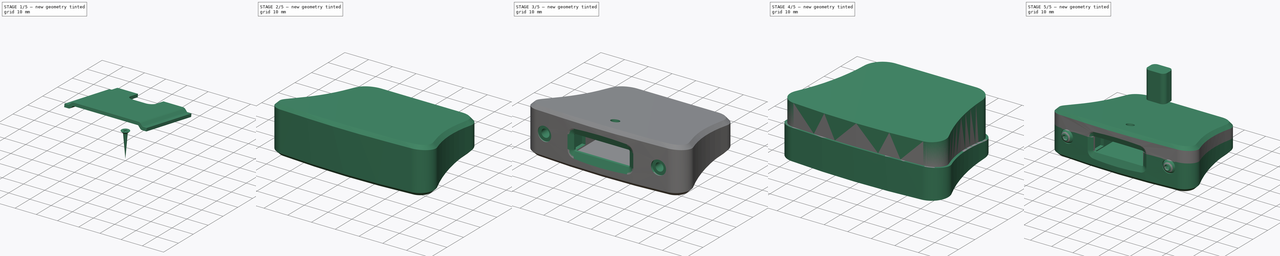
[diagram: build sequence overview — one tinted view per stage of 5, left to right]
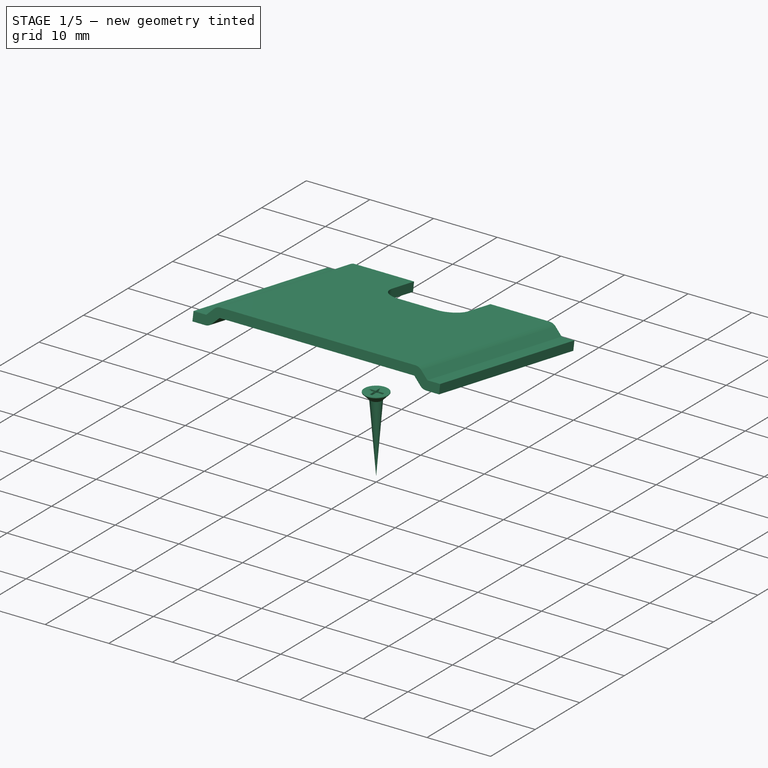
[diagram: stage 1 of 5 — iso view after this stage's code; geometry added in this stage tinted green]
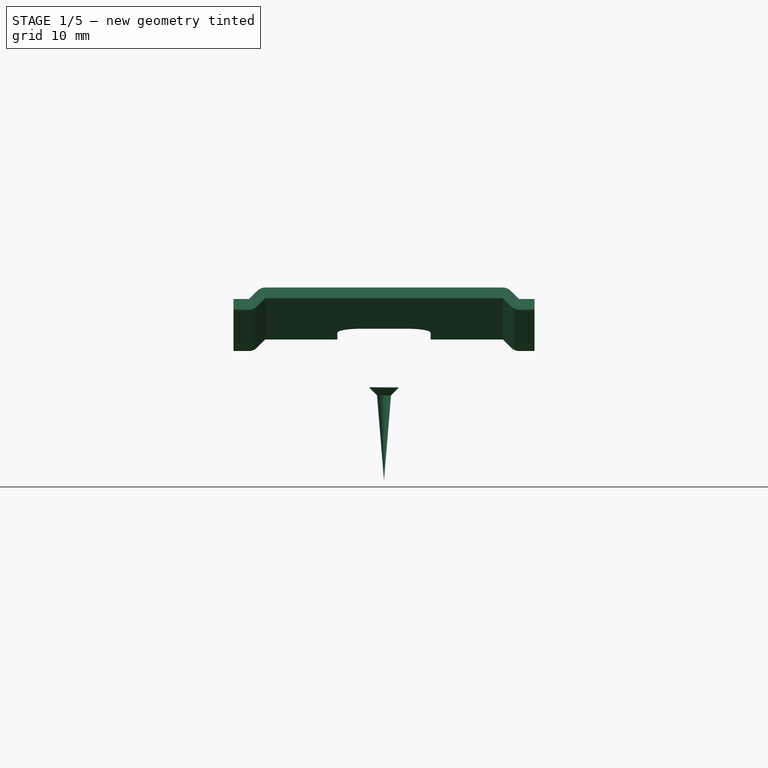
[diagram: stage 1 of 5 — front view after this stage's code; geometry added in this stage tinted green]
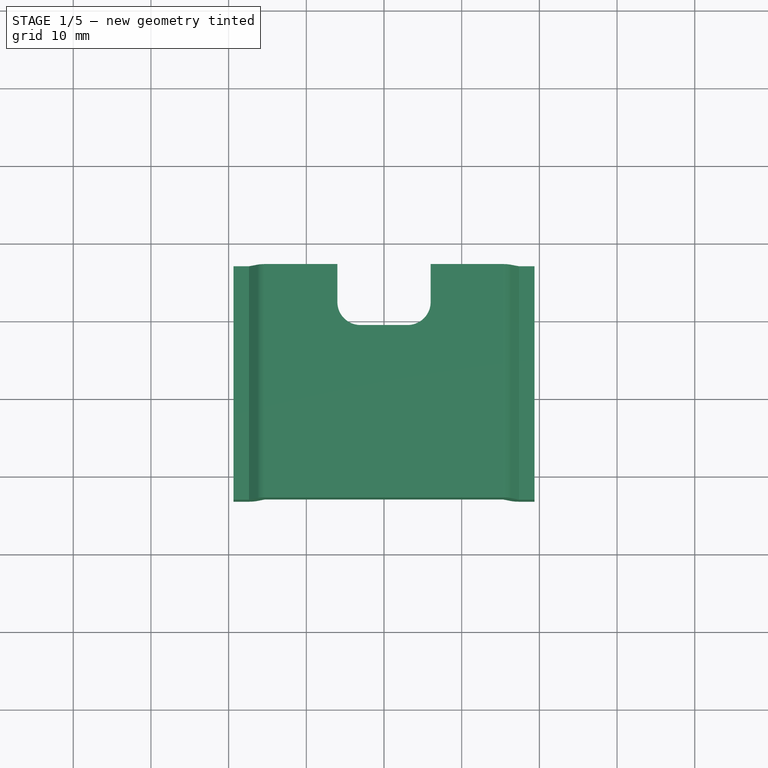
[diagram: stage 1 of 5 — top view after this stage's code; geometry added in this stage tinted green]
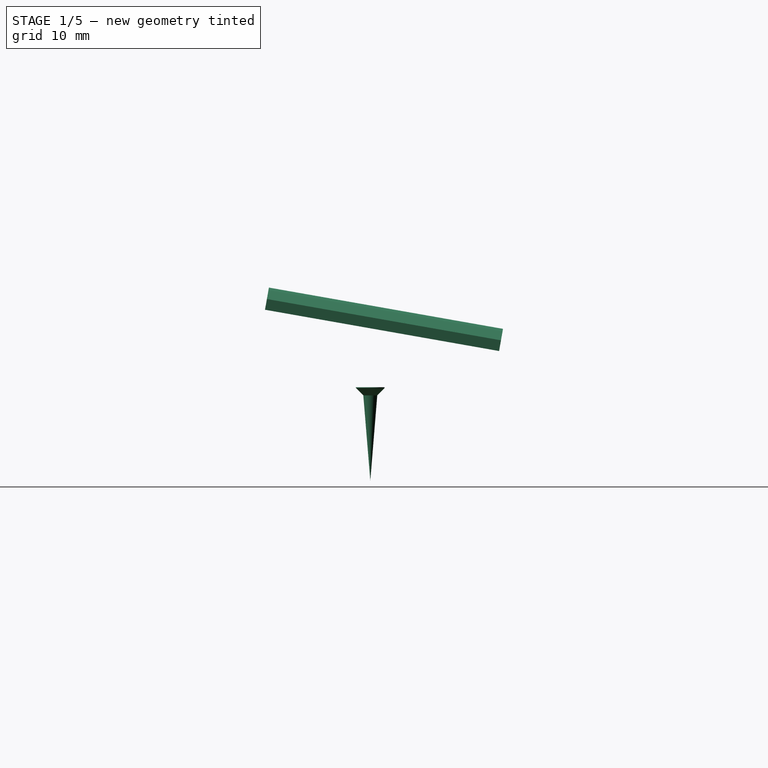
[diagram: stage 1 of 5 — right view after this stage's code; geometry added in this stage tinted green]
FCSTD DOCUMENT  (FreeCAD 0.20R29177 +426 (Git))
Label: NightLight V2
License: All rights reserved
LicenseURL: http://en.wikipedia.org/wiki/All_rights_reserved
objects: Sketcher::SketchObject×73, PartDesign::SubShapeBinder×39, PartDesign::Pocket×20, Part::Feature×19, PartDesign::Pad×14, PartDesign::Body×13, PartDesign::Plane×9, PartDesign::Mirrored×6, Part::FeaturePython×6, PartDesign::Revolution×6, PartDesign::Groove×5, PartDesign::PolarPattern×4, PartDesign::LinearPattern×3, PartDesign::MultiTransform×2, PartDesign::SubtractivePipe×2, PartDesign::AdditiveLoft×2, PartDesign::Fillet×2, Part::MultiCommon×2, App::Part×1, Part::Compound×1, +3 more types
note: 285 computed .brp shape members not serialized (recipe doc carries the construction recipe); baked Part::Feature solids carry a one-line shape summary decoded from their .brp

FEATURE [PartDesign::Body] Body  label="USB Connector"
  Group = -> [Sketch,Pad]
  Origin = -> Origin
  Placement = pos=(0,1e-15,8) rot=(-1,0,0;1.5708rad)
  Tip = -> Pad
FEATURE [Part::Feature] Part__Feature001  label="0.91in oled Module - Board"
  shape: bbox 37.96 x 12.13 x 1.238 mm, 661 faces (baked)
FEATURE [Part::Feature] Part__Feature002  label="0.91in OLED - Folded Flush - Without Glass"
  Placement = pos=(-1.5436,0.800028,1.28143) rot=(0,0,1;0rad)
  shape: bbox 34.09 x 11.52 x 0.6383 mm, 428 faces, 2 solids (baked)
FEATURE [Part::Feature] Part__Feature003  label="0603 Capacitor"
  Placement = pos=(-3.29935,-3.63302,0.00254) rot=(1,0,0;3.14159rad)
  shape: bbox 1.6 x 0.8382 x 0.8382 mm, 24 faces (baked)
FEATURE [Part::Feature] Part__Feature004  label="0603 Capacitor001"
  Placement = pos=(3.36334,-1.59229,0.00254) rot=(1,0,0;3.14159rad)
  shape: bbox 1.6 x 0.8382 x 0.8382 mm, 24 faces (baked)
FEATURE [Part::Feature] Part__Feature005  label="0603 Capacitor002"
  Placement = pos=(-10.9127,2.5742,0.00254) rot=(1,0,0;3.14159rad)
  shape: bbox 1.6 x 0.8382 x 0.8382 mm, 24 faces (baked)
FEATURE [Part::Feature] Part__Feature006  label="0603 Capacitor003"
  Placement = pos=(3.36031,-2.89609,0.00254) rot=(1,0,0;3.14159rad)
  shape: bbox 1.6 x 0.8382 x 0.8382 mm, 24 faces (baked)
FEATURE [Part::Feature] Part__Feature007  label="0603 Capacitor004"
  Placement = pos=(3.40009,-4.19989,0.00254) rot=(1,0,0;3.14159rad)
  shape: bbox 1.6 x 0.8382 x 0.8382 mm, 24 faces (baked)
FEATURE [Part::Feature] Part__Feature008  label="0603 Capacitor005"
  Placement = pos=(3.32725,-0.316834,0.00254) rot=(1,0,0;3.14159rad)
  shape: bbox 1.6 x 0.8382 x 0.8382 mm, 24 faces (baked)
FEATURE [Part::Feature] Part__Feature009  label="0603 Capacitor006"
  Placement = pos=(3.46406,4.7926,0.00254) rot=(1,0,0;3.14159rad)
  shape: bbox 1.6 x 0.8382 x 0.8382 mm, 24 faces (baked)
FEATURE [Part::Feature] Part__Feature010  label="0603 Capacitor007"
  Placement = pos=(3.43442,3.49889,0.00254) rot=(1,0,0;3.14159rad)
  shape: bbox 1.6 x 0.8382 x 0.8382 mm, 24 faces (baked)
FEATURE [Part::Feature] Part__Feature011  label="0603 Capacitor008"
  Placement = pos=(3.51513,2.10169,0.00254) rot=(1,0,0;3.14159rad)
  shape: bbox 1.6 x 0.8382 x 0.8382 mm, 24 faces (baked)
FEATURE [Part::Feature] Part__Feature012  label="0603 Resistor"
  Placement = pos=(-3.22645,0.761404,0.00254) rot=(1,0,0;3.14159rad)
  shape: bbox 1.617 x 0.8669 x 0.4669 mm, 38 faces (baked)
FEATURE [Part::Feature] Part__Feature013  label="0603 Resistor001"
  Placement = pos=(-3.1983,-0.894545,0.00254) rot=(1,0,0;3.14159rad)
  shape: bbox 1.617 x 0.8669 x 0.4669 mm, 38 faces (baked)
FEATURE [Part::Feature] Part__Feature014  label="0603 Resistor002"
  Placement = pos=(-3.2495,2.5465,0.00254) rot=(1,0,0;3.14159rad)
  shape: bbox 1.617 x 0.8669 x 0.4669 mm, 38 faces (baked)
FEATURE [Part::Feature] Part__Feature015  label="0603 Resistor003"
  Placement = pos=(3.43781,0.8856,0.00254) rot=(1,0,0;3.14159rad)
  shape: bbox 1.617 x 0.8669 x 0.4669 mm, 38 faces (baked)
FEATURE [Part::Feature] Part__Feature016  label="0603 Resistor004"
  Placement = pos=(-9.19255,-3.94572,0.00254) rot=(0,1,0;3.14159rad)
  shape: bbox 1.617 x 0.8669 x 0.4669 mm, 38 faces (baked)
FEATURE [Part::Feature] Part__Feature017  label="SOT23-3"
  Placement = pos=(-10.2514,-0.760044,0.105) rot=(1,0,0;3.14159rad)
  shape: bbox 2.844 x 3.009 x 1.193 mm, 52 faces (baked)
FEATURE [Part::Feature] Part__Feature018  label="Diode (SOD-323)"
  Placement = pos=(-2.51121,-2.67602,-0.5715) rot=(1,0,0;3.14159rad)
  shape: bbox 2.845 x 1.499 x 1.144 mm, 45 faces (baked)
FEATURE [App::Part] __91in_OLED_Module___Without_Glass  label="0.91in OLED Module"
  Group = -> [Part__Feature001,Part__Feature002,Part__Feature003,Part__Feature004,Part__Feature005,Part__Feature006,Part__Feature007,Part__Feature008,Part__Feature009,Part__Feature010,Part__Feature011,Part__Feature012,Part__Feature013,Part__Feature014,Part__Feature015,Part__Feature016,Part__Feature017,Part__Feature018]
  Origin = -> Origin001
  Placement = pos=(1.54,-22,9.2) rot=(1,0,0;1.5708rad)
FEATURE [Sketcher::SketchObject] Sketch001  label="p board"
  FullyConstrained = false
  MapMode = 5
  Support = -> [XY_Plane002]
  sketch-geometry (12):
    g0: LineSegment StartX=-15.3 StartY=15.3 StartZ=0 EndX=15.3 EndY=15.3 EndZ=0
    g1: LineSegment StartX=15.3 StartY=15.3 StartZ=0 EndX=15.3 EndY=-15.3 EndZ=0
    g2: LineSegment StartX=15.3 StartY=-15.3 StartZ=0 EndX=-15.3 EndY=-15.3 EndZ=0
    g3: LineSegment StartX=-15.3 StartY=-15.3 StartZ=0 EndX=-15.3 EndY=15.3 EndZ=0
    g4: LineSegment StartX=-7.9 StartY=7.9 StartZ=0 EndX=7.9 EndY=7.9 EndZ=0
    g5: LineSegment StartX=7.9 StartY=7.9 StartZ=0 EndX=7.9 EndY=-7.9 EndZ=0
    g6: LineSegment StartX=7.9 StartY=-7.9 StartZ=0 EndX=-7.9 EndY=-7.9 EndZ=0
    g7: LineSegment StartX=-7.9 StartY=-7.9 StartZ=0 EndX=-7.9 EndY=7.9 EndZ=0
    g8: Circle CenterX=-7.9 CenterY=7.9 CenterZ=0 NormalX=0 NormalY=0 NormalZ=1 AngleXU=0 Radius=1.6
    g9: Circle CenterX=7.9 CenterY=7.9 CenterZ=0 NormalX=0 NormalY=0 NormalZ=1 AngleXU=0 Radius=1.6
    g10: Circle CenterX=7.9 CenterY=-7.9 CenterZ=0 NormalX=0 NormalY=0 NormalZ=1 AngleXU=0 Radius=1.6
    g11: Circle CenterX=-7.9 CenterY=-7.9 CenterZ=0 NormalX=0 NormalY=0 NormalZ=1 AngleXU=0 Radius=1.6
  constraints (28):
    c: Coincident(g0,g1)
    c: Coincident(g1,g2)
    c: Coincident(g2,g3)
    c: Coincident(g3,g0)
    c: Horizontal(g2)
    c: Vertical(g3)
    c: Symmetric(g1,g0,g-1)
    c: Symmetric(g0,g0,g-2)
    c: Coincident(g4,g5)
    c: Coincident(g5,g6)
    c: Coincident(g6,g7)
    c: Coincident(g7,g4)
    c: Horizontal(g6)
    c: Vertical(g7)
    c: Symmetric(g5,g4,g-1)
    c: Symmetric(g4,g4,g-2)
    c: Coincident(g8,g4)
    c: Coincident(g9,g4)
    c: Coincident(g10,g5)
    c: Coincident(g11,g6)
    c: Equal(g10,g11)
    c: Equal(g11,g8)
    c: Equal(g8,g9)
    c: Radius(g9) = 1.6
    c: DistanceX(g4,g4) = 15.8
    c: Equal(g5,g4)
    c: Equal(g1,g0)
    c: DistanceX(g0,g0) = 30.6
FEATURE [PartDesign::Pad] Pad001  label="P Board"
  AllowMultiFace = false
  Direction = (1,1,1)
  Length = 1.6
  Length2 = 100
  Profile = -> Sketch001
  Type = 0
FEATURE [PartDesign::Body] Body001  label="PCB"
  Group = -> [Sketch001,Pad001]
  Origin = -> Origin002
  Tip = -> Pad001
FEATURE [Sketcher::SketchObject] Sketch004  label="e common pad"
  AttachmentOffset = pos=(0,0,0.5) rot=(0,0,1;0rad)
  FullyConstrained = false
  MapMode = 5
  Placement = pos=(0,0,0.5) rot=(0,0,1;0rad)
  Support = -> [XY_Plane003]
  sketch-geometry (12):
    g0: LineSegment StartX=-14 StartY=14 StartZ=0 EndX=14 EndY=14 EndZ=0
    g1: LineSegment StartX=14 StartY=14 StartZ=0 EndX=14 EndY=-14 EndZ=0
    g2: LineSegment StartX=14 StartY=-14 StartZ=0 EndX=-14 EndY=-14 EndZ=0
    g3: LineSegment StartX=-14 StartY=-14 StartZ=0 EndX=-14 EndY=14 EndZ=0
    g4: LineSegment StartX=-7.9 StartY=7.9 StartZ=0 EndX=7.9 EndY=7.9 EndZ=0
    g5: LineSegment StartX=7.9 StartY=7.9 StartZ=0 EndX=7.9 EndY=-7.9 EndZ=0
    g6: LineSegment StartX=7.9 StartY=-7.9 StartZ=0 EndX=-7.9 EndY=-7.9 EndZ=0
    g7: LineSegment StartX=-7.9 StartY=-7.9 StartZ=0 EndX=-7.9 EndY=7.9 EndZ=0
    g8: Circle CenterX=-7.9 CenterY=7.9 CenterZ=0 NormalX=0 NormalY=0 NormalZ=1 AngleXU=0 Radius=2
    g9: Circle CenterX=7.9 CenterY=7.9 CenterZ=0 NormalX=0 NormalY=0 NormalZ=1 AngleXU=0 Radius=2
    g10: Circle CenterX=7.9 CenterY=-7.9 CenterZ=0 NormalX=0 NormalY=0 NormalZ=1 AngleXU=0 Radius=2
    g11: Circle CenterX=-7.9 CenterY=-7.9 CenterZ=0 NormalX=0 NormalY=0 NormalZ=1 AngleXU=0 Radius=2
  constraints (28):
    c: Coincident(g0,g1)
    c: Coincident(g1,g2)
    c: Coincident(g2,g3)
    c: Coincident(g3,g0)
    c: Horizontal(g2)
    c: Vertical(g3)
    c: Symmetric(g1,g0,g-1)
    c: Symmetric(g0,g0,g-2)
    c: Coincident(g4,g5)
    c: Coincident(g5,g6)
    c: Coincident(g6,g7)
    c: Coincident(g7,g4)
    c: Horizontal(g6)
    c: Vertical(g7)
    c: Symmetric(g5,g4,g-1)
    c: Symmetric(g4,g4,g-2)
    c: Coincident(g8,g4)
    c: Coincident(g9,g4)
    c: Coincident(g10,g5)
    c: Coincident(g11,g6)
    c: Equal(g10,g11)
    c: Equal(g11,g8)
    c: Equal(g8,g9)
    c: Radius(g9) = 2
    c: DistanceX(g4,g4) = 15.8
    c: Equal(g5,g4)
    c: Equal(g1,g0)
    c: DistanceX(g0,g0) = 28
FEATURE [Sketcher::SketchObject] Sketch005  label="e soldering pad"
  AttachmentOffset = pos=(0,0,-0.2) rot=(0,0,1;0rad)
  FullyConstrained = false
  MapMode = 5
  Placement = pos=(0,0,-0.2) rot=(0,0,1;0rad)
  Support = -> [XY_Plane003]
  sketch-geometry (4):
    g0: LineSegment StartX=-14.6 StartY=-2.9 StartZ=0 EndX=-11.1 EndY=-2.9 EndZ=0
    g1: LineSegment StartX=-11.1 StartY=-2.9 StartZ=0 EndX=-11.1 EndY=-4.7 EndZ=0
    g2: LineSegment StartX=-11.1 StartY=-4.7 StartZ=0 EndX=-14.6 EndY=-4.7 EndZ=0
    g3: LineSegment StartX=-14.6 StartY=-4.7 StartZ=0 EndX=-14.6 EndY=-2.9 EndZ=0
  constraints (12):
    c: Coincident(g0,g1)
    c: Coincident(g1,g2)
    c: Coincident(g2,g3)
    c: Coincident(g3,g0)
    c: Horizontal(g0)
    c: Horizontal(g2)
    c: Vertical(g1)
    c: Vertical(g3)
    c: DistanceX(g0,g0) = 3.5
    c: DistanceY(g3,g3) = 1.8
    c: DistanceX(g0,g-1) = 14.6
    c: DistanceY(g2,g-1) = 4.7
FEATURE [PartDesign::LinearPattern] LinearPattern003
  Direction = -> Y_Axis003
  Length = 7.6
  Occurrences = 4
FEATURE [PartDesign::Pad] Pad004  label="E Common pad"
  AllowMultiFace = false
  Direction = (1,1,1)
  Length = 0.2
  Length2 = 100
  Profile = -> Sketch004
  Type = 0
FEATURE [PartDesign::Pad] Pad005  label="E First soldering pad"
  AllowMultiFace = false
  BaseFeature = -> Pad004
  Direction = (1,1,1)
  Length = 0.8
  Length2 = 100
  Profile = -> Sketch005
  Type = 0
FEATURE [PartDesign::Mirrored] Mirrored001
  MirrorPlane = -> YZ_Plane003
FEATURE [PartDesign::MultiTransform] MultiTransform003  label="E Other soldering pads"
  BaseFeature = -> Pad005
  Originals = -> [Pad005]
  Transformations = -> [LinearPattern003,Mirrored001]
FEATURE [PartDesign::Body] Body002  label="Electrical"
  Group = -> [Sketch004,Pad004,Sketch005,Pad005,MultiTransform003,LinearPattern003,Mirrored001]
  Origin = -> Origin003
  Tip = -> MultiTransform003
FEATURE [PartDesign::LinearPattern] LinearPattern007
  Direction = -> Y_Axis004
  Length = 23.4
  Occurrences = 4
FEATURE [PartDesign::LinearPattern] LinearPattern008
  Direction = -> X_Axis004
  Length = 23.4
  Occurrences = 4
FEATURE [Sketcher::SketchObject] Sketch008  label="l common plate"
  AttachmentOffset = pos=(0,0,0.5) rot=(0,0,1;0rad)
  FullyConstrained = false
  MapMode = 5
  Placement = pos=(0,0,0.5) rot=(0,0,1;0rad)
  Support = -> [XY_Plane004]
  sketch-geometry (12):
    g0: LineSegment StartX=-12.5 StartY=12.5 StartZ=0 EndX=12.5 EndY=12.5 EndZ=0
    g1: LineSegment StartX=12.5 StartY=12.5 StartZ=0 EndX=12.5 EndY=-12.5 EndZ=0
    g2: LineSegment StartX=12.5 StartY=-12.5 StartZ=0 EndX=-12.5 EndY=-12.5 EndZ=0
    g3: LineSegment StartX=-12.5 StartY=-12.5 StartZ=0 EndX=-12.5 EndY=12.5 EndZ=0
    g4: LineSegment StartX=-7.9 StartY=7.9 StartZ=0 EndX=7.9 EndY=7.9 EndZ=0
    g5: LineSegment StartX=7.9 StartY=7.9 StartZ=0 EndX=7.9 EndY=-7.9 EndZ=0
    g6: LineSegment StartX=7.9 StartY=-7.9 StartZ=0 EndX=-7.9 EndY=-7.9 EndZ=0
    g7: LineSegment StartX=-7.9 StartY=-7.9 StartZ=0 EndX=-7.9 EndY=7.9 EndZ=0
    g8: Circle CenterX=-7.9 CenterY=7.9 CenterZ=0 NormalX=0 NormalY=0 NormalZ=1 AngleXU=0 Radius=2
    g9: Circle CenterX=7.9 CenterY=7.9 CenterZ=0 NormalX=0 NormalY=0 NormalZ=1 AngleXU=0 Radius=2
    g10: Circle CenterX=7.9 CenterY=-7.9 CenterZ=0 NormalX=0 NormalY=0 NormalZ=1 AngleXU=0 Radius=2
    g11: Circle CenterX=-7.9 CenterY=-7.9 CenterZ=0 NormalX=0 NormalY=0 NormalZ=1 AngleXU=0 Radius=2
  constraints (28):
    c: Coincident(g0,g1)
    c: Coincident(g1,g2)
    c: Coincident(g2,g3)
    c: Coincident(g3,g0)
    c: Horizontal(g2)
    c: Vertical(g3)
    c: Symmetric(g1,g0,g-1)
    c: Symmetric(g0,g0,g-2)
    c: Coincident(g4,g5)
    c: Coincident(g5,g6)
    c: Coincident(g6,g7)
    c: Coincident(g7,g4)
    c: Horizontal(g6)
    c: Vertical(g7)
    c: Symmetric(g5,g4,g-1)
    c: Symmetric(g4,g4,g-2)
    c: Coincident(g8,g4)
    c: Coincident(g9,g4)
    c: Coincident(g10,g5)
    c: Coincident(g11,g6)
    c: Equal(g10,g11)
    c: Equal(g11,g8)
    c: Equal(g8,g9)
    c: Radius(g9) = 2
    c: DistanceX(g4,g4) = 15.8
    c: Equal(g5,g4)
    c: Equal(g1,g0)
    c: DistanceX(g0,g0) = 25
FEATURE [PartDesign::Pad] Pad007  label="L Common plate"
  AllowMultiFace = false
  Direction = (1,1,1)
  Length = 0.5
  Length2 = 100
  Profile = -> Sketch008
  Type = 0
FEATURE [Sketcher::SketchObject] Sketch009  label="l first LED"
  AttachmentOffset = pos=(0,0,3.2) rot=(0,0,1;0rad)
  FullyConstrained = false
  MapMode = 5
  Placement = pos=(0,0,3.2) rot=(0,0,1;0rad)
  Support = -> [XY_Plane002]
  sketch-geometry (6):
    g0: LineSegment StartX=-14.2 StartY=-9.2 StartZ=0 EndX=-9.2 EndY=-9.2 EndZ=0
    g1: LineSegment StartX=-9.2 StartY=-9.2 StartZ=0 EndX=-9.2 EndY=-14.2 EndZ=0
    g2: LineSegment StartX=-9.2 StartY=-14.2 StartZ=0 EndX=-14.2 EndY=-14.2 EndZ=0
    g3: LineSegment StartX=-14.2 StartY=-14.2 StartZ=0 EndX=-14.2 EndY=-9.2 EndZ=0
    g4: LineSegment StartX=-9.2 StartY=-14.2 StartZ=0 EndX=0 EndY=-14.2 EndZ=0
    g5: LineSegment StartX=-14.2 StartY=-9.2 StartZ=0 EndX=-14.2 EndY=0 EndZ=0
  constraints (18):
    c: Coincident(g0,g1)
    c: Coincident(g1,g2)
    c: Coincident(g2,g3)
    c: Coincident(g3,g0)
    c: Horizontal(g0)
    c: Horizontal(g2)
    c: Vertical(g1)
    c: Vertical(g3)
    c: Equal(g1,g0)
    c: DistanceX(g0,g0) = 5
    c: DistanceX(g2,g-1) = 14.2
    c: Coincident(g4,g1)
    c: Horizontal(g4)
    c: Coincident(g5,g0)
    c: Vertical(g5)
    c: Equal(g5,g4)
    c: PointOnObject(g5,g-1)
    c: PointOnObject(g4,g-2)
FEATURE [PartDesign::Pad] Pad008  label="L First LED"
  AllowMultiFace = false
  BaseFeature = -> Pad007
  Direction = (1,1,1)
  Length = 2.6
  Length2 = 100
  Profile = -> Sketch009
  Reversed = true
  Type = 0
FEATURE [PartDesign::MultiTransform] MultiTransform004  label="L Other leds"
  BaseFeature = -> Pad008
  Originals = -> [Pad008]
  Transformations = -> [LinearPattern008,LinearPattern007]
FEATURE [PartDesign::Body] Body003  label="LEDs"
  Group = -> [Sketch008,Pad007,Sketch009,Pad008,MultiTransform004,LinearPattern008,LinearPattern007]
  Origin = -> Origin004
  Tip = -> MultiTransform004
FEATURE [Part::Compound] Compound  label="WS2812B 4x4"
  Links = -> [Body001,Body002,Body003]
  Placement = pos=(0,2.01519,10.1736) rot=(-1,0,0;0.174533rad)
FEATURE [Part::FeaturePython] Nut  label="M3-Nut"  # Fasteners workbench fastener (typed FeaturePython)
  Placement = pos=(-24,-20,10) rot=(0.57735,0.57735,0.57735;4.18879rad)
  diameter = 4
  invert = false
  leftHanded = false
  matchOuter = false
  offset = 0
  thread = false
  type = 22
FEATURE [Part::FeaturePython] Nut001  label="M3-Nut001"  # Fasteners workbench fastener (typed FeaturePython)
  Placement = pos=(24,-20,10) rot=(0.57735,0.57735,0.57735;4.18879rad)
  diameter = 4
  invert = false
  leftHanded = false
  matchOuter = false
  offset = 0
  thread = false
  type = 22
FEATURE [Sketcher::SketchObject] Sketch026
  FullyConstrained = false
  MapMode = 5
  Placement = pos=(0,0,0) rot=(1,0,0;1.5708rad)
  Support = -> [XZ_Plane010]
  sketch-geometry (5):
    g0: LineSegment StartX=0 StartY=0 StartZ=0 EndX=0 EndY=-12 EndZ=0
    g1: LineSegment StartX=0 StartY=-12 StartZ=0 EndX=0.9 EndY=-1.05 EndZ=0
    g2: LineSegment StartX=0.9 StartY=-1.05 StartZ=0 EndX=1.85 EndY=-0.1 EndZ=0
    g3: LineSegment StartX=1.85 StartY=0 StartZ=0 EndX=0 EndY=0 EndZ=0
    g4: LineSegment StartX=1.85 StartY=-0.1 StartZ=0 EndX=1.85 EndY=0 EndZ=0
  constraints (14):
    c: Coincident(g-1,g0)
    c: Vertical(g0)
    c: Coincident(g0,g1)
    c: Coincident(g1,g2)
    c: Coincident(g3,g0)
    c: DistanceY(g0,g0) = 12
    c: Angle(g3,g2) = 0.785398
    c: DistanceX(g0,g1) = 0.9
    c: Horizontal(g3)
    c: Coincident(g4,g2)
    c: Vertical(g4)
    c: Coincident(g3,g4)
    c: DistanceX(g3) = 1.85
    c: DistanceY(g4,g4) = 0.1
FEATURE [PartDesign::Revolution] Revolution003
  AllowMultiFace = false
  Angle = 360
  Axis = (-3e-16,3e-16,1)
  Base = (0,0,0)
  Placement = pos=(0,0,0) rot=(1,0,0;1.5708rad)
  Profile = -> Sketch026
  ReferenceAxis = -> Z_Axis010
  Reversed = true
FEATURE [Sketcher::SketchObject] Sketch027
  FullyConstrained = false
  MapMode = 5
  Placement = pos=(0,0,0) rot=(1,0,0;1.5708rad)
  Support = -> [XZ_Plane010]
  sketch-geometry (3):
    g0: LineSegment StartX=-1.15 StartY=0 StartZ=0 EndX=0 EndY=-1.15 EndZ=0
    g1: LineSegment StartX=0 StartY=-1.15 StartZ=0 EndX=1.15 EndY=0 EndZ=0
    g2: LineSegment StartX=1.15 StartY=0 StartZ=0 EndX=-1.15 EndY=0 EndZ=0
  constraints (9):
    c: PointOnObject(g0,g-1)
    c: Coincident(g0,g1)
    c: PointOnObject(g1,g-1)
    c: Coincident(g1,g2)
    c: Coincident(g2,g0)
    c: PointOnObject(g0,g-2)
    c: Equal(g1,g0)
    c: Perpendicular(g0,g1)
    c: DistanceX(g2,g2) = 2.3
FEATURE [PartDesign::Pocket] Pocket006
  AllowMultiFace = false
  BaseFeature = -> Revolution003
  Direction = (1,1,1)
  Length = 0.4
  Length2 = 100
  Midplane = true
  Placement = pos=(0,0,0) rot=(1,0,0;1.5708rad)
  Profile = -> Sketch027
  Type = 0
FEATURE [PartDesign::PolarPattern] PolarPattern003
  Angle = 90
  Axis = -> Z_Axis010
  BaseFeature = -> Pocket006
  Occurrences = 2
  Originals = -> [Pocket006]
  Placement = pos=(0,0,0) rot=(1,0,0;1.5708rad)
FEATURE [Sketcher::SketchObject] Sketch050  label="hs led grid cavity"
  ExternalGeometry = -> [Binder021]
  FullyConstrained = true
  MapMode = 5
  Placement = pos=(0,0,0) rot=(0.57735,0.57735,0.57735;2.0944rad)
  Support = -> [YZ_Plane006]
  sketch-geometry (4):
    g0: LineSegment StartX=-15.1889 StartY=6 StartZ=0 EndX=17.3048 EndY=6 EndZ=0
    g1: LineSegment StartX=17.3048 StartY=6 StartZ=0 EndX=18.188 EndY=11.0089 EndZ=0
    g2: LineSegment StartX=18.188 StartY=11.0089 StartZ=0 EndX=-13.3258 EndY=16.5657 EndZ=0
    g3: LineSegment StartX=-13.3258 StartY=16.5657 StartZ=0 EndX=-15.1889 EndY=6 EndZ=0
  constraints (12):
    c: Coincident(g0,g1)
    c: Coincident(g1,g2)
    c: Coincident(g2,g3)
    c: Coincident(g3,g0)
    c: Horizontal(g0)
    c: Parallel(g2,g-3)
    c: Distance(g2,g-3) = 1
    c: Perpendicular(g2,g3)
    c: Perpendicular(g2,g1)
    c: Distance(g-1,g1) = 16
    c: Distance(g-1,g3) = 16
    c: DistanceY(g0) = 6
FEATURE [Sketcher::SketchObject] Sketch051  label="hs cavity near OLED"
  AttachmentOffset = pos=(0,0,3) rot=(0,0,1;0rad)
  FullyConstrained = true
  MapMode = 5
  Placement = pos=(0,0,3) rot=(0,0,1;0rad)
  Support = -> [XY_Plane006]
  sketch-geometry (10):
    g0: LineSegment StartX=-21 StartY=-19 StartZ=0 EndX=-19 EndY=-19 EndZ=0
    g1: LineSegment StartX=21 StartY=-19 StartZ=0 EndX=21 EndY=-20.5 EndZ=0
    g2: LineSegment StartX=21 StartY=-20.5 StartZ=0 EndX=-21 EndY=-20.5 EndZ=0
    g3: LineSegment StartX=-21 StartY=-20.5 StartZ=0 EndX=-21 EndY=-19 EndZ=0
    g4: LineSegment StartX=-17.5 StartY=-12 StartZ=0 EndX=17.5 EndY=-12 EndZ=0
    g5: LineSegment StartX=17.5 StartY=-12 StartZ=0 EndX=17.5 EndY=-17.5 EndZ=0
    g6: LineSegment StartX=-17.5 StartY=-17.5 StartZ=0 EndX=-17.5 EndY=-12 EndZ=0
    g7: LineSegment StartX=19 StartY=-19 StartZ=0 EndX=21 EndY=-19 EndZ=0
    g8: ArcOfCircle CenterX=19 CenterY=-17.5 CenterZ=0 NormalX=0 NormalY=0 NormalZ=1 AngleXU=0 Radius=1.5 StartAngle=3.14159 EndAngle=4.71239
    g9: ArcOfCircle CenterX=-19 CenterY=-17.5 CenterZ=0 NormalX=0 NormalY=0 NormalZ=1 AngleXU=0 Radius=1.5 StartAngle=4.71239 EndAngle=6.28319
  constraints (26):
    c: Coincident(g7,g1)
    c: Coincident(g1,g2)
    c: Coincident(g2,g3)
    c: Coincident(g3,g0)
    c: Horizontal(g0)
    c: Vertical(g1)
    c: Vertical(g3)
    c: DistanceY(g1,g-1) = 20.5
    c: Coincident(g4,g5)
    c: Coincident(g6,g4)
    c: Vertical(g5)
    c: Vertical(g6)
    c: Symmetric(g4,g4,g-2)
    c: Tangent(g7,g8) = -1.5708
    c: Tangent(g5,g8) = -1.5708
    c: Tangent(g0,g9) = -1.5708
    c: Tangent(g6,g9) = -1.5708
    c: DistanceX(g2,g2) = 42
    c: DistanceX(g0,g0) = 2
    c: Symmetric(g2,g1,g-2)
    c: Horizontal(g7)
    c: DistanceY(g1,g1) = 1.5
    c: DistanceX(g4,g4) = 35
    c: DistanceY(g4,g-1) = 12
    c: Equal(g9,g8)
    c: PointOnObject(g0,g7)
FEATURE [PartDesign::SubShapeBinder] Binder022  label="sk ref led grid holder"
  BindCopyOnChange = 0
  BindMode = 0
  ClaimChildren = false
  Context = -> Body004 [Binder022.]
  Fuse = false
  MakeFace = true
  OffsetFill = false
  OffsetIntersection = false
  OffsetJoinType = 0
  OffsetOpenResult = false
  PartialLoad = false
  Relative = true
  Support = -> [Compound[Edge4,Edge3,Edge2,Edge1]]
  _Version = 2
FEATURE [PartDesign::Plane] DatumPlane004  label="sk ref led grid"
  Length = 60.7632
  MapMode = 13
  Placement = pos=(5.1,17.1754,8.04206) rot=(1,0,0;1.39626rad)
  ResizeMode = 0
  Support = -> [Binder022]
  Width = 68.686
FEATURE [Sketcher::SketchObject] Sketch054  label="sk led grid holder"
  ExternalGeometry = -> [Binder022]
  FullyConstrained = true
  MapMode = 5
  Placement = pos=(5.1,17.1754,8.04206) rot=(1,0,0;1.39626rad)
  Support = -> [DatumPlane004]
  sketch-geometry (17):
    g0: LineSegment StartX=10.2 StartY=-0.533333 StartZ=0 EndX=-20.4 EndY=-0.533333 EndZ=0
    g1: LineSegment StartX=-20.4 StartY=-1.93333 StartZ=0 EndX=10.2 EndY=-1.93333 EndZ=0
    g2: LineSegment StartX=-5.1 StartY=-1.93333 StartZ=0 EndX=-5.1 EndY=-0.391912 EndZ=0
    g3: LineSegment StartX=10.2 StartY=-1.93333 StartZ=0 EndX=11.2899 EndY=-3.02328 EndZ=0
    g4: LineSegment StartX=12.2799 StartY=-3.43333 StartZ=0 EndX=14.2799 EndY=-3.43333 EndZ=0
    g5: LineSegment StartX=14.2799 StartY=-3.43333 StartZ=0 EndX=14.2799 EndY=-2.03333 EndZ=0
    g6: LineSegment StartX=14.2799 StartY=-2.03333 StartZ=0 EndX=12.2799 EndY=-2.03333 EndZ=0
    g7: LineSegment StartX=12.2799 StartY=-2.03333 StartZ=0 EndX=11.1899 EndY=-0.943384 EndZ=0
    g8: ArcOfCircle CenterX=12.2799 CenterY=-2.03333 CenterZ=0 NormalX=0 NormalY=0 NormalZ=1 AngleXU=0 Radius=1.4 StartAngle=3.92699 EndAngle=4.71239
    g9: LineSegment StartX=-20.4 StartY=-1.93333 StartZ=0 EndX=-21.4899 EndY=-3.02328 EndZ=0
    g10: LineSegment StartX=-22.4799 StartY=-3.43333 StartZ=0 EndX=-24.4799 EndY=-3.43333 EndZ=0
    g11: LineSegment StartX=-24.4799 StartY=-3.43333 StartZ=0 EndX=-24.4799 EndY=-2.03333 EndZ=0
    g12: LineSegment StartX=-24.4799 StartY=-2.03333 StartZ=0 EndX=-22.4799 EndY=-2.03333 EndZ=0
    g13: LineSegment StartX=-22.4799 StartY=-2.03333 StartZ=0 EndX=-21.3899 EndY=-0.943384 EndZ=0
    g14: ArcOfCircle CenterX=-22.4799 CenterY=-2.03333 CenterZ=0 NormalX=0 NormalY=0 NormalZ=1 AngleXU=0 Radius=1.4 StartAngle=4.71239 EndAngle=5.49779
    g15: ArcOfCircle CenterX=10.2 CenterY=-1.93333 CenterZ=0 NormalX=0 NormalY=0 NormalZ=1 AngleXU=0 Radius=1.4 StartAngle=0.785398 EndAngle=1.5708
    g16: ArcOfCircle CenterX=-20.4 CenterY=-1.93333 CenterZ=0 NormalX=0 NormalY=0 NormalZ=1 AngleXU=0 Radius=1.4 StartAngle=1.5708 EndAngle=2.35619
  constraints (39):
    c: PointOnObject(g-3,g0)
    c: PointOnObject(g2,g1)
    c: Symmetric(g-4,g-3,g2)
    c: Coincident(g3,g1)
    c: Horizontal(g4)
    c: Coincident(g4,g5)
    c: Vertical(g5)
    c: Coincident(g5,g6)
    c: Horizontal(g6)
    c: Coincident(g6,g7)
    c: Angle(g1,g3) = 2.35619
    c: Parallel(g3,g7)
    c: Tangent(g3,g8) = -1.5708
    c: Tangent(g4,g8) = -1.5708
    c: Coincident(g6,g8)
    c: DistanceX(g6,g6) = 2
    c: DistanceY(g4,g1) = 1.5
    c: Coincident(g10,g11)
    c: Coincident(g11,g12)
    c: Coincident(g12,g13)
    c: Tangent(g9,g14) = 1.5708
    c: Tangent(g10,g14) = 1.5708
    c: Coincident(g12,g14)
    c: Coincident(g1,g9)
    c: Symmetric(g1,g1,g2)
    c: Symmetric(g12,g6,g2)
    c: Symmetric(g10,g4,g2)
    c: Equal(g14,g8)
    c: Horizontal(g12)
    c: Vertical(g11)
    c: Equal(g7,g2)
    c: Tangent(g0,g15) = -1.5708
    c: Tangent(g7,g15) = -1.5708
    c: Coincident(g1,g15)
    c: Tangent(g0,g16) = -1.5708
    c: Tangent(g13,g16) = 1.5708
    c: Coincident(g1,g16)
    c: DistanceY(g5,g5) = 1.4
    c: Coincident(g0,g-4)
FEATURE [PartDesign::SubShapeBinder] Binder023  label="lh ref led grid holder"
  BindCopyOnChange = 0
  BindMode = 0
  ClaimChildren = false
  Context = -> Body010 [Binder023.]
  Fuse = false
  MakeFace = true
  OffsetFill = false
  OffsetIntersection = false
  OffsetJoinType = 0
  OffsetOpenResult = false
  PartialLoad = false
  Relative = true
  Support = -> [Body004[Sketch054.]]
  _Version = 2
FEATURE [PartDesign::Plane] DatumPlane005  label="lh pln led grid"
  Length = 60.7632
  MapMode = 13
  Placement = pos=(-5.1,17.0017,7.05725) rot=(1,0,0;1.39626rad)
  ResizeMode = 0
  Support = -> [Binder023]
  Width = 68.686
FEATURE [Sketcher::SketchObject] Sketch056  label="lh cutout ESP USB"
  ExternalGeometry = -> [Binder023]
  FullyConstrained = true
  MapMode = 5
  Placement = pos=(16.3566,17.0749,7.4724) rot=(0,0.087156,0.996195;3.14159rad)
  sketch-geometry (7):
    g0: LineSegment StartX=19.3566 StartY=8 StartZ=0 EndX=13.3566 EndY=8 EndZ=0
    g1: LineSegment StartX=10.3566 StartY=5 StartZ=0 EndX=10.3566 EndY=1.07e-14 EndZ=0
    g2: LineSegment StartX=10.3566 StartY=1.07e-14 StartZ=0 EndX=22.3566 EndY=1.07e-14 EndZ=0
    g3: LineSegment StartX=22.3566 StartY=1.07e-14 StartZ=0 EndX=22.3566 EndY=5 EndZ=0
    g4: ArcOfCircle CenterX=19.3566 CenterY=5 CenterZ=0 NormalX=0 NormalY=0 NormalZ=1 AngleXU=0 Radius=3 StartAngle=0 EndAngle=1.5708
    g5: ArcOfCircle CenterX=13.3566 CenterY=5 CenterZ=0 NormalX=0 NormalY=0 NormalZ=1 AngleXU=0 Radius=3 StartAngle=1.5708 EndAngle=3.14159
    g6: LineSegment StartX=16.3566 StartY=8 StartZ=0 EndX=16.3566 EndY=0 EndZ=0
  constraints (18):
    c: Coincident(g1,g2)
    c: Coincident(g2,g3)
    c: Horizontal(g0)
    c: Horizontal(g2)
    c: Vertical(g1)
    c: Vertical(g3)
    c: Tangent(g3,g4) = -1.5708
    c: Tangent(g0,g4) = -1.5708
    c: Tangent(g0,g5) = -1.5708
    c: Tangent(g1,g5) = -1.5708
    c: PointOnObject(g6,g0)
    c: PointOnObject(g6,g-1)
    c: Symmetric(g5,g4,g6)
    c: DistanceX(g1,g3) = 12
    c: DistanceY(g2,g0) = 8
    c: Radius(g4) = 3
    c: Symmetric(g-4,g-3,g6)
    c: PointOnObject(g-4,g2)
FEATURE [Sketcher::SketchObject] Sketch058  label="lh base"
  ExternalGeometry = -> [Binder023]
  FullyConstrained = true
  MapMode = 5
  Placement = pos=(-5.1,17.0017,7.05725) rot=(1,0,0;1.39626rad)
  Support = -> [DatumPlane005]
  sketch-geometry (16):
    g0: LineSegment StartX=-14.2799 StartY=-2.43333 StartZ=0 EndX=-12.2799 EndY=-2.43333 EndZ=0
    g1: LineSegment StartX=-11.2899 StartY=-2.02328 StartZ=0 EndX=-10.2 EndY=-0.933333 EndZ=0
    g2: LineSegment StartX=-10.2 StartY=-0.933333 StartZ=0 EndX=20.4 EndY=-0.933333 EndZ=0
    g3: LineSegment StartX=20.4 StartY=-0.933333 StartZ=0 EndX=21.4899 EndY=-2.02328 EndZ=0
    g4: LineSegment StartX=22.4799 StartY=-2.43333 StartZ=0 EndX=24.4799 EndY=-2.43333 EndZ=0
    g5: LineSegment StartX=24.4799 StartY=-2.43333 StartZ=0 EndX=24.4799 EndY=-1.03333 EndZ=0
    g6: LineSegment StartX=24.4799 StartY=-1.03333 StartZ=0 EndX=22.4799 EndY=-1.03333 EndZ=0
    g7: LineSegment StartX=22.4799 StartY=-1.03333 StartZ=0 EndX=21.3899 EndY=0.0566162 EndZ=0
    g8: LineSegment StartX=20.4 StartY=0.466667 StartZ=0 EndX=-10.2 EndY=0.466667 EndZ=0
    g9: LineSegment StartX=-11.1899 StartY=0.0566162 StartZ=0 EndX=-12.2799 EndY=-1.03333 EndZ=0
    g10: LineSegment StartX=-12.2799 StartY=-1.03333 StartZ=0 EndX=-14.2799 EndY=-1.03333 EndZ=0
    g11: ArcOfCircle CenterX=-10.2 CenterY=-0.933333 CenterZ=0 NormalX=0 NormalY=0 NormalZ=1 AngleXU=0 Radius=1.4 StartAngle=1.5708 EndAngle=2.35619
    g12: ArcOfCircle CenterX=-12.2799 CenterY=-1.03333 CenterZ=0 NormalX=0 NormalY=0 NormalZ=1 AngleXU=0 Radius=1.4 StartAngle=4.71239 EndAngle=5.49779
    g13: ArcOfCircle CenterX=22.4799 CenterY=-1.03333 CenterZ=0 NormalX=0 NormalY=0 NormalZ=1 AngleXU=0 Radius=1.4 StartAngle=3.92699 EndAngle=4.71239
    g14: ArcOfCircle CenterX=20.4 CenterY=-0.933333 CenterZ=0 NormalX=0 NormalY=0 NormalZ=1 AngleXU=0 Radius=1.4 StartAngle=0.785398 EndAngle=1.5708
    g15: LineSegment StartX=-14.2799 StartY=-1.03333 StartZ=0 EndX=-14.2799 EndY=-2.43333 EndZ=0
  constraints (32):
    c: Coincident(g-8,g0)
    c: Coincident(g1,g-6)
    c: Coincident(g1,g2)
    c: Coincident(g2,g-3)
    c: Coincident(g2,g3)
    c: Coincident(g4,g-5)
    c: Coincident(g4,g5)
    c: Coincident(g5,g-5)
    c: Coincident(g5,g6)
    c: Coincident(g6,g-4)
    c: Coincident(g6,g7)
    c: Horizontal(g8)
    c: Coincident(g9,g-7)
    c: Coincident(g9,g10)
    c: Coincident(g10,g-8)
    c: Tangent(g9,g11) = -1.5708
    c: Tangent(g8,g11) = -1.5708
    c: Tangent(g1,g12) = -1.5708
    c: Tangent(g0,g12) = -1.5708
    c: Tangent(g4,g13) = -1.5708
    c: Tangent(g3,g13) = -1.5708
    c: Tangent(g7,g14) = -1.5708
    c: Tangent(g8,g14) = -1.5708
    c: Coincident(g2,g14)
    c: Coincident(g6,g13)
    c: Coincident(g1,g11)
    c: Coincident(g9,g12)
    c: Equal(g-7,g12)
    c: Equal(g-6,g11)
    c: Equal(g-4,g13)
    c: Coincident(g15,g10)
    c: Coincident(g15,g0)
FEATURE [PartDesign::Pad] Pad013  label="LH Base"
  Direction = (0,-0.984808,0.173648)
  Length = 30.6
  Length2 = 10
  Placement = pos=(-5.1,17.0017,7.05725) rot=(1,0,0;1.39626rad)
  Profile = -> Sketch058
  ReferenceAxis = -> Sketch058 [N_Axis]
  Type = 0
FEATURE [PartDesign::Plane] DatumPlane006  label="lh pln top"
  Length = 60.7632
  MapMode = 5
  Placement = pos=(-5.1,17.0828,7.51683) rot=(0,0.087156,0.996195;3.14159rad)
  ResizeMode = 0
  Support = -> [Pad013]
  Width = 68.686
FEATURE [PartDesign::Pocket] Pocket014  label="LH Cutout ESP USB"
  BaseFeature = -> Pad013
  Direction = (-6e-16,-0.173648,-0.984808)
  Length = 5
  Length2 = 5
  Midplane = true
  Placement = pos=(-5.1,17.0017,7.05725) rot=(1,0,0;1.39626rad)
  Profile = -> Sketch056
  ReferenceAxis = -> Sketch056 [N_Axis]
  Type = 1
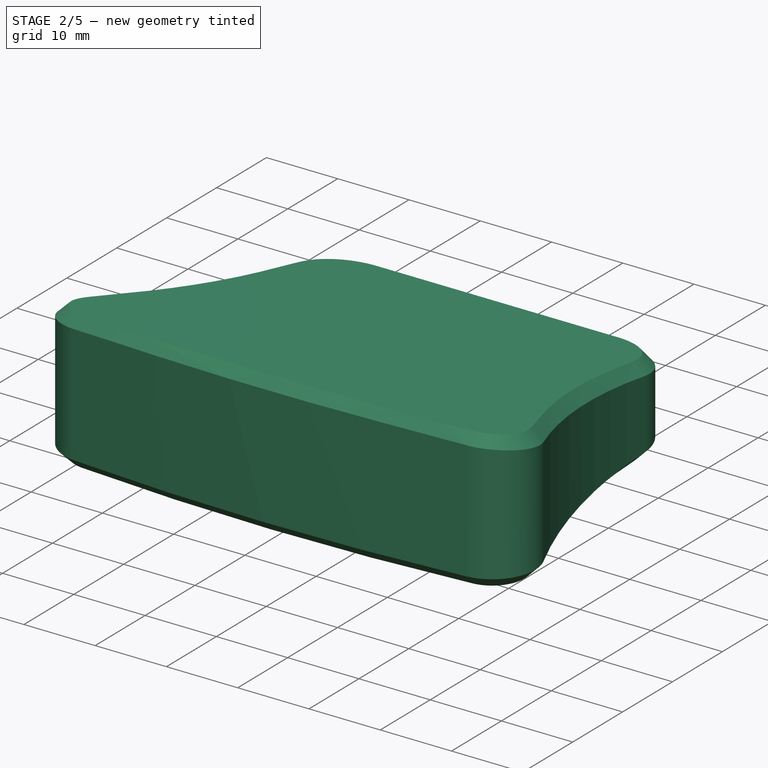
[diagram: stage 2 of 5 — iso view after this stage's code; geometry added in this stage tinted green]
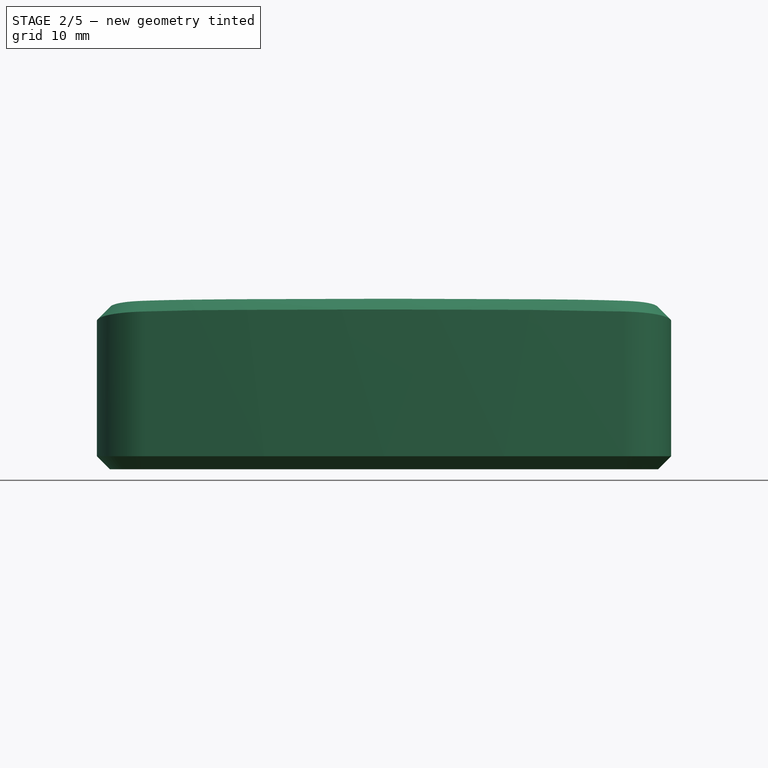
[diagram: stage 2 of 5 — front view after this stage's code; geometry added in this stage tinted green]
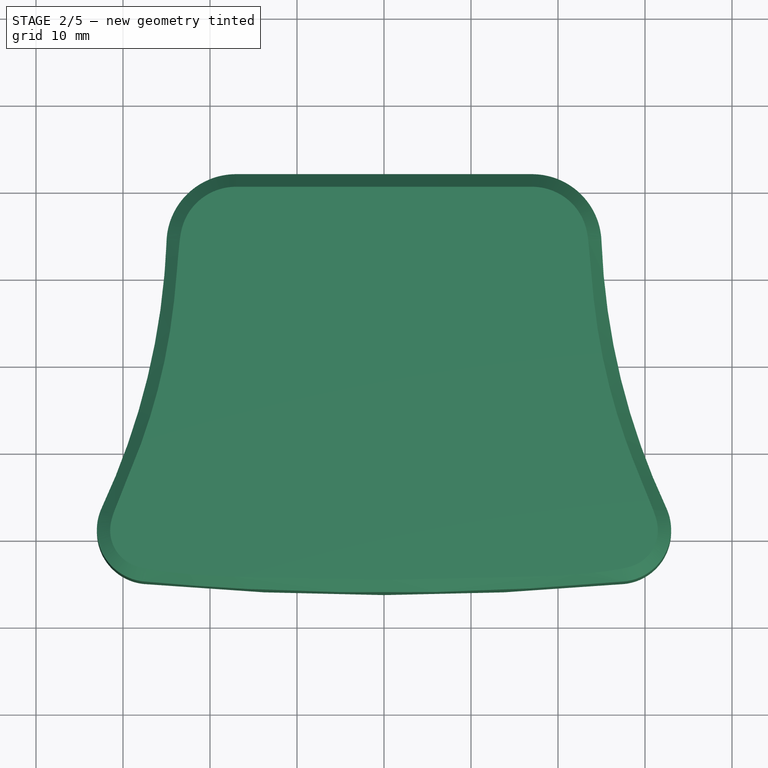
[diagram: stage 2 of 5 — top view after this stage's code; geometry added in this stage tinted green]
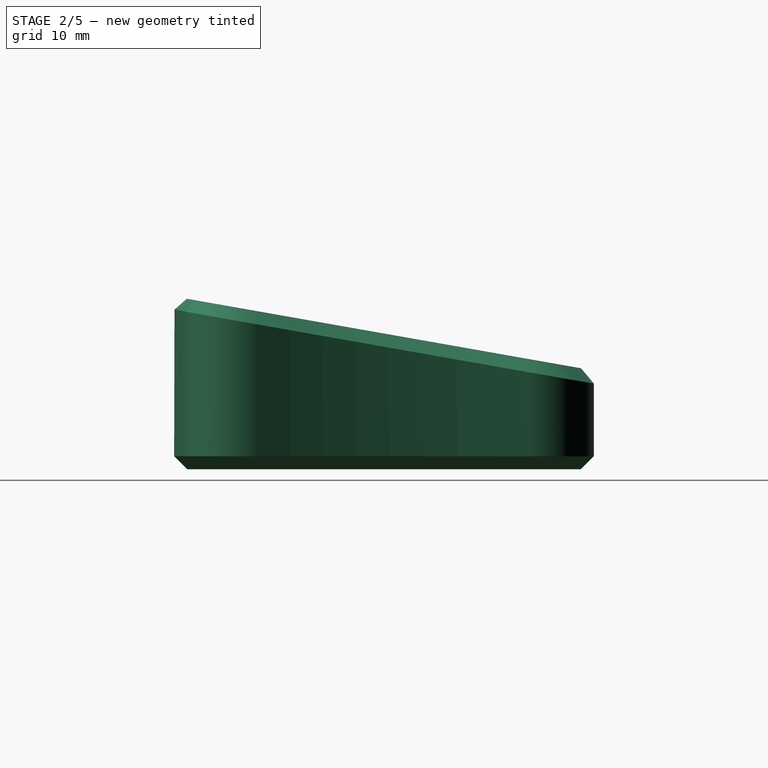
[diagram: stage 2 of 5 — right view after this stage's code; geometry added in this stage tinted green]
FEATURE [Sketcher::SketchObject] Sketch010  label="sk profile top"
  FullyConstrained = true
  MapMode = 5
  Support = -> [XY_Plane005]
  sketch-geometry (8):
    g0: LineSegment StartX=17 StartY=22 StartZ=0 EndX=-17 EndY=22 EndZ=0
    g1: ArcOfCircle CenterX=-27 CenterY=-19 CenterZ=0 NormalX=0 NormalY=0 NormalZ=1 AngleXU=0 Radius=6 StartAngle=2.70508 EndAngle=4.62042
    g2: ArcOfCircle CenterX=27 CenterY=-19 CenterZ=0 NormalX=0 NormalY=0 NormalZ=1 AngleXU=0 Radius=6 StartAngle=4.80436 EndAngle=6.7197
    g3: ArcOfCircle CenterX=17 CenterY=14 CenterZ=0 NormalX=0 NormalY=0 NormalZ=1 AngleXU=0 Radius=8 StartAngle=0.0381837 EndAngle=1.5708
    g4: ArcOfCircle CenterX=-17 CenterY=14 CenterZ=0 NormalX=0 NormalY=0 NormalZ=1 AngleXU=0 Radius=8 StartAngle=1.5708 EndAngle=3.10341
    g5: ArcOfCircle CenterX=2.045e-13 CenterY=273.758 CenterZ=0 NormalX=0 NormalY=0 NormalZ=1 AngleXU=0 Radius=300 StartAngle=4.62042 EndAngle=4.80436
    g6: ArcOfCircle CenterX=-104.936 CenterY=17.3594 CenterZ=0 NormalX=0 NormalY=0 NormalZ=1 AngleXU=0 Radius=80 StartAngle=5.84667 EndAngle=6.245
    g7: ArcOfCircle CenterX=104.936 CenterY=17.3594 CenterZ=0 NormalX=0 NormalY=0 NormalZ=1 AngleXU=0 Radius=80 StartAngle=3.17978 EndAngle=3.57811
  constraints (21):
    c: Horizontal(g0)
    c: Tangent(g0,g3) = -1.5708
    c: Tangent(g0,g4) = -1.5708
    c: Symmetric(g4,g3,g-2)
    c: Symmetric(g2,g1,g-2)
    c: DistanceX(g1,g2) = 54
    c: Radius(g2) = 6
    c: DistanceX(g4,g3) = 34
    c: Radius(g3) = 8
    c: DistanceY(g0) = 22
    c: Tangent(g2,g5) = -1.5708
    c: Tangent(g1,g5) = -1.5708
    c: DistanceY(g2,g-1) = 19
    c: Radius(g5) = 300
    c: Equal(g1,g2)
    c: Tangent(g4,g6) = 1.5708
    c: Tangent(g1,g6) = 1.5708
    c: Tangent(g3,g7) = 1.5708
    c: Tangent(g2,g7) = 1.5708
    c: Radius(g7) = 80
    c: Equal(g6,g7)
FEATURE [PartDesign::SubShapeBinder] Binder  label="sk ref oled viewport"
  BindCopyOnChange = 0
  BindMode = 0
  ClaimChildren = false
  Context = -> Body004 [Binder.]
  Fuse = false
  MakeFace = true
  OffsetFill = false
  OffsetIntersection = false
  OffsetJoinType = 0
  OffsetOpenResult = false
  PartialLoad = false
  Relative = true
  Support = -> [__91in_OLED_Module___Without_Glass[Part__Feature002.Edge271,Part__Feature002.Edge274,Part__Feature002.Edge279,Part__Feature002.Edge277]]
  _Version = 2
FEATURE [Sketcher::SketchObject] Sketch011  label="sk oled viewport"
  AttachmentOffset = pos=(0,0,24) rot=(0,0,1;0rad)
  ExternalGeometry = -> [Binder]
  FullyConstrained = true
  MapMode = 5
  Placement = pos=(0,-24,-5.3e-15) rot=(1,0,0;1.5708rad)
  Support = -> [XZ_Plane005]
  sketch-geometry (4):
    g0: LineSegment StartX=-11.1956 StartY=12.792 StartZ=0 EndX=11.1884 EndY=12.792 EndZ=0
    g1: LineSegment StartX=11.1884 StartY=12.792 StartZ=0 EndX=11.1884 EndY=7.20803 EndZ=0
    g2: LineSegment StartX=11.1884 StartY=7.20803 StartZ=0 EndX=-11.1956 EndY=7.20803 EndZ=0
    g3: LineSegment StartX=-11.1956 StartY=7.20803 StartZ=0 EndX=-11.1956 EndY=12.792 EndZ=0
  constraints (10):
    c: Coincident(g0,g1)
    c: Coincident(g1,g2)
    c: Coincident(g2,g3)
    c: Coincident(g3,g0)
    c: Horizontal(g0)
    c: Horizontal(g2)
    c: Vertical(g1)
    c: Vertical(g3)
    c: Coincident(g0,g-4)
    c: Coincident(g2,g-3)
FEATURE [PartDesign::SubShapeBinder] Binder001  label="sk ref usb port"
  BindCopyOnChange = 0
  BindMode = 0
  ClaimChildren = false
  Context = -> Body004 [Binder001.]
  Fuse = false
  MakeFace = true
  OffsetFill = false
  OffsetIntersection = false
  OffsetJoinType = 0
  OffsetOpenResult = false
  PartialLoad = false
  Relative = true
  Support = -> [Part__Feature[Edge4862,Edge4616,Edge4498,Edge4909,Edge4901,Edge4904,Edge4626,Edge4948]]
  _Version = 2
FEATURE [Sketcher::SketchObject] Sketch012  label="sk esp port"
  AttachmentOffset = pos=(0,0,-19.3) rot=(0,0,1;0rad)
  ExternalGeometry = -> [Binder001]
  FullyConstrained = true
  MapMode = 5
  Placement = pos=(0,19.3,4.3e-15) rot=(1,0,0;1.5708rad)
  Support = -> [XZ_Plane005]
  sketch-geometry (12):
    g0: LineSegment StartX=3.4 StartY=6.58 StartZ=0 EndX=-2.9 EndY=6.58 EndZ=0
    g1: LineSegment StartX=-3.5 StartY=5.98 StartZ=0 EndX=-3.5 EndY=5.26136 EndZ=0
    g2: LineSegment StartX=-3.32426 StartY=4.8371 StartZ=0 EndX=-2.79289 EndY=4.30573 EndZ=0
    g3: LineSegment StartX=-2.36863 StartY=4.12999 StartZ=0 EndX=2.86863 EndY=4.12999 EndZ=0
    g4: LineSegment StartX=3.29289 StartY=4.30573 StartZ=0 EndX=3.82426 EndY=4.8371 EndZ=0
    g5: LineSegment StartX=4 StartY=5.26136 StartZ=0 EndX=4 EndY=5.98 EndZ=0
    g6: ArcOfCircle CenterX=3.4 CenterY=5.98 CenterZ=0 NormalX=0 NormalY=0 NormalZ=1 AngleXU=0 Radius=0.6 StartAngle=7e-16 EndAngle=1.5708
    g7: ArcOfCircle CenterX=3.4 CenterY=5.26136 CenterZ=0 NormalX=0 NormalY=0 NormalZ=1 AngleXU=0 Radius=0.6 StartAngle=5.49779 EndAngle=6.28319
    g8: ArcOfCircle CenterX=2.86863 CenterY=4.72999 CenterZ=0 NormalX=0 NormalY=0 NormalZ=1 AngleXU=0 Radius=0.6 StartAngle=4.71239 EndAngle=5.49779
    g9: ArcOfCircle CenterX=-2.36863 CenterY=4.72999 CenterZ=0 NormalX=0 NormalY=0 NormalZ=1 AngleXU=0 Radius=0.6 StartAngle=3.92699 EndAngle=4.71239
    g10: ArcOfCircle CenterX=-2.9 CenterY=5.26136 CenterZ=0 NormalX=0 NormalY=0 NormalZ=1 AngleXU=0 Radius=0.6 StartAngle=3.14159 EndAngle=3.92699
    g11: ArcOfCircle CenterX=-2.9 CenterY=5.98 CenterZ=0 NormalX=0 NormalY=0 NormalZ=1 AngleXU=0 Radius=0.6 StartAngle=1.5708 EndAngle=3.14159
  constraints (24):
    c: Horizontal(g0)
    c: Vertical(g1)
    c: Horizontal(g3)
    c: Vertical(g5)
    c: Tangent(g5,g6) = -1.5708
    c: Tangent(g0,g6) = -1.5708
    c: Tangent(g5,g7) = -1.5708
    c: Tangent(g4,g7) = -1.5708
    c: Tangent(g4,g8) = -1.5708
    c: Tangent(g3,g8) = -1.5708
    c: Tangent(g2,g9) = -1.5708
    c: Tangent(g3,g9) = -1.5708
    c: Tangent(g1,g10) = -1.5708
    c: Tangent(g2,g10) = -1.5708
    c: Tangent(g1,g11) = -1.5708
    c: Tangent(g0,g11) = -1.5708
    c: Coincident(g11,g-4)
    c: Coincident(g10,g-5)
    c: Coincident(g9,g-6)
    c: Coincident(g6,g-3)
    c: Coincident(g7,g-8)
    c: Coincident(g8,g-7)
    c: Equal(g-3,g6)
    c: Equal(g-7,g8)
FEATURE [PartDesign::SubShapeBinder] Binder002  label="sk ref esp groundplane"
  BindCopyOnChange = 0
  BindMode = 0
  ClaimChildren = false
  Context = -> Body004 [Binder002.]
  Fuse = false
  MakeFace = true
  OffsetFill = false
  OffsetIntersection = false
  OffsetJoinType = 0
  OffsetOpenResult = false
  PartialLoad = false
  Relative = true
  Support = -> [Part__Feature[Edge388,Edge341,Edge392,Edge391,Edge390,Edge389,Edge351,Edge348]]
  _Version = 2
FEATURE [Sketcher::SketchObject] Sketch013  label="sk esp groundplane"
  AttachmentOffset = pos=(0,0,3) rot=(0,0,1;0rad)
  ExternalGeometry = -> [Binder002]
  FullyConstrained = true
  MapMode = 5
  Placement = pos=(0,0,3) rot=(0,0,1;0rad)
  Support = -> [XY_Plane005]
  sketch-geometry (9):
    g0: LineSegment StartX=-15.5 StartY=19.5 StartZ=0 EndX=-15.5 EndY=-17.3787 EndZ=0
    g1: LineSegment StartX=-15.5 StartY=-17.3787 StartZ=0 EndX=-13.3787 EndY=-19.5 EndZ=0
    g2: LineSegment StartX=-13.3787 StartY=-19.5 StartZ=0 EndX=13.3787 EndY=-19.5 EndZ=0
    g3: LineSegment StartX=13.3787 StartY=-19.5 StartZ=0 EndX=15.5 EndY=-17.3787 EndZ=0
    g4: LineSegment StartX=15.5 StartY=-17.3787 StartZ=0 EndX=15.5 EndY=12.871 EndZ=0
    g5: LineSegment StartX=15.5 StartY=12.871 StartZ=0 EndX=13.92 EndY=12.871 EndZ=0
    g6: LineSegment StartX=12.92 StartY=13.871 StartZ=0 EndX=12.92 EndY=19.5 EndZ=0
    g7: LineSegment StartX=12.92 StartY=19.5 StartZ=0 EndX=-15.5 EndY=19.5 EndZ=0
    g8: ArcOfCircle CenterX=13.92 CenterY=13.871 CenterZ=0 NormalX=0 NormalY=0 NormalZ=1 AngleXU=0 Radius=1 StartAngle=3.14159 EndAngle=4.71239
  constraints (18):
    c: Coincident(g-3,g0)
    c: Coincident(g0,g-3)
    c: Coincident(g0,g1)
    c: Coincident(g1,g-6)
    c: Coincident(g1,g2)
    c: Coincident(g2,g-6)
    c: Coincident(g2,g3)
    c: Coincident(g3,g-5)
    c: Coincident(g3,g4)
    c: Coincident(g4,g-5)
    c: Coincident(g4,g5)
    c: Coincident(g6,g-7)
    c: Coincident(g6,g7)
    c: Coincident(g7,g0)
    c: Tangent(g5,g8) = 1.5708
    c: Tangent(g6,g8) = 1.5708
    c: Coincident(g8,g-4)
    c: Horizontal(g5)
FEATURE [PartDesign::SubShapeBinder] Binder003  label="sk ref oled top plane"
  BindCopyOnChange = 0
  BindMode = 0
  ClaimChildren = false
  Context = -> Body004 [Binder003.]
  Fuse = false
  MakeFace = true
  OffsetFill = false
  OffsetIntersection = false
  OffsetJoinType = 0
  OffsetOpenResult = false
  PartialLoad = false
  Relative = true
  Support = -> [__91in_OLED_Module___Without_Glass[Part__Feature001.Edge671,Part__Feature001.Edge670,Part__Feature002.Edge274,Part__Feature017.Edge38,Part__Feature017.Edge97,Part__Feature011.Edge40]]
  _Version = 2
FEATURE [Sketcher::SketchObject] Sketch014  label="sk oled top plane"
  AttachmentOffset = pos=(0,0,15.26) rot=(0,0,1;0rad)
  ExternalGeometry = -> [Binder003]
  FullyConstrained = true
  MapMode = 5
  Placement = pos=(0,0,15.26) rot=(0,0,1;0rad)
  Support = -> [XY_Plane005]
  sketch-geometry (7):
    g0: LineSegment StartX=-17.4338 StartY=-22 StartZ=0 EndX=20.5138 EndY=-22 EndZ=0
    g1: LineSegment StartX=20.5138 StartY=-22 StartZ=0 EndX=20.5138 EndY=-23.7894 EndZ=0
    g2: LineSegment StartX=20.5138 StartY=-23.7894 StartZ=0 EndX=-17.4338 EndY=-23.7894 EndZ=0
    g3: LineSegment StartX=-17.4338 StartY=-23.7894 StartZ=0 EndX=-17.4338 EndY=-22 EndZ=0
    g4: LineSegment StartX=-10.1291 StartY=-20.9 StartZ=0 EndX=6.65533 EndY=-20.9 EndZ=0
    g5: LineSegment StartX=6.65533 StartY=-20.9 StartZ=0 EndX=6.65533 EndY=-22 EndZ=0
    g6: LineSegment StartX=-10.1291 StartY=-22 StartZ=0 EndX=-10.1291 EndY=-20.9 EndZ=0
  constraints (21):
    c: Coincident(g0,g1)
    c: Coincident(g1,g2)
    c: Coincident(g2,g3)
    c: Coincident(g3,g0)
    c: Horizontal(g0)
    c: Horizontal(g2)
    c: Vertical(g1)
    c: Vertical(g3)
    c: Coincident(g0,g-3)
    c: PointOnObject(g-4,g1)
    c: PointOnObject(g-5,g2)
    c: Coincident(g4,g5)
    c: Coincident(g6,g4)
    c: Horizontal(g4)
    c: Vertical(g5)
    c: Vertical(g6)
    c: PointOnObject(g6,g0)
    c: PointOnObject(g5,g0)
    c: PointOnObject(g-7,g5)
    c: PointOnObject(g-8,g4)
    c: PointOnObject(g-6,g6)
FEATURE [PartDesign::SubShapeBinder] Binder004  label="sk ref nuts front"
  BindCopyOnChange = 0
  BindMode = 0
  ClaimChildren = false
  Context = -> Body004 [Binder004.]
  Fuse = false
  MakeFace = true
  OffsetFill = false
  OffsetIntersection = false
  OffsetJoinType = 0
  OffsetOpenResult = false
  PartialLoad = false
  Relative = true
  Support = -> [Nut[Edge13,Edge38],Nut001[Edge13,Edge38]]
  _Version = 2
FEATURE [Sketcher::SketchObject] Sketch015  label="sk nuts front"
  AttachmentOffset = pos=(0,0,20) rot=(0,0,1;0rad)
  ExternalGeometry = -> [Binder004]
  FullyConstrained = true
  MapMode = 5
  Placement = pos=(0,-20,-4.4e-15) rot=(1,0,0;1.5708rad)
  Support = -> [XZ_Plane005]
  sketch-geometry (16):
    g0: Circle CenterX=24 CenterY=10 CenterZ=0 NormalX=0 NormalY=0 NormalZ=1 AngleXU=0 Radius=1.75
    g1: LineSegment StartX=24 StartY=13.1754 StartZ=0 EndX=21.25 EndY=11.5877 EndZ=0
    g2: LineSegment StartX=21.25 StartY=11.5877 StartZ=0 EndX=21.25 EndY=8.41229 EndZ=0
    g3: LineSegment StartX=21.25 StartY=8.41229 StartZ=0 EndX=24 EndY=6.82457 EndZ=0
    g4: LineSegment StartX=24 StartY=6.82457 StartZ=0 EndX=26.75 EndY=8.41229 EndZ=0
    g5: LineSegment StartX=26.75 StartY=8.41229 StartZ=0 EndX=26.75 EndY=11.5877 EndZ=0
    g6: LineSegment StartX=26.75 StartY=11.5877 StartZ=0 EndX=24 EndY=13.1754 EndZ=0
    g7: Circle CenterX=24 CenterY=10 CenterZ=0 NormalX=0 NormalY=0 NormalZ=1 AngleXU=0 Radius=3.17543
    g8: Circle CenterX=-24 CenterY=10 CenterZ=0 NormalX=0 NormalY=0 NormalZ=1 AngleXU=0 Radius=1.75
    g9: LineSegment StartX=-24 StartY=13.1754 StartZ=0 EndX=-26.75 EndY=11.5877 EndZ=0
    g10: LineSegment StartX=-26.75 StartY=11.5877 StartZ=0 EndX=-26.75 EndY=8.41229 EndZ=0
    g11: LineSegment StartX=-26.75 StartY=8.41229 StartZ=0 EndX=-24 EndY=6.82457 EndZ=0
    g12: LineSegment StartX=-24 StartY=6.82457 StartZ=0 EndX=-21.25 EndY=8.41229 EndZ=0
    g13: LineSegment StartX=-21.25 StartY=8.41229 StartZ=0 EndX=-21.25 EndY=11.5877 EndZ=0
    g14: LineSegment StartX=-21.25 StartY=11.5877 StartZ=0 EndX=-24 EndY=13.1754 EndZ=0
    g15: Circle CenterX=-24 CenterY=10 CenterZ=0 NormalX=0 NormalY=0 NormalZ=1 AngleXU=0 Radius=3.17543
  constraints (34):
    c: Coincident(g0,g-6)
    c: Diameter(g0) = 3.5
    c: Coincident(g1,g2)
    c: Coincident(g2,g3)
    c: Coincident(g3,g4)
    c: Coincident(g4,g5)
    c: Coincident(g5,g6)
    c: Coincident(g6,g1)
    c: Equal(g1, g2-g6) x5
    c: PointOnObject(g1,g7)
    c: PointOnObject(g2,g7)
    c: PointOnObject(g3,g7)
    c: PointOnObject(g4,g7)
    c: PointOnObject(g5,g7)
    c: PointOnObject(g6,g7)
    c: Coincident(g7,g0)
    c: Coincident(g6,g-5)
    c: Coincident(g8,g-4)
    c: Equal(g8,g0)
    c: Coincident(g9,g10)
    c: Coincident(g10,g11)
    c: Coincident(g11,g12)
    c: Coincident(g12,g13)
    c: Coincident(g13,g14)
    c: Coincident(g14,g9)
    c: Equal(g9, g10-g14) x5
    c: PointOnObject(g9,g15)
    c: PointOnObject(g10,g15)
    c: PointOnObject(g11,g15)
    c: PointOnObject(g12,g15)
    c: PointOnObject(g13,g15)
    c: PointOnObject(g14,g15)
    c: Coincident(g15,g8)
    c: Coincident(g14,g-3)
FEATURE [PartDesign::SubShapeBinder] Binder005  label="sk ref separation line"
  BindCopyOnChange = 0
  BindMode = 0
  ClaimChildren = false
  Context = -> Body004 [Binder005.]
  Fuse = false
  MakeFace = true
  OffsetFill = false
  OffsetIntersection = false
  OffsetJoinType = 0
  OffsetOpenResult = false
  PartialLoad = false
  Relative = true
  Support = -> [Part__Feature[Edge4620],__91in_OLED_Module___Without_Glass[Part__Feature002.Edge274]]
  _Version = 2
FEATURE [PartDesign::Plane] DatumPlane  label="sk separation plane"
  Length = 60.6964
  MapMode = 13
  Placement = pos=(-1.21434,-9.24417,10.488) rot=(0,0.078468,0.996917;3.14159rad)
  ResizeMode = 0
  Support = -> [Binder005]
  Width = 67.9033
FEATURE [PartDesign::SubShapeBinder] Binder006  label="hs ref top profile"
  BindCopyOnChange = 0
  BindMode = 0
  ClaimChildren = false
  Context = -> Body005 [Binder006.]
  Fuse = false
  MakeFace = true
  OffsetFill = false
  OffsetIntersection = false
  OffsetJoinType = 0
  OffsetOpenResult = false
  PartialLoad = false
  Relative = true
  Support = -> [Body004[Sketch010.]]
  _Version = 2
FEATURE [Sketcher::SketchObject] Sketch016  label="hs base"
  ExternalGeometry = -> [Binder006]
  FullyConstrained = true
  MapMode = 5
  Support = -> [XY_Plane006]
  sketch-geometry (8):
    g0: ArcOfCircle CenterX=17 CenterY=14 CenterZ=0 NormalX=0 NormalY=0 NormalZ=1 AngleXU=0 Radius=8 StartAngle=0.0381837 EndAngle=1.5708
    g1: ArcOfCircle CenterX=104.936 CenterY=17.3594 CenterZ=0 NormalX=0 NormalY=0 NormalZ=1 AngleXU=0 Radius=80 StartAngle=3.17978 EndAngle=3.57811
    g2: ArcOfCircle CenterX=27 CenterY=-19 CenterZ=0 NormalX=0 NormalY=0 NormalZ=1 AngleXU=0 Radius=6 StartAngle=4.80436 EndAngle=6.7197
    g3: ArcOfCircle CenterX=2.045e-13 CenterY=273.758 CenterZ=0 NormalX=0 NormalY=0 NormalZ=1 AngleXU=0 Radius=300 StartAngle=4.62042 EndAngle=4.80436
    g4: ArcOfCircle CenterX=-27 CenterY=-19 CenterZ=0 NormalX=0 NormalY=0 NormalZ=1 AngleXU=0 Radius=6 StartAngle=2.70508 EndAngle=4.62042
    g5: ArcOfCircle CenterX=-104.936 CenterY=17.3594 CenterZ=0 NormalX=0 NormalY=0 NormalZ=1 AngleXU=0 Radius=80 StartAngle=5.84667 EndAngle=6.245
    g6: ArcOfCircle CenterX=-17 CenterY=14 CenterZ=0 NormalX=0 NormalY=0 NormalZ=1 AngleXU=0 Radius=8 StartAngle=1.5708 EndAngle=3.10341
    g7: LineSegment StartX=-17 StartY=22 StartZ=0 EndX=17 EndY=22 EndZ=0
  constraints (16):
    c: Coincident(g0,g-9)
    c: Coincident(g1,g-8)
    c: Coincident(g2,g-7)
    c: Coincident(g3,g-6)
    c: Coincident(g4,g-5)
    c: Coincident(g5,g-4)
    c: Coincident(g6,g-3)
    c: Tangent(g0,g7) = 1.5708
    c: Tangent(g0,g1) = 1.5708
    c: Tangent(g1,g2) = 1.5708
    c: Tangent(g2,g3) = -1.5708
    c: Tangent(g3,g4) = -1.5708
    c: Tangent(g4,g5) = 1.5708
    c: Tangent(g5,g6) = 1.5708
    c: Tangent(g6,g7) = 1.5708
    c: PointOnObject(g-9,g7)
FEATURE [PartDesign::Pad] Pad009  label="HS Base"
  Direction = (0,0,1)
  Length = 22
  Length2 = 10
  Profile = -> Sketch016
  ReferenceAxis = -> Sketch016 [N_Axis]
  Type = 0
FEATURE [PartDesign::SubShapeBinder] Binder020  label="hs ref USB port"
  BindCopyOnChange = 0
  BindMode = 0
  ClaimChildren = false
  Context = -> Body005 [Binder020.]
  Fuse = false
  MakeFace = true
  OffsetFill = false
  OffsetIntersection = false
  OffsetJoinType = 0
  OffsetOpenResult = false
  PartialLoad = false
  Relative = true
  Support = -> [Body004[Sketch012.]]
  _Version = 2
FEATURE [Sketcher::SketchObject] Sketch046  label="hs usb port"
  AttachmentOffset = pos=(0,0,-15) rot=(0,0,1;0rad)
  ExternalGeometry = -> [Binder020]
  FullyConstrained = true
  MapMode = 5
  Placement = pos=(0,15,3.3e-15) rot=(1,0,0;1.5708rad)
  Support = -> [XZ_Plane006]
  sketch-geometry (12):
    g0: LineSegment StartX=-4.2 StartY=5.98 StartZ=0 EndX=-4.2 EndY=5.26136 EndZ=0
    g1: LineSegment StartX=-3.81924 StartY=4.34213 StartZ=0 EndX=-3.28787 EndY=3.81075 EndZ=0
    g2: LineSegment StartX=-2.36863 StartY=3.42999 StartZ=0 EndX=2.86863 EndY=3.42999 EndZ=0
    g3: LineSegment StartX=3.78787 StartY=3.81075 StartZ=0 EndX=4.31924 EndY=4.34213 EndZ=0
    g4: LineSegment StartX=4.7 StartY=5.26136 StartZ=0 EndX=4.7 EndY=5.98 EndZ=0
    g5: LineSegment StartX=3.4 StartY=7.28 StartZ=0 EndX=-2.9 EndY=7.28 EndZ=0
    g6: ArcOfCircle CenterX=-2.9 CenterY=5.98 CenterZ=0 NormalX=0 NormalY=0 NormalZ=1 AngleXU=0 Radius=1.3 StartAngle=1.5708 EndAngle=3.14159
    g7: ArcOfCircle CenterX=-2.9 CenterY=5.26136 CenterZ=0 NormalX=0 NormalY=0 NormalZ=1 AngleXU=0 Radius=1.3 StartAngle=3.14159 EndAngle=3.92699
    g8: ArcOfCircle CenterX=-2.36863 CenterY=4.72999 CenterZ=0 NormalX=0 NormalY=0 NormalZ=1 AngleXU=0 Radius=1.3 StartAngle=3.92699 EndAngle=4.71239
    g9: ArcOfCircle CenterX=2.86863 CenterY=4.72999 CenterZ=0 NormalX=0 NormalY=0 NormalZ=1 AngleXU=0 Radius=1.3 StartAngle=4.71239 EndAngle=5.49779
    g10: ArcOfCircle CenterX=3.4 CenterY=5.26136 CenterZ=0 NormalX=0 NormalY=0 NormalZ=1 AngleXU=0 Radius=1.3 StartAngle=5.49779 EndAngle=6.28319
    g11: ArcOfCircle CenterX=3.4 CenterY=5.98 CenterZ=0 NormalX=0 NormalY=0 NormalZ=1 AngleXU=0 Radius=1.3 StartAngle=0 EndAngle=1.5708
  constraints (24):
    c: Vertical(g0)
    c: Horizontal(g2)
    c: Vertical(g4)
    c: Horizontal(g5)
    c: Tangent(g5,g6) = -1.5708
    c: Tangent(g0,g6) = -1.5708
    c: Tangent(g0,g7) = -1.5708
    c: Tangent(g1,g7) = -1.5708
    c: Tangent(g1,g8) = -1.5708
    c: Tangent(g2,g8) = -1.5708
    c: Tangent(g2,g9) = -1.5708
    c: Tangent(g3,g9) = -1.5708
    c: Tangent(g3,g10) = -1.5708
    c: Tangent(g4,g10) = -1.5708
    c: Tangent(g5,g11) = -1.5708
    c: Tangent(g4,g11) = -1.5708
    c: Coincident(g11,g-3)
    c: Coincident(g10,g-4)
    c: Coincident(g9,g-5)
    c: Coincident(g8,g-6)
    c: Coincident(g7,g-7)
    c: Coincident(g6,g-8)
    c: Distance(g-3,g5) = 0.7
    c: Distance(g3,g-5) = 0.7
FEATURE [Sketcher::SketchObject] Sketch047  label="hs screw hole"
  AttachmentOffset = pos=(0,0,10) rot=(0,0,1;0rad)
  FullyConstrained = true
  MapMode = 5
  Placement = pos=(0,0,10) rot=(0,0,1;0rad)
  Support = -> [XY_Plane006]
  sketch-geometry (7):
    g0: LineSegment StartX=24 StartY=-15.7 StartZ=0 EndX=24 EndY=-25.7 EndZ=0
    g1: LineSegment StartX=24 StartY=-25.7 StartZ=0 EndX=27 EndY=-25.7 EndZ=0
    g2: LineSegment StartX=27 StartY=-25.7 StartZ=0 EndX=27 EndY=-24.7 EndZ=0
    g3: LineSegment StartX=27 StartY=-24.7 StartZ=0 EndX=25.7 EndY=-24.7 EndZ=0
    g4: LineSegment StartX=25.7 StartY=-24.7 StartZ=0 EndX=25.7 EndY=-15.7 EndZ=0
    g5: LineSegment StartX=25.7 StartY=-15.7 StartZ=0 EndX=24 EndY=-15.7 EndZ=0
    g6: LineSegment StartX=24 StartY=-15.7 StartZ=0 EndX=24 EndY=-14 EndZ=0
  constraints (21):
    c: Vertical(g0)
    c: Coincident(g0,g1)
    c: Horizontal(g1)
    c: Coincident(g1,g2)
    c: Vertical(g2)
    c: Coincident(g2,g3)
    c: Horizontal(g3)
    c: Coincident(g3,g4)
    c: Vertical(g4)
    c: Coincident(g4,g5)
    c: Coincident(g5,g0)
    c: Horizontal(g5)
    c: Coincident(g6,g0)
    c: Vertical(g6)
    c: Equal(g5,g6)
    c: DistanceX(g6) = 24
    c: DistanceX(g5,g5) = 1.7
    c: DistanceY(g3,g-1) = 24.7
    c: DistanceX(g1,g1) = 3
    c: DistanceY(g2,g2) = 1
    c: DistanceY(g4,g4) = 9
FEATURE [Sketcher::SketchObject] Sketch049  label="sk profile side"
  ExternalGeometry = -> [Sketch010]
  FullyConstrained = true
  MapMode = 5
  Placement = pos=(0,0,0) rot=(0.57735,0.57735,0.57735;2.0944rad)
  Support = -> [YZ_Plane005]
  sketch-geometry (4):
    g0: LineSegment StartX=-26.2424 StartY=-7.3e-15 StartZ=0 EndX=22 EndY=6.1e-15 EndZ=0
    g1: LineSegment StartX=22 StartY=6.1e-15 StartZ=0 EndX=22 EndY=11.3522 EndZ=0
    g2: LineSegment StartX=22 StartY=11.3522 StartZ=0 EndX=-26.2424 EndY=19.8586 EndZ=0
    g3: LineSegment StartX=-26.2424 StartY=19.8586 StartZ=0 EndX=-26.2424 EndY=-7.1e-15 EndZ=0
  constraints (10):
    c: Coincident(g0,g3)
    c: Vertical(g3)
    c: Coincident(g0,g1)
    c: Coincident(g0,g-6)
    c: Coincident(g0,g-5)
    c: Coincident(g2,g3)
    c: Coincident(g1,g2)
    c: Angle(g2,g0) = 0.174533
    c: Distance(g-1,g2) = 15
    c: Vertical(g1)
FEATURE [PartDesign::SubShapeBinder] Binder021  label="hs ref side profile"
  BindCopyOnChange = 0
  BindMode = 0
  ClaimChildren = false
  Context = -> Body005 [Binder021.]
  Fuse = false
  MakeFace = true
  OffsetFill = false
  OffsetIntersection = false
  OffsetJoinType = 0
  OffsetOpenResult = false
  PartialLoad = false
  Relative = true
  Support = -> [Body004[Sketch049.]]
  _Version = 2
FEATURE [Sketcher::SketchObject] Sketch048
  ExternalGeometry = -> [Binder021,Pad009]
  FullyConstrained = true
  MapMode = 5
  Placement = pos=(0,0,0) rot=(0.57735,0.57735,0.57735;2.0944rad)
  Support = -> [YZ_Plane006]
  sketch-geometry (4):
    g0: LineSegment StartX=-26.2424 StartY=22 StartZ=0 EndX=-26.2424 EndY=19.8586 EndZ=0
    g1: LineSegment StartX=-26.2424 StartY=19.8586 StartZ=0 EndX=22 EndY=11.3522 EndZ=0
    g2: LineSegment StartX=22 StartY=11.3522 StartZ=0 EndX=22 EndY=22 EndZ=0
    g3: LineSegment StartX=22 StartY=22 StartZ=0 EndX=-26.2424 EndY=22 EndZ=0
  constraints (10):
    c: Vertical(g0)
    c: Coincident(g0,g1)
    c: Coincident(g1,g2)
    c: Vertical(g2)
    c: Coincident(g2,g3)
    c: Coincident(g3,g0)
    c: Horizontal(g3)
    c: Coincident(g0,g-3)
    c: Coincident(g-3,g1)
    c: PointOnObject(g-4,g3)
FEATURE [PartDesign::Pocket] Pocket011  label="HS Side cutoff"
  BaseFeature = -> Pad009
  Direction = (-1,2e-16,-3e-16)
  Length = 5
  Length2 = 5
  Midplane = true
  Profile = -> Sketch048
  ReferenceAxis = -> Sketch048 [N_Axis]
  Type = 1
FEATURE [PartDesign::Chamfer] Chamfer  label="HS Base chamfer"
  Angle = 45
  Base = -> Pocket011 [Edge3,Edge1]
  BaseFeature = -> Pocket011
  ChamferType = 0
  FlipDirection = false
  Size = 1.5
  Size2 = 1
  SupportTransform = false
  UseAllEdges = false
FEATURE [PartDesign::Pocket] Pocket  label="HS ESP cavity"
  BaseFeature = -> Chamfer
  Direction = (0,0,-1)
  Length = 6
  Length2 = 5
  Profile = -> Sketch017
  ReferenceAxis = -> Sketch017 [N_Axis]
  Reversed = true
  Type = 0
FEATURE [PartDesign::SubShapeBinder] Binder024  label="lh ref screw"
  BindCopyOnChange = 0
  BindMode = 0
  ClaimChildren = false
  Context = -> Body010 [Binder024.]
  Fuse = false
  MakeFace = true
  OffsetFill = false
  OffsetIntersection = false
  OffsetJoinType = 0
  OffsetOpenResult = false
  PartialLoad = false
  Relative = true
  Support = -> [Body009[PolarPattern003.Edge4]]
  _Version = 2
FEATURE [Sketcher::SketchObject] Sketch057  label="lh cutout screw"
  ExternalGeometry = -> [Binder024,Binder023]
  FullyConstrained = true
  MapMode = 5
  Placement = pos=(-5.1,17.0828,7.51683) rot=(0,0.087156,0.996195;3.14159rad)
  Support = -> [DatumPlane006]
  sketch-geometry (4):
    g0: ArcOfCircle CenterX=15.4 CenterY=8.30553 CenterZ=0 NormalX=0 NormalY=0 NormalZ=1 AngleXU=0 Radius=3.5 StartAngle=1.89656 EndAngle=3.14159
    g1: LineSegment StartX=11.9 StartY=5.3e-15 StartZ=0 EndX=11.9 EndY=8.30553 EndZ=0
    g2: LineSegment StartX=14.2799 StartY=11.6215 StartZ=0 EndX=14.2799 EndY=5.3e-15 EndZ=0
    g3: LineSegment StartX=11.9 StartY=5.3e-15 StartZ=0 EndX=14.2799 EndY=5.3e-15 EndZ=0
  constraints (10):
    c: Tangent(g1,g0) = 1.5708
    c: Vertical(g1)
    c: Vertical(g2)
    c: Radius(g0) = 3.5
    c: Coincident(g-3,g0)
    c: Coincident(g0,g2)
    c: Coincident(g3,g1)
    c: Coincident(g3,g2)
    c: Coincident(g2,g-4)
    c: Horizontal(g3)
FEATURE [PartDesign::Pocket] Pocket015  label="LH Cutout screw R"
  BaseFeature = -> Pocket014
  Direction = (0,-0.173648,-0.984808)
  Length = 5
  Length2 = 5
  Placement = pos=(-5.1,17.0017,7.05725) rot=(1,0,0;1.39626rad)
  Profile = -> Sketch057
  ReferenceAxis = -> Sketch057 [N_Axis]
  Type = 1
FEATURE [PartDesign::Mirrored] Mirrored002  label="LH Cutout screw L"
  BaseFeature = -> Pocket015
  MirrorPlane = -> YZ_Plane011
  Originals = -> [Pocket015]
  Placement = pos=(-5.1,17.0017,7.05725) rot=(1,0,0;1.39626rad)
FEATURE [PartDesign::SubShapeBinder] Binder025  label="lh led grid"
  BindCopyOnChange = 0
  BindMode = 0
  ClaimChildren = false
  Context = -> Body010 [Binder025.]
  Fuse = false
  MakeFace = true
  OffsetFill = false
  OffsetIntersection = false
  OffsetJoinType = 0
  OffsetOpenResult = false
  PartialLoad = false
  Relative = true
  Support = -> [Compound[Edge18,Edge15,Edge24,Edge21]]
  _Version = 2
FEATURE [Sketcher::SketchObject] Sketch059  label="lh pins base"
  ExternalGeometry = -> [Binder025]
  FullyConstrained = true
  MapMode = 5
  Placement = pos=(-5.1,17.0828,7.51683) rot=(0,0.087156,0.996195;3.14159rad)
  Support = -> [DatumPlane006]
  sketch-geometry (1):
    g0: Circle CenterX=-13 CenterY=23.2 CenterZ=0 NormalX=0 NormalY=0 NormalZ=1 AngleXU=0 Radius=1.4
  constraints (2):
    c: Coincident(g0,g-3)
    c: Diameter(g0) = 2.8
FEATURE [Sketcher::SketchObject] Sketch060  label="lh pins top"
  AttachmentOffset = pos=(0,0,1.5) rot=(0,0,1;0rad)
  ExternalGeometry = -> [Binder025]
  FullyConstrained = true
  MapMode = 5
  Placement = pos=(-5.1,17.3432,8.99404) rot=(0,0.087156,0.996195;3.14159rad)
  Support = -> [DatumPlane006]
  sketch-geometry (1):
    g0: Circle CenterX=-13 CenterY=23.2 CenterZ=0 NormalX=0 NormalY=0 NormalZ=1 AngleXU=0 Radius=1
  constraints (2):
    c: Coincident(g0,g-3)
    c: Diameter(g0) = 2
FEATURE [PartDesign::AdditiveLoft] AdditiveLoft001  label="LH Pin L"
  BaseFeature = -> Mirrored002
  Closed = false
  Placement = pos=(-5.1,17.0017,7.05725) rot=(1,0,0;1.39626rad)
  Profile = -> Sketch059
  Ruled = false
  Sections = -> [Sketch060]
FEATURE [PartDesign::Mirrored] Mirrored003  label="LH Pin R"
  BaseFeature = -> AdditiveLoft001
  MirrorPlane = -> YZ_Plane011
  Originals = -> [AdditiveLoft001]
  Placement = pos=(-5.1,17.0017,7.05725) rot=(1,0,0;1.39626rad)
FEATURE [PartDesign::SubShapeBinder] Binder027  label="LH ref top of ESP"
  BindCopyOnChange = 0
  BindMode = 0
  ClaimChildren = false
  Context = -> Body010 [Binder027.]
  Fuse = false
  MakeFace = true
  OffsetFill = false
  OffsetIntersection = false
  OffsetJoinType = 0
  OffsetOpenResult = false
  PartialLoad = false
  Relative = true
  Support = -> [Part__Feature[Edge2549,Edge2540,Edge2543,Edge2547]]
  _Version = 2
FEATURE [Sketcher::SketchObject] Sketch062
  ExternalGeometry = -> [Binder027,DatumPlane006,Sketch058]
  FullyConstrained = true
  MapMode = 5
  Placement = pos=(0,0,0) rot=(0.57735,0.57735,0.57735;2.0944rad)
  Support = -> [YZ_Plane011]
  sketch-geometry (4):
    g0: LineSegment StartX=-13.2955 StartY=11.4517 StartZ=0 EndX=-14.0125 EndY=7.385 EndZ=0
    g1: LineSegment StartX=-14.0125 StartY=7.385 StartZ=0 EndX=4.76171 EndY=7.385 EndZ=0
    g2: LineSegment StartX=4.91268 StartY=8.24115 StartZ=0 EndX=-13.2955 EndY=11.4517 EndZ=0
    g3: LineSegment StartX=4.76171 StartY=7.385 StartZ=0 EndX=4.91268 EndY=8.24115 EndZ=0
  constraints (11):
    c: Coincident(g0,g1)
    c: Horizontal(g1)
    c: Coincident(g2,g0)
    c: Parallel(g-4,g2)
    c: PointOnObject(g-5,g2)
    c: Perpendicular(g0,g2)
    c: Perpendicular(g2,g3) = 4.71239
    c: Distance(g-5,g0) = 30.6
    c: Distance(g-3,g1) = 0.35
    c: Coincident(g3,g1)
    c: PointOnObject(g-3,g3)
FEATURE [PartDesign::Pad] Pad014  label="LH Rib ESP"
  BaseFeature = -> Mirrored003
  Direction = (1,-2e-16,3e-16)
  Length = 2
  Length2 = 10
  Midplane = true
  Placement = pos=(-5.1,17.0017,7.05725) rot=(1,0,0;1.39626rad)
  Profile = -> Sketch062
  ReferenceAxis = -> Sketch062 [N_Axis]
  Type = 0
FEATURE [PartDesign::Fillet] Fillet  label="LH Rib fillet"
  Base = -> Pad014 [Edge49,Edge51]
  BaseFeature = -> Pad014
  Placement = pos=(-5.1,17.0017,7.05725) rot=(1,0,0;1.39626rad)
  Radius = 0.7
  SupportTransform = false
  UseAllEdges = false
FEATURE [PartDesign::Body] Body012  label="Separation top"
  Group = -> [Binder013,Sketch034,Pad012,Binder014,Sketch035,Pocket009,Binder018,Binder019,Sketch044,DatumPlane002,Sketch045,SubtractivePipe001,Binder030,Binder031,Sketch067,Revolution004,Sketch068,Revolution005,Sketch069,Groove003,Sketch070,Groove004,Mirrored005]
  Origin = -> Origin013
  Tip = -> Mirrored005
FEATURE [PartDesign::SubShapeBinder] Binder032  label="sk ref esp leds"
  BindCopyOnChange = 0
  BindMode = 0
  ClaimChildren = false
  Context = -> Body004 [Binder032.]
  Fuse = false
  MakeFace = true
  OffsetFill = false
  OffsetIntersection = false
  OffsetJoinType = 0
  OffsetOpenResult = false
  PartialLoad = false
  Relative = true
  Support = -> [Part__Feature[Edge205,Edge189,Edge190,Edge180,Edge181,Edge197,Edge198,Edge204]]
  _Version = 2
FEATURE [PartDesign::Plane] DatumPlane008  label="sk ref top plane ESP pcb"
  Length = 60
  MapMode = 13
  Placement = pos=(-12.0917,16.4667,4) rot=(0,0,1;0rad)
  ResizeMode = 0
  Support = -> [Binder032]
  Width = 60
FEATURE [Sketcher::SketchObject] Sketch075  label="sk led contour esp"
  AttachmentOffset = pos=(0,0,0.2) rot=(0,0,1;0rad)
  ExternalGeometry = -> [Binder032]
  FullyConstrained = true
  MapMode = 5
  Placement = pos=(-12.0917,16.4667,4.2) rot=(0,0,1;0rad)
  Support = -> [DatumPlane008]
  sketch-geometry (32):
    g0: LineSegment StartX=1.21667 StartY=-2.86667 StartZ=0 EndX=-2.43333 EndY=-2.86667 EndZ=0
    g1: LineSegment StartX=-2.43333 StartY=-2.86667 StartZ=0 EndX=-2.43333 EndY=1.43333 EndZ=0
    g2: LineSegment StartX=-2.43333 StartY=1.43333 StartZ=0 EndX=1.21667 EndY=1.43333 EndZ=0
    g3: LineSegment StartX=1.21667 StartY=1.43333 StartZ=0 EndX=1.21667 EndY=-2.86667 EndZ=0
    g4: LineSegment StartX=-1.40833 StartY=0.883333 StartZ=0 EndX=0.191667 EndY=0.883333 EndZ=0
    g5: LineSegment StartX=0.191667 StartY=0.883333 StartZ=0 EndX=0.191667 EndY=0.0834333 EndZ=0
    g6: LineSegment StartX=0.191667 StartY=0.0834333 StartZ=0 EndX=-1.40833 EndY=0.0834333 EndZ=0
    g7: LineSegment StartX=-1.40833 StartY=0.0834333 StartZ=0 EndX=-1.40833 EndY=0.883333 EndZ=0
    g8: LineSegment StartX=-1.40833 StartY=-2.31667 StartZ=0 EndX=0.191667 EndY=-2.31667 EndZ=0
    g9: LineSegment StartX=0.191667 StartY=-2.31667 StartZ=0 EndX=0.191667 EndY=-1.51677 EndZ=0
    g10: LineSegment StartX=0.191667 StartY=-1.51677 StartZ=0 EndX=-1.40833 EndY=-1.51677 EndZ=0
    g11: LineSegment StartX=-1.40833 StartY=-1.51677 StartZ=0 EndX=-1.40833 EndY=-2.31667 EndZ=0
    g12: ArcOfCircle CenterX=-1.40833 CenterY=0.883333 CenterZ=0 NormalX=0 NormalY=0 NormalZ=1 AngleXU=0 Radius=0.4 StartAngle=1.5708 EndAngle=3.14159
    g13: LineSegment StartX=-1.40833 StartY=1.28333 StartZ=0 EndX=0.191667 EndY=1.28333 EndZ=0
    g14: ArcOfCircle CenterX=0.191667 CenterY=0.883333 CenterZ=0 NormalX=0 NormalY=0 NormalZ=1 AngleXU=0 Radius=0.4 StartAngle=1e-16 EndAngle=1.5708
    g15: LineSegment StartX=0.591667 StartY=0.883333 StartZ=0 EndX=0.591667 EndY=0.0834333 EndZ=0
    g16: ArcOfCircle CenterX=0.191667 CenterY=0.0834333 CenterZ=0 NormalX=0 NormalY=0 NormalZ=1 AngleXU=0 Radius=0.4 StartAngle=4.71239 EndAngle=6.28319
    g17: LineSegment StartX=0.191667 StartY=-0.316567 StartZ=0 EndX=-1.40833 EndY=-0.316567 EndZ=0
    g18: ArcOfCircle CenterX=-1.40833 CenterY=0.0834333 CenterZ=0 NormalX=0 NormalY=0 NormalZ=1 AngleXU=0 Radius=0.4 StartAngle=3.14159 EndAngle=4.71239
    g19: LineSegment StartX=-1.80833 StartY=0.0834333 StartZ=0 EndX=-1.80833 EndY=0.883333 EndZ=0
    g20: GeomPoint X=-1.80833 Y=1.28333 Z=0
    g21: GeomPoint X=0.591667 Y=-0.316567 Z=0
    g22: ArcOfCircle CenterX=-1.40833 CenterY=-1.51677 CenterZ=0 NormalX=0 NormalY=0 NormalZ=1 AngleXU=0 Radius=0.4 StartAngle=1.5708 EndAngle=3.14159
    g23: LineSegment StartX=-1.40833 StartY=-1.11677 StartZ=0 EndX=0.191667 EndY=-1.11677 EndZ=0
    g24: ArcOfCircle CenterX=0.191667 CenterY=-1.51677 CenterZ=0 NormalX=0 NormalY=0 NormalZ=1 AngleXU=0 Radius=0.4 StartAngle=1.3e-15 EndAngle=1.5708
    g25: LineSegment StartX=0.591667 StartY=-1.51677 StartZ=0 EndX=0.591667 EndY=-2.31667 EndZ=0
    g26: ArcOfCircle CenterX=0.191667 CenterY=-2.31667 CenterZ=0 NormalX=0 NormalY=0 NormalZ=1 AngleXU=0 Radius=0.4 StartAngle=4.71239 EndAngle=6.28319
    g27: LineSegment StartX=0.191667 StartY=-2.71667 StartZ=0 EndX=-1.40833 EndY=-2.71667 EndZ=0
    g28: ArcOfCircle CenterX=-1.40833 CenterY=-2.31667 CenterZ=0 NormalX=0 NormalY=0 NormalZ=1 AngleXU=0 Radius=0.4 StartAngle=3.14159 EndAngle=4.71239
    g29: LineSegment StartX=-1.80833 StartY=-2.31667 StartZ=0 EndX=-1.80833 EndY=-1.51677 EndZ=0
    g30: GeomPoint X=-1.80833 Y=-1.11677 Z=0
    g31: GeomPoint X=0.591667 Y=-2.71667 Z=0
  constraints (75):
    c: Coincident(g0,g1)
    c: Coincident(g1,g2)
    c: Coincident(g2,g3)
    c: Coincident(g3,g0)
    c: Horizontal(g0)
    c: Horizontal(g2)
    c: Vertical(g1)
    c: Vertical(g3)
    c: Coincident(g0,g-4)
    c: Coincident(g1,g-3)
    c: Coincident(g4,g5)
    c: Coincident(g5,g6)
    c: Coincident(g6,g7)
    c: Coincident(g7,g4)
    c: Horizontal(g4)
    c: Horizontal(g6)
    c: Vertical(g5)
    c: Vertical(g7)
    c: Coincident(g4,g-5)
    c: PointOnObject(g-6,g6)
    c: PointOnObject(g-7,g5)
    c: Coincident(g8,g9)
    c: Coincident(g9,g10)
    c: Coincident(g10,g11)
    c: Coincident(g11,g8)
    c: Horizontal(g10)
    c: Vertical(g9)
    c: Vertical(g11)
    c: Coincident(g8,g-8)
    c: PointOnObject(g-10,g10)
    c: Tangent(g12,g13) = 1.5708
    c: Tangent(g13,g14) = 1.5708
    c: Tangent(g14,g15) = 1.5708
    c: Tangent(g15,g16) = 1.5708
    c: Tangent(g16,g17) = 1.5708
    c: Tangent(g17,g18) = 1.5708
    c: Tangent(g18,g19) = 1.5708
    c: Tangent(g19,g12) = 1.5708
    c: Horizontal(g13)
    c: Horizontal(g17)
    c: Vertical(g15)
    c: Vertical(g19)
    c: Equal(g12,g14)
    c: Equal(g14,g16)
    c: Equal(g16,g18)
    c: PointOnObject(g20,g13)
    c: PointOnObject(g20,g19)
    c: PointOnObject(g21,g15)
    c: PointOnObject(g21,g17)
    c: Tangent(g22,g23) = 1.5708
    c: Tangent(g23,g24) = 1.5708
    c: Tangent(g24,g25) = 1.5708
    c: Tangent(g25,g26) = 1.5708
    c: Tangent(g26,g27) = 1.5708
    c: Tangent(g27,g28) = 1.5708
    c: Tangent(g28,g29) = 1.5708
    c: Tangent(g29,g22) = 1.5708
    c: Horizontal(g23)
    c: Horizontal(g27)
    c: Vertical(g25)
    c: Vertical(g29)
    c: Equal(g22,g24)
    c: Equal(g24,g26)
    c: Equal(g26,g28)
    c: PointOnObject(g30,g23)
    c: PointOnObject(g30,g29)
    c: PointOnObject(g31,g25)
    c: PointOnObject(g31,g27)
    c: Coincident(g8,g26)
    c: Coincident(g8,g-9)
    c: Coincident(g10,g22)
    c: Coincident(g4,g12)
    c: Coincident(g5,g16)
    c: Radius(g14) = 0.4
    c: Equal(g14,g24)
FEATURE [PartDesign::Body] Body004  label="Skeleton"
  Group = -> [Sketch010,Sketch049,Binder,Sketch011,Binder001,Sketch012,Binder002,Sketch013,Binder003,Sketch014,Binder004,Sketch015,Binder005,DatumPlane,Sketch032,Sketch040,Sketch041,Binder022,DatumPlane004,Sketch054,Binder032,DatumPlane008,Sketch075]
  Origin = -> Origin005
FEATURE [PartDesign::SubShapeBinder] Binder033
  BindCopyOnChange = 0
  BindMode = 0
  ClaimChildren = false
  Context = -> Body010 [Binder033.]
  Fuse = false
  MakeFace = true
  OffsetFill = false
  OffsetIntersection = false
  OffsetJoinType = 0
  OffsetOpenResult = false
  PartialLoad = false
  Relative = true
  Support = -> [Body004[Sketch075.]]
  _Version = 2
FEATURE [Sketcher::SketchObject] Sketch076
  ExternalGeometry = -> [Binder033]
  FullyConstrained = true
  MapMode = 5
  Placement = pos=(0,9e-16,4.2) rot=(0,0,1;0rad)
  Support = -> [Binder033]
  sketch-geometry (10):
    g0: ArcOfCircle CenterX=-11.9 CenterY=17.35 CenterZ=0 NormalX=0 NormalY=0 NormalZ=1 AngleXU=0 Radius=1.75 StartAngle=1e-15 EndAngle=1.5708
    g1: LineSegment StartX=-10.15 StartY=17.35 StartZ=0 EndX=-10.15 EndY=14.15 EndZ=0
    g2: ArcOfCircle CenterX=-11.9 CenterY=14.15 CenterZ=0 NormalX=0 NormalY=0 NormalZ=1 AngleXU=0 Radius=1.75 StartAngle=4.71239 EndAngle=6.28319
    g3: LineSegment StartX=-11.9 StartY=12.4 StartZ=0 EndX=-13.5 EndY=12.4 EndZ=0
    g4: ArcOfCircle CenterX=-13.5 CenterY=14.15 CenterZ=0 NormalX=0 NormalY=0 NormalZ=1 AngleXU=0 Radius=1.75 StartAngle=3.14159 EndAngle=4.71239
    g5: LineSegment StartX=-15.25 StartY=14.15 StartZ=0 EndX=-15.25 EndY=17.35 EndZ=0
    g6: ArcOfCircle CenterX=-13.5 CenterY=17.35 CenterZ=0 NormalX=0 NormalY=0 NormalZ=1 AngleXU=0 Radius=1.75 StartAngle=1.5708 EndAngle=3.14159
    g7: LineSegment StartX=-13.5 StartY=19.1 StartZ=0 EndX=-11.9 EndY=19.1 EndZ=0
    g8: GeomPoint X=-10.15 Y=19.1 Z=0
    g9: GeomPoint X=-15.25 Y=12.4 Z=0
  constraints (22):
    c: Tangent(g0,g1) = 1.5708
    c: Tangent(g1,g2) = 1.5708
    c: Tangent(g2,g3) = 1.5708
    c: Tangent(g3,g4) = 1.5708
    c: Tangent(g4,g5) = 1.5708
    c: Tangent(g5,g6) = 1.5708
    c: Tangent(g6,g7) = 1.5708
    c: Tangent(g7,g0) = 1.5708
    c: Horizontal(g3)
    c: Horizontal(g7)
    c: Vertical(g1)
    c: Vertical(g5)
    c: Equal(g0,g2)
    c: Equal(g2,g4)
    c: Equal(g4,g6)
    c: PointOnObject(g8,g1)
    c: PointOnObject(g8,g7)
    c: PointOnObject(g9,g3)
    c: PointOnObject(g9,g5)
    c: Coincident(g4,g-4)
    c: Coincident(g0,g-3)
    c: DistanceX(g-3,g0) = 1.35
FEATURE [PartDesign::Pad] Pad016
  BaseFeature = -> Fillet
  Direction = (0,2e-16,1)
  Length = 2.7
  Length2 = 10
  Placement = pos=(-5.1,17.0017,7.05725) rot=(1,0,0;1.39626rad)
  Profile = -> Sketch076
  ReferenceAxis = -> Sketch076 [N_Axis]
  Type = 0
FEATURE [Sketcher::SketchObject] Sketch077
  ExternalGeometry = -> [Binder033]
  FullyConstrained = true
  MapMode = 5
  Placement = pos=(0,9e-16,4.2) rot=(0,0,1;0rad)
  Support = -> [Binder033]
  sketch-geometry (20):
    g0: ArcOfCircle CenterX=-11.9 CenterY=17.35 CenterZ=0 NormalX=0 NormalY=0 NormalZ=1 AngleXU=0 Radius=0.4 StartAngle=1.3e-15 EndAngle=1.5708
    g1: LineSegment StartX=-11.5 StartY=17.35 StartZ=0 EndX=-11.5 EndY=16.5501 EndZ=0
    g2: ArcOfCircle CenterX=-11.9 CenterY=16.5501 CenterZ=0 NormalX=0 NormalY=0 NormalZ=1 AngleXU=0 Radius=0.4 StartAngle=4.71239 EndAngle=6.28319
    g3: LineSegment StartX=-11.9 StartY=16.1501 StartZ=0 EndX=-13.5 EndY=16.1501 EndZ=0
    g4: ArcOfCircle CenterX=-13.5 CenterY=16.5501 CenterZ=0 NormalX=0 NormalY=0 NormalZ=1 AngleXU=0 Radius=0.4 StartAngle=3.14159 EndAngle=4.71239
    g5: LineSegment StartX=-13.9 StartY=16.5501 StartZ=0 EndX=-13.9 EndY=17.35 EndZ=0
    g6: ArcOfCircle CenterX=-13.5 CenterY=17.35 CenterZ=0 NormalX=0 NormalY=0 NormalZ=1 AngleXU=0 Radius=0.4 StartAngle=1.5708 EndAngle=3.14159
    g7: LineSegment StartX=-13.5 StartY=17.75 StartZ=0 EndX=-11.9 EndY=17.75 EndZ=0
    g8: GeomPoint X=-11.5 Y=17.75 Z=0
    g9: GeomPoint X=-13.9 Y=16.1501 Z=0
    g10: ArcOfCircle CenterX=-11.9 CenterY=14.9499 CenterZ=0 NormalX=0 NormalY=0 NormalZ=1 AngleXU=0 Radius=0.4 StartAngle=-1.8e-15 EndAngle=1.5708
    g11: LineSegment StartX=-11.5 StartY=14.9499 StartZ=0 EndX=-11.5 EndY=14.15 EndZ=0
    g12: ArcOfCircle CenterX=-11.9 CenterY=14.15 CenterZ=0 NormalX=0 NormalY=0 NormalZ=1 AngleXU=0 Radius=0.4 StartAngle=4.71239 EndAngle=6.28319
    g13: LineSegment StartX=-11.9 StartY=13.75 StartZ=0 EndX=-13.5 EndY=13.75 EndZ=0
    g14: ArcOfCircle CenterX=-13.5 CenterY=14.15 CenterZ=0 NormalX=0 NormalY=0 NormalZ=1 AngleXU=0 Radius=0.4 StartAngle=3.14159 EndAngle=4.71239
    g15: LineSegment StartX=-13.9 StartY=14.15 StartZ=0 EndX=-13.9 EndY=14.9499 EndZ=0
    g16: ArcOfCircle CenterX=-13.5 CenterY=14.9499 CenterZ=0 NormalX=0 NormalY=0 NormalZ=1 AngleXU=0 Radius=0.4 StartAngle=1.5708 EndAngle=3.14159
    g17: LineSegment StartX=-13.5 StartY=15.3499 StartZ=0 EndX=-11.9 EndY=15.3499 EndZ=0
    g18: GeomPoint X=-11.5 Y=15.3499 Z=0
    g19: GeomPoint X=-13.9 Y=13.75 Z=0
  constraints (44):
    c: Tangent(g0,g1) = 1.5708
    c: Tangent(g1,g2) = 1.5708
    c: Tangent(g2,g3) = 1.5708
    c: Tangent(g3,g4) = 1.5708
    c: Tangent(g4,g5) = 1.5708
    c: Tangent(g5,g6) = 1.5708
    c: Tangent(g6,g7) = 1.5708
    c: Tangent(g7,g0) = 1.5708
    c: Horizontal(g3)
    c: Horizontal(g7)
    c: Vertical(g1)
    c: Vertical(g5)
    c: Equal(g0,g2)
    c: Equal(g2,g4)
    c: Equal(g4,g6)
    c: PointOnObject(g8,g1)
    c: PointOnObject(g8,g7)
    c: PointOnObject(g9,g3)
    c: PointOnObject(g9,g5)
    c: Tangent(g10,g11) = 1.5708
    c: Tangent(g11,g12) = 1.5708
    c: Tangent(g12,g13) = 1.5708
    c: Tangent(g13,g14) = 1.5708
    c: Tangent(g14,g15) = 1.5708
    c: Tangent(g15,g16) = 1.5708
    c: Tangent(g16,g17) = 1.5708
    c: Tangent(g17,g10) = 1.5708
    c: Horizontal(g13)
    c: Horizontal(g17)
    c: Vertical(g11)
    c: Vertical(g15)
    c: Equal(g10,g12)
    c: Equal(g12,g14)
    c: Equal(g14,g16)
    c: PointOnObject(g18,g11)
    c: PointOnObject(g18,g17)
    c: PointOnObject(g19,g13)
    c: PointOnObject(g19,g15)
    c: Coincident(g0,g-3)
    c: Coincident(g4,g-4)
    c: Coincident(g10,g-5)
    c: Coincident(g14,g-6)
    c: Equal(g-3,g0)
    c: Equal(g-5,g10)
FEATURE [PartDesign::Pocket] Pocket020
  BaseFeature = -> Pad016
  Direction = (0,-2e-16,-1)
  Length = 1.5
  Length2 = 5
  Placement = pos=(-5.1,17.0017,7.05725) rot=(1,0,0;1.39626rad)
  Profile = -> Sketch077
  ReferenceAxis = -> Sketch077 [N_Axis]
  Reversed = true
  Type = 0
FEATURE [PartDesign::SubShapeBinder] Binder034  label="hs ref led bridge top plane"
  BindCopyOnChange = 0
  BindMode = 0
  ClaimChildren = false
  Context = -> Body005 [Binder034.]
  Fuse = false
  MakeFace = true
  OffsetFill = false
  OffsetIntersection = false
  OffsetJoinType = 0
  OffsetOpenResult = false
  PartialLoad = false
  Relative = true
  Support = -> [Body010[Pad013.Edge36,Pad013.Edge37,Pad013.Edge32,Pad013.Edge35]]
  _Version = 2
FEATURE [PartDesign::Plane] DatumPlane007  label="hs pln base led bridge"
  Length = 78.4867
  MapMode = 13
  Placement = pos=(5.1,7.03771,9.28804) rot=(0,0.087156,0.996195;3.14159rad)
  ResizeMode = 0
  Support = -> [Binder034]
  Width = 71.6414
FEATURE [PartDesign::SubShapeBinder] Binder035  label="hs ref led bridge cutout screw"
  BindCopyOnChange = 0
  BindMode = 0
  ClaimChildren = false
  Context = -> Body005 [Binder035.]
  Fuse = false
  MakeFace = true
  OffsetFill = false
  OffsetIntersection = false
  OffsetJoinType = 0
  OffsetOpenResult = false
  PartialLoad = false
  Relative = true
  Support = -> [Body010[Pocket015.Sketch057.]]
  _Version = 2
FEATURE [PartDesign::SubShapeBinder] Binder036  label="hs ref led bridge profile"
  BindCopyOnChange = 0
  BindMode = 0
  ClaimChildren = false
  Context = -> Body005 [Binder036.]
  Fuse = false
  MakeFace = true
  OffsetFill = false
  OffsetIntersection = false
  OffsetJoinType = 0
  OffsetOpenResult = false
  PartialLoad = false
  Relative = true
  Support = -> [Body010[Pad013.Sketch058.]]
  _Version = 2
FEATURE [PartDesign::SubShapeBinder] Binder037  label="hs ref bottom plane of led bridge"
  BindCopyOnChange = 0
  BindMode = 0
  ClaimChildren = false
  Context = -> Body005 [Binder037.]
  Fuse = false
  MakeFace = true
  OffsetFill = false
  OffsetIntersection = false
  OffsetJoinType = 0
  OffsetOpenResult = false
  PartialLoad = false
  Relative = true
  Support = -> [Body010[Pad013.Edge4,Pad013.Edge2,Pad013.Edge1,Pad013.Edge3]]
  _Version = 2
FEATURE [Sketcher::SketchObject] Sketch061  label="hs pocket for LED bridge"
  ExternalGeometry = -> [Binder035,Binder034]
  FullyConstrained = true
  MapMode = 5
  Placement = pos=(1.14e-14,1.29698,7.35555) rot=(0,0.996195,-0.087156;3.14159rad)
  Support = -> [Binder037]
  sketch-geometry (15):
    g0: LineSegment StartX=17 StartY=15.8179 StartZ=0 EndX=-17 EndY=15.8179 EndZ=0
    g1: LineSegment StartX=-19.6799 StartY=3.89648 StartZ=0 EndX=-19.6799 EndY=-15.0821 EndZ=0
    g2: LineSegment StartX=-19.3799 StartY=-15.3821 StartZ=0 EndX=19.3799 EndY=-15.3821 EndZ=0
    g3: LineSegment StartX=19.6799 StartY=-15.0821 StartZ=0 EndX=19.6799 EndY=3.89648 EndZ=0
    g4: ArcOfCircle CenterX=20.5 CenterY=7.21241 CenterZ=0 NormalX=0 NormalY=0 NormalZ=1 AngleXU=0 Radius=3.2 StartAngle=3.14159 EndAngle=4.38663
    g5: LineSegment StartX=17.3 StartY=7.21241 StartZ=0 EndX=17.3 EndY=15.5179 EndZ=0
    g6: ArcOfCircle CenterX=17 CenterY=15.5179 CenterZ=0 NormalX=0 NormalY=0 NormalZ=1 AngleXU=0 Radius=0.3 StartAngle=-2.7e-15 EndAngle=1.5708
    g7: ArcOfCircle CenterX=19.3799 CenterY=-15.0821 CenterZ=0 NormalX=0 NormalY=0 NormalZ=1 AngleXU=0 Radius=0.3 StartAngle=4.71239 EndAngle=6.28319
    g8: ArcOfCircle CenterX=19.3799 CenterY=3.89648 CenterZ=0 NormalX=0 NormalY=0 NormalZ=1 AngleXU=0 Radius=0.3 StartAngle=0 EndAngle=1.24504
    g9: ArcOfCircle CenterX=-20.5 CenterY=7.21241 CenterZ=0 NormalX=0 NormalY=0 NormalZ=1 AngleXU=0 Radius=3.2 StartAngle=5.03815 EndAngle=6.28319
    g10: LineSegment StartX=-17.3 StartY=7.21241 StartZ=0 EndX=-17.3 EndY=15.5179 EndZ=0
    g11: ArcOfCircle CenterX=-17 CenterY=15.5179 CenterZ=0 NormalX=0 NormalY=0 NormalZ=1 AngleXU=0 Radius=0.3 StartAngle=1.5708 EndAngle=3.14159
    g12: ArcOfCircle CenterX=-19.3799 CenterY=3.89648 CenterZ=0 NormalX=0 NormalY=0 NormalZ=1 AngleXU=0 Radius=0.3 StartAngle=1.89656 EndAngle=3.14159
    g13: LineSegment StartX=1.6e-14 StartY=15.8179 StartZ=0 EndX=1.6e-14 EndY=-15.3821 EndZ=0
    g14: ArcOfCircle CenterX=-19.3799 CenterY=-15.0821 CenterZ=0 NormalX=0 NormalY=0 NormalZ=1 AngleXU=0 Radius=0.3 StartAngle=3.14159 EndAngle=4.71239
  constraints (33):
    c: Horizontal(g0)
    c: Horizontal(g2)
    c: Vertical(g1)
    c: Vertical(g3)
    c: Coincident(g4,g-3)
    c: Vertical(g5)
    c: Tangent(g4,g5) = 1.5708
    c: Tangent(g5,g6) = -1.5708
    c: Tangent(g0,g6) = -1.5708
    c: Tangent(g3,g7) = -1.5708
    c: Tangent(g2,g7) = -1.5708
    c: Coincident(g-5,g6)
    c: Tangent(g4,g8) = 1.5708
    c: Tangent(g3,g8) = -1.5708
    c: Coincident(g8,g-3)
    c: PointOnObject(g7,g-4)
    c: Equal(g8,g7)
    c: Radius(g6) = 0.3
    c: Vertical(g10)
    c: Tangent(g0,g11) = -1.5708
    c: Tangent(g10,g11) = 1.5708
    c: Tangent(g9,g12) = 1.5708
    c: Tangent(g1,g12) = -1.5708
    c: Tangent(g9,g10) = -1.5708
    c: PointOnObject(g13,g0)
    c: PointOnObject(g13,g2)
    c: Symmetric(g-4,g-4,g13)
    c: Tangent(g1,g14) = -1.5708
    c: Tangent(g2,g14) = -1.5708
    c: Symmetric(g4,g9,g13)
    c: Symmetric(g14,g7,g13)
    c: Equal(g8,g12)
    c: Symmetric(g11,g6,g13)
FEATURE [PartDesign::Pocket] Pocket016  label="HS Pocket for LED bridge"
  BaseFeature = -> Pocket
  Direction = (1.5e-15,0.173648,0.984808)
  Length = 5
  Length2 = 5
  Profile = -> Sketch061
  ReferenceAxis = -> Sketch061 [N_Axis]
  Type = 0
FEATURE [Sketcher::SketchObject] Sketch081
  AttachmentOffset = pos=(0,0,-12.7) rot=(0,0,1;0rad)
  ExternalGeometry = -> [Sketch076]
  FullyConstrained = true
  MapMode = 5
  Placement = pos=(-12.7,2.8e-15,-2.8e-15) rot=(0.57735,0.57735,0.57735;2.0944rad)
  Support = -> [YZ_Plane011]
  sketch-geometry (3):
    g0: LineSegment StartX=12.4 StartY=4.2 StartZ=0 EndX=12.4 EndY=7.96781 EndZ=0
    g1: LineSegment StartX=12.4 StartY=7.96781 StartZ=0 EndX=7.8256 EndY=8.7744 EndZ=0
    g2: LineSegment StartX=7.8256 StartY=8.7744 StartZ=0 EndX=12.4 EndY=4.2 EndZ=0
  constraints (8):
    c: Coincident(g0,g-3)
    c: Vertical(g0)
    c: Coincident(g0,g1)
    c: Coincident(g1,g2)
    c: Coincident(g2,g0)
    c: Angle(g1,g-1) = 0.174533
    c: Distance(g-1,g1) = 10
    c: Angle(g2,g1) = 0.610865
FEATURE [PartDesign::Pad] Pad017
  BaseFeature = -> Pocket020
  Direction = (1,-2e-16,3e-16)
  Length = 1.4
  Length2 = 10
  Midplane = true
  Placement = pos=(-5.1,17.0017,7.05725) rot=(1,0,0;1.39626rad)
  Profile = -> Sketch081
  ReferenceAxis = -> Sketch081 [N_Axis]
  Type = 0
FEATURE [PartDesign::Fillet] Fillet001
  Base = -> Pad017 [Edge108]
  BaseFeature = -> Pad017
  Placement = pos=(-5.1,17.0017,7.05725) rot=(1,0,0;1.39626rad)
  Radius = 0.5
  SupportTransform = false
  UseAllEdges = false
FEATURE [PartDesign::Body] Body010  label="LED grid holder"
  Group = -> [Binder023,DatumPlane005,Pad013,DatumPlane006,Sketch056,Sketch058,Pocket014,Binder024,Sketch057,Pocket015,Mirrored002,Binder025,Sketch059,Sketch060,AdditiveLoft001,Mirrored003,Binder027,Sketch062,Pad014,Fillet,Binder033,Sketch076,Pad016,Sketch077,Pocket020,Sketch081,Pad017,Fillet001]
  Origin = -> Origin011
  Tip = -> Fillet001
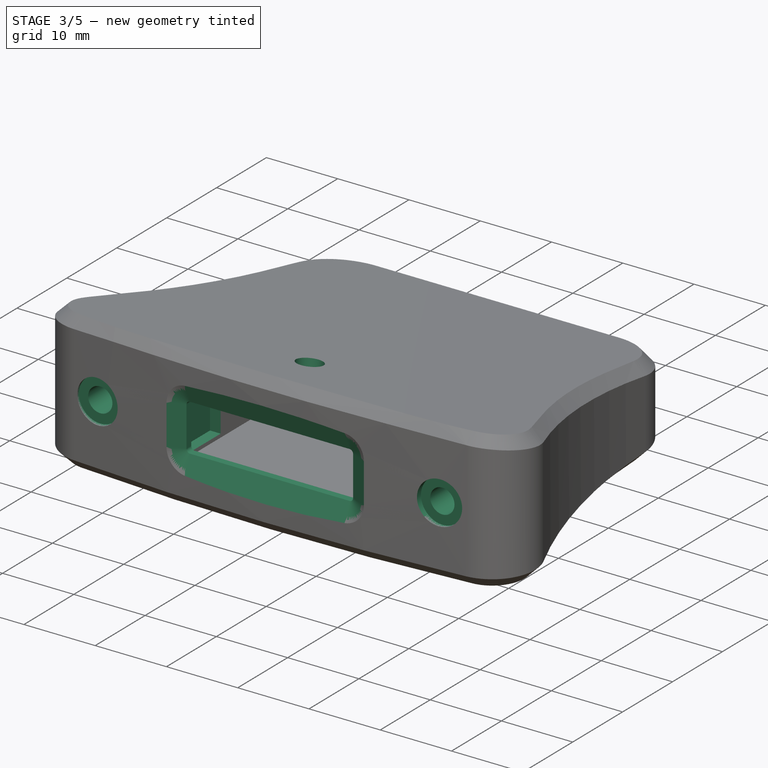
[diagram: stage 3 of 5 — iso view after this stage's code; geometry added in this stage tinted green]
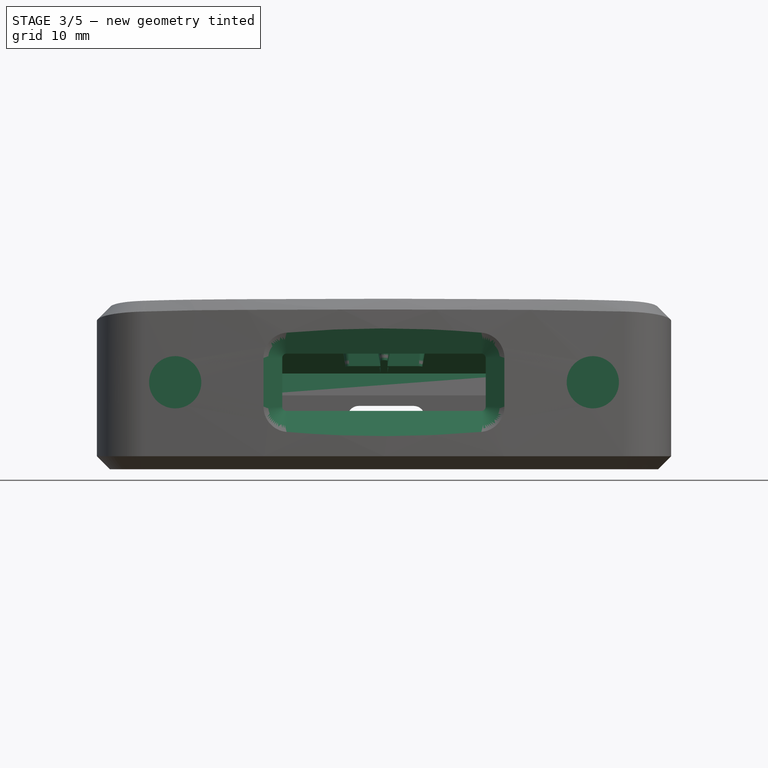
[diagram: stage 3 of 5 — front view after this stage's code; geometry added in this stage tinted green]
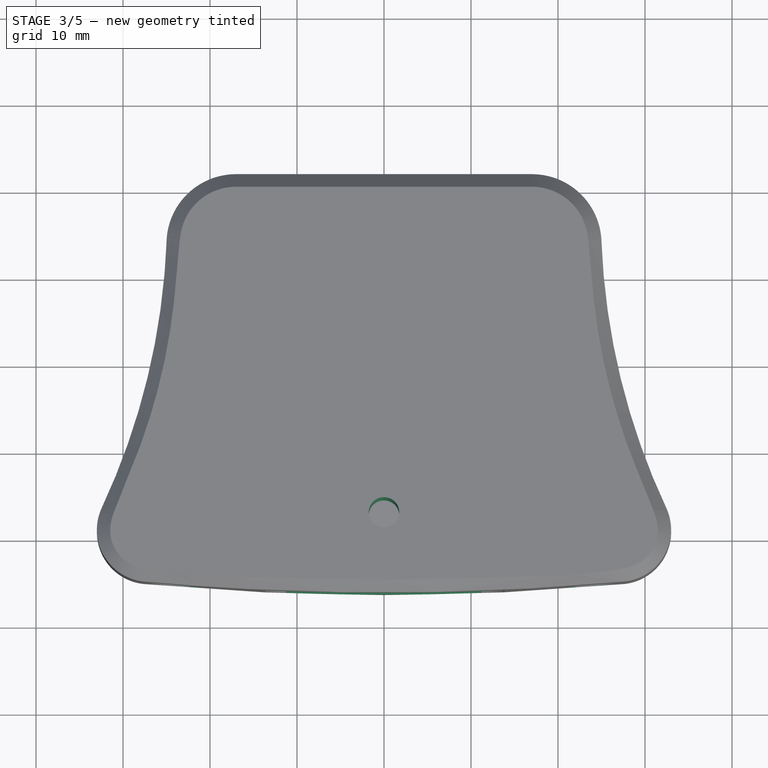
[diagram: stage 3 of 5 — top view after this stage's code; geometry added in this stage tinted green]
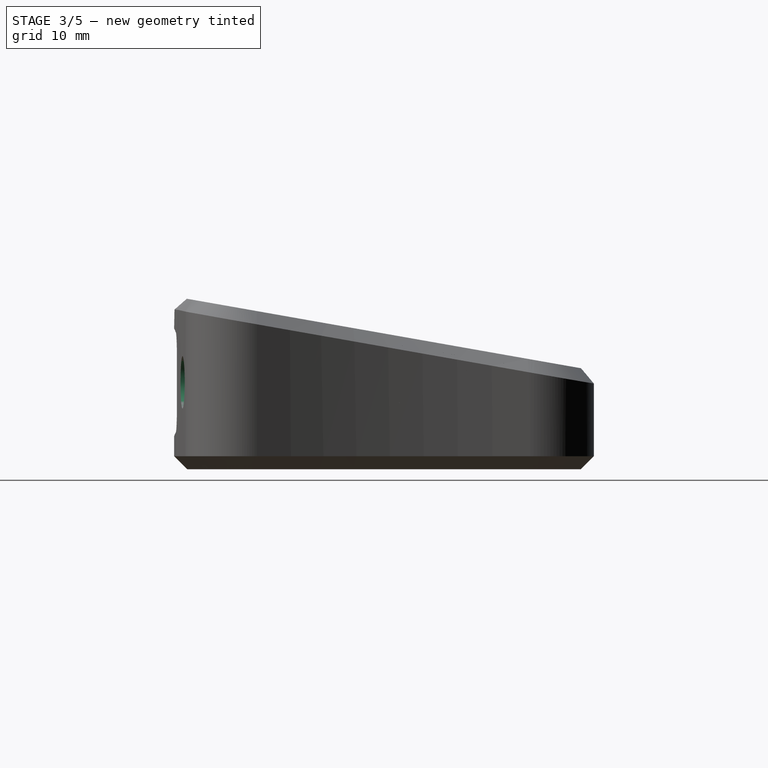
[diagram: stage 3 of 5 — right view after this stage's code; geometry added in this stage tinted green]
FEATURE [Part::FeaturePython] Screw002  label="M3x8-Screw"  # Fasteners workbench fastener (typed FeaturePython)
  Placement = pos=(0,-17,18.2) rot=(-1,0,0;0.174533rad)
  diameter = 1
  invert = false
  leftHanded = false
  length = 1
  lengthCustom = 8
  matchOuter = false
  offset = 0
  thread = false
  type = 51
FEATURE [PartDesign::Pocket] Pocket012  label="HS Led grid cavity"
  BaseFeature = -> Pocket016
  Direction = (-1,2e-16,-3e-16)
  Length = 35
  Length2 = 5
  Midplane = true
  Profile = -> Sketch050
  ReferenceAxis = -> Sketch050 [N_Axis]
  Type = 0
FEATURE [PartDesign::Plane] DatumPlane003  label="hs pln top of led grid cavity"
  Length = 78.4867
  MapMode = 13
  Placement = pos=(5.83333,7.68338,12.8612) rot=(0,0.087156,0.996195;3.14159rad)
  ResizeMode = 0
  Support = -> [Pocket012]
  Width = 71.6414
FEATURE [Sketcher::SketchObject] Sketch052  label="hs led cross top"
  ExternalGeometry = -> [Binder034]
  FullyConstrained = true
  MapMode = 5
  Placement = pos=(5.83333,7.68338,12.8612) rot=(0,0.087156,0.996195;3.14159rad)
  Support = -> [DatumPlane003]
  sketch-geometry (14):
    g0: ArcOfCircle CenterX=5.83333 CenterY=1.11539 CenterZ=0 NormalX=0 NormalY=0 NormalZ=1 AngleXU=0 Radius=0.75 StartAngle=3.14159 EndAngle=6.28319
    g1: ArcOfCircle CenterX=5.83333 CenterY=9.11539 CenterZ=0 NormalX=0 NormalY=0 NormalZ=1 AngleXU=0 Radius=0.75 StartAngle=-9e-16 EndAngle=3.14159
    g2: LineSegment StartX=6.58333 StartY=1.11539 StartZ=0 EndX=6.58333 EndY=4.36539 EndZ=0
    g3: LineSegment StartX=5.08333 StartY=9.11539 StartZ=0 EndX=5.08333 EndY=5.86539 EndZ=0
    g4: ArcOfCircle CenterX=9.83333 CenterY=5.11539 CenterZ=0 NormalX=0 NormalY=0 NormalZ=1 AngleXU=0 Radius=0.75 StartAngle=4.71239 EndAngle=7.85398
    g5: ArcOfCircle CenterX=1.83333 CenterY=5.11539 CenterZ=0 NormalX=0 NormalY=0 NormalZ=1 AngleXU=0 Radius=0.75 StartAngle=1.5708 EndAngle=4.71239
    g6: LineSegment StartX=9.83333 StartY=5.86539 StartZ=0 EndX=6.58333 EndY=5.86539 EndZ=0
    g7: LineSegment StartX=1.83333 StartY=4.36539 StartZ=0 EndX=5.08333 EndY=4.36539 EndZ=0
    g8: LineSegment StartX=5.08333 StartY=5.86539 StartZ=0 EndX=1.83333 EndY=5.86539 EndZ=0
    g9: LineSegment StartX=6.58333 StartY=5.86539 StartZ=0 EndX=6.58333 EndY=9.11539 EndZ=0
    g10: LineSegment StartX=5.08333 StartY=4.36539 StartZ=0 EndX=5.08333 EndY=1.11539 EndZ=0
    g11: LineSegment StartX=6.58333 StartY=4.36539 StartZ=0 EndX=9.83333 EndY=4.36539 EndZ=0
    g12: LineSegment StartX=5.83333 StartY=20.4154 StartZ=0 EndX=5.83333 EndY=-10.1846 EndZ=0
    g13: LineSegment StartX=21.1333 StartY=5.11539 StartZ=0 EndX=-9.46667 EndY=5.11539 EndZ=0
  constraints (37):
    c: Tangent(g0,g2) = -1.5708
    c: Tangent(g1,g3) = -1.5708
    c: Equal(g0,g1)
    c: Tangent(g4,g6) = -1.5708
    c: Tangent(g5,g7) = -1.5708
    c: Equal(g4,g5)
    c: Coincident(g9,g6)
    c: Coincident(g3,g8)
    c: Coincident(g7,g10)
    c: Coincident(g2,g11)
    c: Diameter(g5) = 1.5
    c: Horizontal(g7)
    c: Horizontal(g8)
    c: Horizontal(g6)
    c: Horizontal(g11)
    c: Equal(g5,g0)
    c: Vertical(g3)
    c: Vertical(g10)
    c: Vertical(g2)
    c: Vertical(g9)
    c: Equal(g7,g10)
    c: DistanceX(g5,g4) = 8
    c: Tangent(g0,g10) = -1.5708
    c: Tangent(g5,g8) = -1.5708
    c: Tangent(g1,g9) = -1.5708
    c: Tangent(g4,g11) = -1.5708
    c: PointOnObject(g12,g-4)
    c: PointOnObject(g12,g-3)
    c: PointOnObject(g13,g-6)
    c: PointOnObject(g13,g-5)
    c: Symmetric(g-6,g-5,g12)
    c: Symmetric(g-6,g-6,g13)
    c: PointOnObject(g4,g13)
    c: Tangent(g0,g12) = -1.5708
    c: PointOnObject(g1,g12)
    c: Symmetric(g4,g5,g12)
    c: Equal(g6,g9)
FEATURE [Sketcher::SketchObject] Sketch053  label="hs led cross bottom"
  AttachmentOffset = pos=(0,0,-2) rot=(0,0,1;0rad)
  ExternalGeometry = -> [Sketch052]
  FullyConstrained = true
  MapMode = 5
  Placement = pos=(5.83333,7.33609,10.8916) rot=(0,0.087156,0.996195;3.14159rad)
  Support = -> [DatumPlane003]
  sketch-geometry (12):
    g0: ArcOfCircle CenterX=1.83333 CenterY=5.11539 CenterZ=0 NormalX=0 NormalY=0 NormalZ=1 AngleXU=0 Radius=0.4 StartAngle=1.5708 EndAngle=4.71239
    g1: ArcOfCircle CenterX=9.83333 CenterY=5.11539 CenterZ=0 NormalX=0 NormalY=0 NormalZ=1 AngleXU=0 Radius=0.4 StartAngle=4.71239 EndAngle=7.85398
    g2: LineSegment StartX=1.83333 StartY=4.71539 StartZ=0 EndX=5.43333 EndY=4.71539 EndZ=0
    g3: LineSegment StartX=9.83333 StartY=5.51539 StartZ=0 EndX=6.23333 EndY=5.51539 EndZ=0
    g4: ArcOfCircle CenterX=5.83333 CenterY=1.11539 CenterZ=0 NormalX=0 NormalY=0 NormalZ=1 AngleXU=0 Radius=0.4 StartAngle=3.14159 EndAngle=6.28319
    g5: ArcOfCircle CenterX=5.83333 CenterY=9.11539 CenterZ=0 NormalX=0 NormalY=0 NormalZ=1 AngleXU=0 Radius=0.4 StartAngle=-1.8e-15 EndAngle=3.14159
    g6: LineSegment StartX=6.23333 StartY=1.11539 StartZ=0 EndX=6.23333 EndY=4.71539 EndZ=0
    g7: LineSegment StartX=5.43333 StartY=9.11539 StartZ=0 EndX=5.43333 EndY=5.51539 EndZ=0
    g8: LineSegment StartX=6.23333 StartY=5.51539 StartZ=0 EndX=6.23333 EndY=9.11539 EndZ=0
    g9: LineSegment StartX=5.43333 StartY=5.51539 StartZ=0 EndX=1.83333 EndY=5.51539 EndZ=0
    g10: LineSegment StartX=5.43333 StartY=4.71539 StartZ=0 EndX=5.43333 EndY=1.11539 EndZ=0
    g11: LineSegment StartX=6.23333 StartY=4.71539 StartZ=0 EndX=9.83333 EndY=4.71539 EndZ=0
  constraints (28):
    c: Tangent(g0,g2) = -1.5708
    c: Tangent(g1,g3) = -1.5708
    c: Equal(g0,g1)
    c: Coincident(g0,g-5)
    c: Coincident(g1,g-6)
    c: Tangent(g4,g6) = -1.5708
    c: Tangent(g5,g7) = -1.5708
    c: Equal(g4,g5)
    c: Coincident(g4,g-4)
    c: Coincident(g5,g-3)
    c: Equal(g5,g1)
    c: Diameter(g5) = 0.8
    c: Coincident(g3,g8)
    c: Coincident(g7,g9)
    c: Coincident(g2,g10)
    c: Coincident(g11,g6)
    c: Tangent(g1,g11) = -1.5708
    c: Tangent(g0,g9) = -1.5708
    c: Tangent(g4,g10) = -1.5708
    c: Tangent(g5,g8) = -1.5708
    c: Horizontal(g3)
    c: Horizontal(g11)
    c: Horizontal(g2)
    c: Horizontal(g9)
    c: Vertical(g7)
    c: Vertical(g8)
    c: Vertical(g6)
    c: Vertical(g10)
FEATURE [PartDesign::AdditiveLoft] AdditiveLoft  label="HS Led grid cross"
  BaseFeature = -> Pocket012
  Closed = false
  Profile = -> Sketch052
  Ruled = false
  Sections = -> [Sketch053]
FEATURE [PartDesign::Pocket] Pocket001  label="HS Front nut cavity"
  BaseFeature = -> AdditiveLoft
  Direction = (0,1,2e-16)
  Length = 4
  Length2 = 5
  Profile = -> Sketch018
  ReferenceAxis = -> Sketch018 [N_Axis]
  Type = 0
FEATURE [PartDesign::Groove] Groove  label="HS Screw hole R"
  Angle = 360
  Axis = (0,1.7,0)
  Base = (24,-15.7,10)
  BaseFeature = -> Pocket001
  Profile = -> Sketch047
  ReferenceAxis = -> Sketch047 [Axis0]
FEATURE [PartDesign::Mirrored] Mirrored  label="HS Screw hole L"
  BaseFeature = -> Groove
  MirrorPlane = -> YZ_Plane006
  Originals = -> [Groove]
FEATURE [PartDesign::Pocket] Pocket002  label="HS Pocket for OLED"
  BaseFeature = -> Mirrored
  Direction = (0,0,-1)
  Length = 12.5
  Length2 = 5
  Profile = -> Sketch019
  ReferenceAxis = -> Sketch019 [N_Axis]
  Reversed = true
  Type = 0
FEATURE [PartDesign::SubtractivePipe] SubtractivePipe  label="HS Cut OLED wires"
  AuxilleryCurvelinear = true
  AuxillerySpineTangent = false
  BaseFeature = -> Pocket002
  Binormal = (0,0,0)
  Mode = 0
  Profile = -> Sketch036
  Spine = -> Sketch037
  SpineTangent = false
  Transformation = 0
  Transition = 0
FEATURE [PartDesign::SubShapeBinder] Binder038  label="hs ref top screw"
  BindCopyOnChange = 0
  BindMode = 0
  ClaimChildren = false
  Context = -> Body005 [Binder038.]
  Fuse = false
  MakeFace = true
  OffsetFill = false
  OffsetIntersection = false
  OffsetJoinType = 0
  OffsetOpenResult = false
  PartialLoad = false
  Relative = true
  Support = -> [Screw002[Edge27]]
  _Version = 2
FEATURE [Sketcher::SketchObject] Sketch072  label="hs top screw hole"
  ExternalGeometry = -> [Binder038]
  FullyConstrained = true
  MapMode = 5
  Placement = pos=(5.83333,7.68338,12.8612) rot=(0,0.087156,0.996195;3.14159rad)
  Support = -> [DatumPlane003]
  sketch-geometry (1):
    g0: Circle CenterX=5.83333 CenterY=25.2355 CenterZ=0 NormalX=0 NormalY=0 NormalZ=1 AngleXU=0 Radius=1.75
  constraints (2):
    c: Diameter(g0) = 3.5
    c: Coincident(g-3,g0)
FEATURE [Sketcher::SketchObject] Sketch073  label="hs rim top nut"
  AttachmentOffset = pos=(0,0,-1) rot=(0,0,1;0rad)
  ExternalGeometry = -> [Sketch072]
  FullyConstrained = true
  MapMode = 5
  Placement = pos=(5.83333,7.50973,11.8764) rot=(0,0.087156,0.996195;3.14159rad)
  Support = -> [DatumPlane003]
  sketch-geometry (21):
    g0: LineSegment StartX=3.49458 StartY=27.0346 StartZ=0 EndX=4.14458 EndY=28.1605 EndZ=0
    g1: LineSegment StartX=4.14458 StartY=28.1605 StartZ=0 EndX=7.52208 EndY=28.1605 EndZ=0
    g2: LineSegment StartX=7.52208 StartY=28.1605 StartZ=0 EndX=8.17208 EndY=27.0346 EndZ=0
    g3: LineSegment StartX=9.03811 StartY=27.5346 StartZ=0 EndX=8.38811 EndY=28.6605 EndZ=0
    g4: LineSegment StartX=7.52208 StartY=29.1605 StartZ=0 EndX=4.14458 EndY=29.1605 EndZ=0
    g5: LineSegment StartX=3.27856 StartY=28.6605 StartZ=0 EndX=2.62856 EndY=27.5346 EndZ=0
    g6: ArcOfCircle CenterX=3.06157 CenterY=27.2846 CenterZ=0 NormalX=0 NormalY=0 NormalZ=1 AngleXU=0 Radius=0.5 StartAngle=2.61799 EndAngle=5.75959
    g7: ArcOfCircle CenterX=8.6051 CenterY=27.2846 CenterZ=0 NormalX=0 NormalY=0 NormalZ=1 AngleXU=0 Radius=0.5 StartAngle=3.66519 EndAngle=6.80678
    g8: ArcOfCircle CenterX=4.14458 CenterY=28.1605 CenterZ=0 NormalX=0 NormalY=0 NormalZ=1 AngleXU=0 Radius=1 StartAngle=1.5708 EndAngle=2.61799
    g9: ArcOfCircle CenterX=7.52208 CenterY=28.1605 CenterZ=0 NormalX=0 NormalY=0 NormalZ=1 AngleXU=0 Radius=1 StartAngle=0.523599 EndAngle=1.5708
    g10: Circle CenterX=5.83333 CenterY=25.2355 CenterZ=0 NormalX=0 NormalY=0 NormalZ=1 AngleXU=0 Radius=2.925
    g11: LineSegment StartX=3.49458 StartY=23.4363 StartZ=0 EndX=4.14458 EndY=22.3105 EndZ=0
    g12: LineSegment StartX=4.14458 StartY=22.3105 StartZ=0 EndX=7.52208 EndY=22.3105 EndZ=0
    g13: LineSegment StartX=7.52208 StartY=22.3105 StartZ=0 EndX=8.17208 EndY=23.4363 EndZ=0
    g14: LineSegment StartX=9.03811 StartY=22.9363 StartZ=0 EndX=8.38811 EndY=21.8105 EndZ=0
    g15: LineSegment StartX=7.52208 StartY=21.3105 StartZ=0 EndX=4.14458 EndY=21.3105 EndZ=0
    g16: LineSegment StartX=3.27856 StartY=21.8105 StartZ=0 EndX=2.62856 EndY=22.9363 EndZ=0
    g17: ArcOfCircle CenterX=3.06157 CenterY=23.1863 CenterZ=0 NormalX=0 NormalY=0 NormalZ=1 AngleXU=0 Radius=0.5 StartAngle=0.523599 EndAngle=3.66519
    g18: ArcOfCircle CenterX=8.6051 CenterY=23.1863 CenterZ=0 NormalX=0 NormalY=0 NormalZ=1 AngleXU=0 Radius=0.5 StartAngle=5.75959 EndAngle=8.90118
    g19: ArcOfCircle CenterX=4.14458 CenterY=22.3105 CenterZ=0 NormalX=0 NormalY=0 NormalZ=1 AngleXU=0 Radius=1 StartAngle=3.66519 EndAngle=4.71239
    g20: ArcOfCircle CenterX=7.52208 CenterY=22.3105 CenterZ=0 NormalX=0 NormalY=0 NormalZ=1 AngleXU=0 Radius=1 StartAngle=4.71239 EndAngle=5.75959
  constraints (50):
    c: Coincident(g0,g1)
    c: Horizontal(g1)
    c: Coincident(g1,g2)
    c: Horizontal(g4)
    c: Tangent(g3,g7) = -1.5708
    c: Tangent(g2,g7) = -1.5708
    c: Parallel(g2,g3)
    c: Tangent(g0,g6) = -1.5708
    c: Tangent(g5,g6) = -1.5708
    c: Equal(g6,g7)
    c: Diameter(g6) = 1
    c: Tangent(g4,g8) = -1.5708
    c: Tangent(g5,g8) = -1.5708
    c: Tangent(g4,g9) = -1.5708
    c: Tangent(g3,g9) = -1.5708
    c: Coincident(g1,g9)
    c: Coincident(g0,g8)
    c: Angle(g0,g1) = 2.0944
    c: Angle(g1,g2) = 2.0944
    c: Coincident(g10,g-3)
    c: Tangent(g1,g10)
    c: Tangent(g10,g0)
    c: Tangent(g2,g10)
    c: Diameter(g10) = 5.85
    c: Distance(g0) = 1.3
    c: Equal(g0,g2)
    c: Coincident(g11,g12)
    c: Horizontal(g12)
    c: Coincident(g12,g13)
    c: Horizontal(g15)
    c: Tangent(g14,g18) = 1.5708
    c: Tangent(g13,g18) = 1.5708
    c: Parallel(g13,g14)
    c: Tangent(g11,g17) = 1.5708
    c: Tangent(g16,g17) = 1.5708
    c: Equal(g17,g18)
    c: Tangent(g15,g19) = 1.5708
    c: Tangent(g16,g19) = 1.5708
    c: Tangent(g15,g20) = 1.5708
    c: Tangent(g14,g20) = 1.5708
    c: Coincident(g12,g20)
    c: Coincident(g11,g19)
    c: Angle(g11,g12) = -2.0944
    c: Angle(g12,g13) = -2.0944
    c: Equal(g11,g13)
    c: Tangent(g11,g10)
    c: Tangent(g13,g10)
    c: Tangent(g12,g10)
    c: Equal(g11,g0)
    c: Equal(g17,g6)
FEATURE [Sketcher::SketchObject] Sketch074  label="hs hexagon pocket nut"
  AttachmentOffset = pos=(0,0,-1) rot=(0,0,1;0rad)
  ExternalGeometry = -> [Sketch073,Sketch072]
  FullyConstrained = true
  MapMode = 5
  Placement = pos=(5.83333,7.50973,11.8764) rot=(0,0.087156,0.996195;3.14159rad)
  Support = -> [DatumPlane003]
  sketch-geometry (11):
    g0: LineSegment StartX=7.52208 StartY=28.1605 StartZ=0 EndX=4.14458 EndY=28.1605 EndZ=0
    g1: LineSegment StartX=4.14458 StartY=28.1605 StartZ=0 EndX=3.03318 EndY=26.2355 EndZ=0
    g2: LineSegment StartX=3.03318 StartY=24.2355 StartZ=0 EndX=4.14458 EndY=22.3105 EndZ=0
    g3: LineSegment StartX=4.14458 StartY=22.3105 StartZ=0 EndX=7.52208 EndY=22.3105 EndZ=0
    g4: LineSegment StartX=7.52208 StartY=22.3105 StartZ=0 EndX=9.21083 EndY=25.2355 EndZ=0
    g5: LineSegment StartX=9.21083 StartY=25.2355 StartZ=0 EndX=7.52208 EndY=28.1605 EndZ=0
    g6: Circle CenterX=5.83333 CenterY=25.2355 CenterZ=0 NormalX=0 NormalY=0 NormalZ=1 AngleXU=0 Radius=3.3775
    g7: ArcOfCircle CenterX=-7.54417 CenterY=25.2355 CenterZ=0 NormalX=0 NormalY=0 NormalZ=1 AngleXU=0 Radius=1 StartAngle=1.5708 EndAngle=4.71239
    g8: LineSegment StartX=3.03318 StartY=26.2355 StartZ=0 EndX=-7.54417 EndY=26.2355 EndZ=0
    g9: LineSegment StartX=-7.54417 StartY=24.2355 StartZ=0 EndX=3.03318 EndY=24.2355 EndZ=0
    g10: GeomPoint X=2.45583 Y=25.2355 Z=0
  constraints (28):
    c: Coincident(g0,g1)
    c: Coincident(g2,g3)
    c: Coincident(g3,g4)
    c: Coincident(g4,g5)
    c: Coincident(g5,g0)
    c: Equal(g0,g3)
    c: Equal(g0,g4)
    c: Equal(g0,g5)
    c: PointOnObject(g0,g6)
    c: PointOnObject(g2,g6)
    c: PointOnObject(g3,g6)
    c: PointOnObject(g4,g6)
    c: PointOnObject(g5,g6)
    c: Coincident(g6,g-4)
    c: Coincident(g0,g-3)
    c: Tangent(g8,g7) = -1.5708
    c: Tangent(g7,g9) = -1.5708
    c: Horizontal(g8)
    c: Diameter(g7) = 2
    c: Coincident(g1,g8)
    c: Coincident(g9,g2)
    c: PointOnObject(g10,g2)
    c: PointOnObject(g10,g1)
    c: Symmetric(g10,g4,g6)
    c: Horizontal(g9)
    c: Horizontal(g3)
    c: Horizontal(g7,g10)
    c: DistanceX(g7,g10) = 10
FEATURE [Sketcher::SketchObject] Sketch078  label="hs viewport middle"
  AttachmentOffset = pos=(0,0,25) rot=(0,0,1;0rad)
  ExternalGeometry = -> [Binder015]
  FullyConstrained = true
  MapMode = 5
  Placement = pos=(0,-25,-5.6e-15) rot=(1,0,0;1.5708rad)
  Support = -> [XZ_Plane006]
  sketch-geometry (10):
    g0: ArcOfCircle CenterX=-11.1956 CenterY=12.792 CenterZ=0 NormalX=0 NormalY=0 NormalZ=1 AngleXU=0 Radius=0.5 StartAngle=1.5708 EndAngle=3.14159
    g1: LineSegment StartX=-11.1956 StartY=13.292 StartZ=0 EndX=11.1884 EndY=13.292 EndZ=0
    g2: ArcOfCircle CenterX=11.1884 CenterY=12.792 CenterZ=0 NormalX=0 NormalY=0 NormalZ=1 AngleXU=0 Radius=0.5 StartAngle=-1.8e-15 EndAngle=1.5708
    g3: LineSegment StartX=11.6884 StartY=12.792 StartZ=0 EndX=11.6884 EndY=7.20803 EndZ=0
    g4: ArcOfCircle CenterX=11.1884 CenterY=7.20803 CenterZ=0 NormalX=0 NormalY=0 NormalZ=1 AngleXU=0 Radius=0.5 StartAngle=4.71239 EndAngle=6.28319
    g5: LineSegment StartX=11.1884 StartY=6.70803 StartZ=0 EndX=-11.1956 EndY=6.70803 EndZ=0
    g6: ArcOfCircle CenterX=-11.1956 CenterY=7.20803 CenterZ=0 NormalX=0 NormalY=0 NormalZ=1 AngleXU=0 Radius=0.5 StartAngle=3.14159 EndAngle=4.71239
    g7: LineSegment StartX=-11.6956 StartY=7.20803 StartZ=0 EndX=-11.6956 EndY=12.792 EndZ=0
    g8: GeomPoint X=-11.6956 Y=13.292 Z=0
    g9: GeomPoint X=11.6884 Y=6.70803 Z=0
  constraints (22):
    c: Tangent(g0,g1) = 1.5708
    c: Tangent(g1,g2) = 1.5708
    c: Tangent(g2,g3) = 1.5708
    c: Tangent(g3,g4) = 1.5708
    c: Tangent(g4,g5) = 1.5708
    c: Tangent(g5,g6) = 1.5708
    c: Tangent(g6,g7) = 1.5708
    c: Tangent(g7,g0) = 1.5708
    c: Horizontal(g1)
    c: Horizontal(g5)
    c: Vertical(g3)
    c: Vertical(g7)
    c: Equal(g0,g2)
    c: Equal(g2,g4)
    c: Equal(g4,g6)
    c: PointOnObject(g8,g1)
    c: PointOnObject(g8,g7)
    c: PointOnObject(g9,g3)
    c: PointOnObject(g9,g5)
    c: Coincident(g2,g-4)
    c: Coincident(g6,g-3)
    c: Radius(g2) = 0.5
FEATURE [PartDesign::SubtractiveLoft] SubtractiveLoft  label="HS OLED viewport"
  BaseFeature = -> SubtractivePipe
  Closed = false
  Profile = -> Sketch038
  Ruled = true
  Sections = -> [Sketch078,Sketch039]
FEATURE [PartDesign::Pocket] Pocket010  label="HS USB port"
  BaseFeature = -> SubtractiveLoft
  Direction = (0,1,2e-16)
  Length = 5
  Length2 = 5
  Profile = -> Sketch046
  ReferenceAxis = -> Sketch046 [N_Axis]
  Type = 1
FEATURE [PartDesign::Pocket] Pocket013  label="HS Cavity near OLED"
  BaseFeature = -> Pocket010
  Direction = (0,0,-1)
  Length = 12.5
  Length2 = 5
  Profile = -> Sketch051
  ReferenceAxis = -> Sketch051 [N_Axis]
  Reversed = true
  Type = 0
FEATURE [PartDesign::Pocket] Pocket018  label="HS Top screw hole"
  BaseFeature = -> Pocket013
  Direction = (3e-16,-0.173648,-0.984808)
  Length = 5
  Length2 = 5
  Midplane = true
  Profile = -> Sketch072
  ReferenceAxis = -> Sketch072 [N_Axis]
  Type = 0
FEATURE [PartDesign::Pad] Pad015  label="HS Rim top nut"
  BaseFeature = -> Pocket018
  Direction = (-3e-16,0.173648,0.984808)
  Length = 2
  Length2 = 10
  Profile = -> Sketch073
  ReferenceAxis = -> Sketch073 [N_Axis]
  Reversed = true
  Type = 0
FEATURE [PartDesign::Pocket] Pocket019  label="HS Hexagon pocket nut"
  BaseFeature = -> Pad015
  Direction = (3e-16,-0.173648,-0.984808)
  Length = 5
  Length2 = 5
  Profile = -> Sketch074
  ReferenceAxis = -> Sketch074 [N_Axis]
  Type = 0
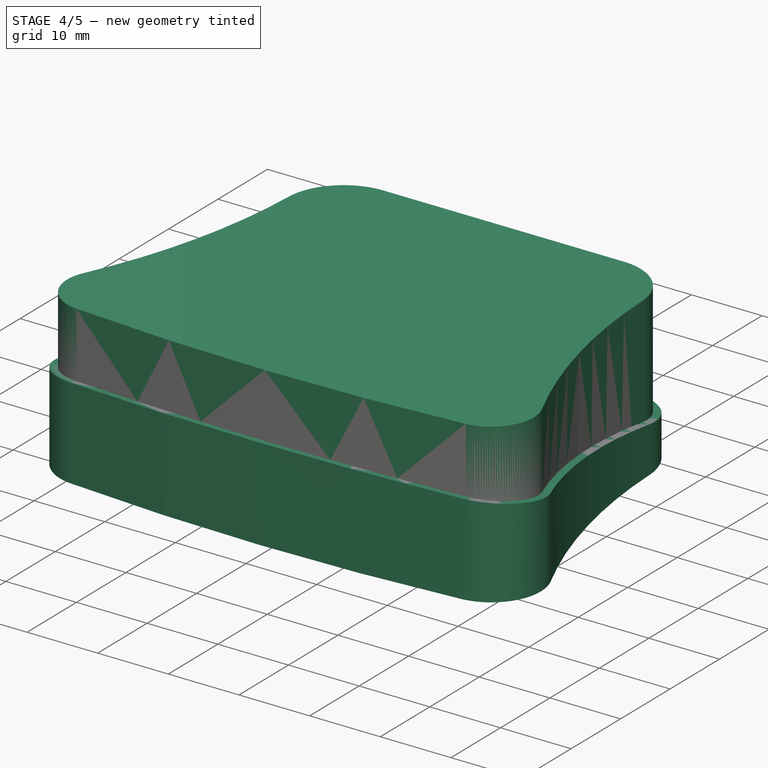
[diagram: stage 4 of 5 — iso view after this stage's code; geometry added in this stage tinted green]
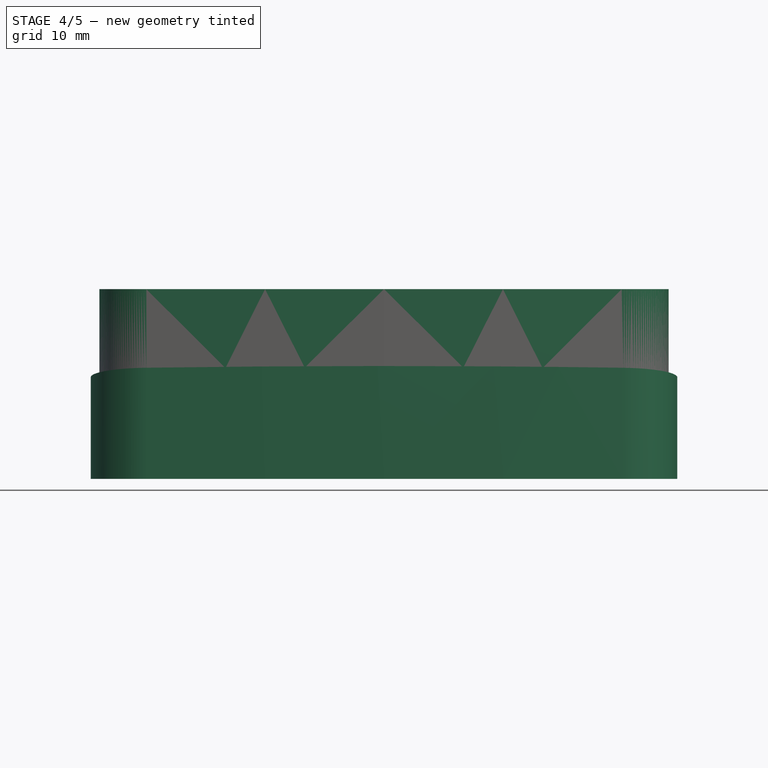
[diagram: stage 4 of 5 — front view after this stage's code; geometry added in this stage tinted green]
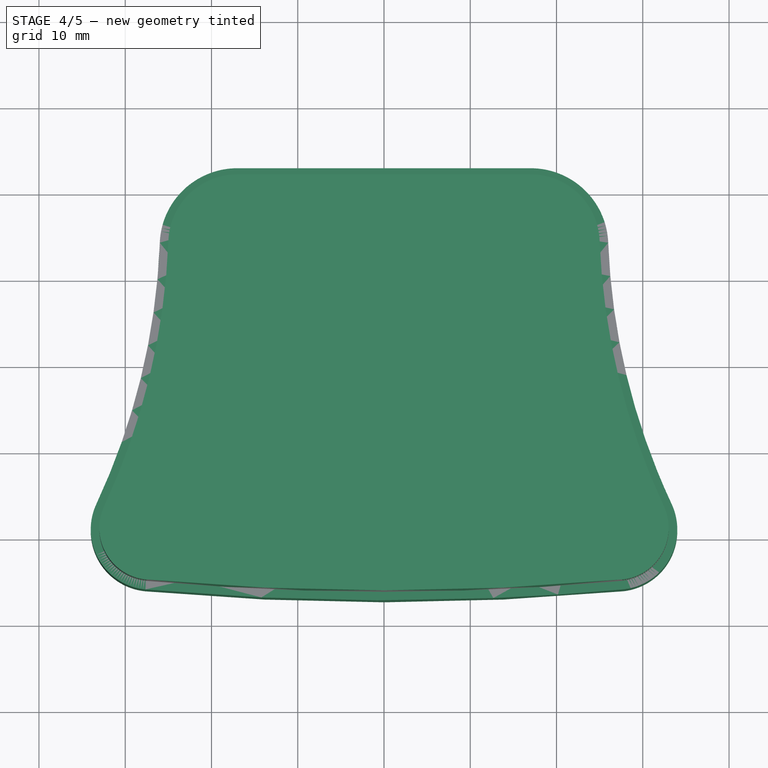
[diagram: stage 4 of 5 — top view after this stage's code; geometry added in this stage tinted green]
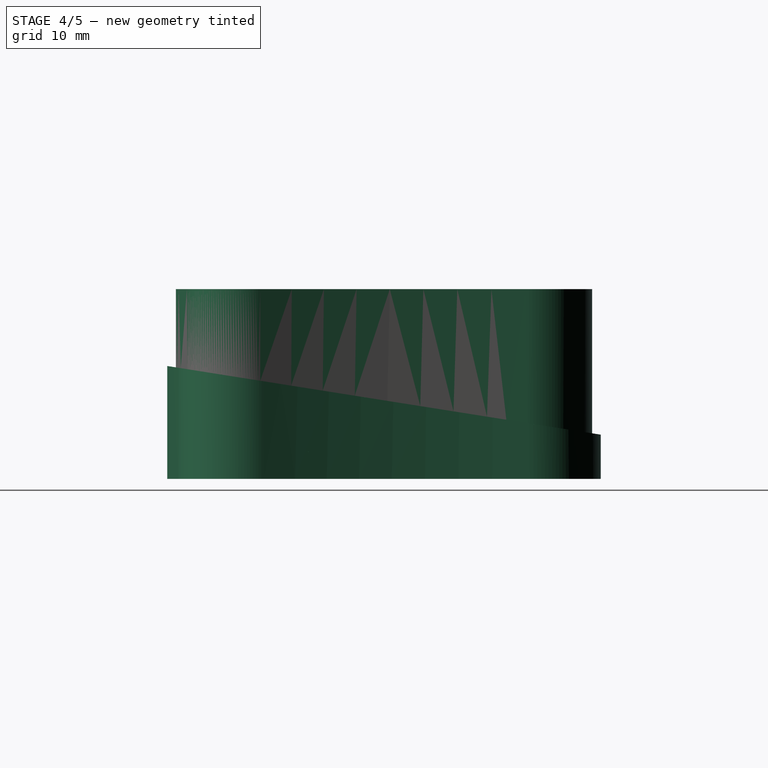
[diagram: stage 4 of 5 — right view after this stage's code; geometry added in this stage tinted green]
FEATURE [PartDesign::SubShapeBinder] Binder007  label="hs ref esp groundplane"
  BindCopyOnChange = 0
  BindMode = 0
  ClaimChildren = false
  Context = -> Body005 [Binder007.]
  Fuse = false
  MakeFace = true
  OffsetFill = false
  OffsetIntersection = false
  OffsetJoinType = 0
  OffsetOpenResult = false
  PartialLoad = false
  Relative = true
  Support = -> [Body004[Sketch013.]]
  _Version = 2
FEATURE [Sketcher::SketchObject] Sketch017  label="hs esp cavity"
  AttachmentOffset = pos=(0,0,2.5) rot=(0,0,1;0rad)
  ExternalGeometry = -> [Binder007]
  FullyConstrained = true
  MapMode = 5
  Placement = pos=(0,0,2.5) rot=(0,0,1;0rad)
  Support = -> [XY_Plane006]
  sketch-geometry (12):
    g0: LineSegment StartX=-15.5 StartY=20 StartZ=0 EndX=15.5 EndY=20 EndZ=0
    g1: LineSegment StartX=16 StartY=19.5 StartZ=0 EndX=16 EndY=-17.3787 EndZ=0
    g2: LineSegment StartX=13.3787 StartY=-20 StartZ=0 EndX=-13.3787 EndY=-20 EndZ=0
    g3: LineSegment StartX=-16 StartY=-17.3787 StartZ=0 EndX=-16 EndY=19.5 EndZ=0
    g4: LineSegment StartX=-15.8536 StartY=-17.7322 StartZ=0 EndX=-13.7322 EndY=-19.8536 EndZ=0
    g5: LineSegment StartX=15.8536 StartY=-17.7322 StartZ=0 EndX=13.7322 EndY=-19.8536 EndZ=0
    g6: ArcOfCircle CenterX=-15.5 CenterY=19.5 CenterZ=0 NormalX=0 NormalY=0 NormalZ=1 AngleXU=0 Radius=0.5 StartAngle=1.5708 EndAngle=3.14159
    g7: ArcOfCircle CenterX=-15.5 CenterY=-17.3787 CenterZ=0 NormalX=0 NormalY=0 NormalZ=1 AngleXU=0 Radius=0.5 StartAngle=3.14159 EndAngle=3.92699
    g8: ArcOfCircle CenterX=-13.3787 CenterY=-19.5 CenterZ=0 NormalX=0 NormalY=0 NormalZ=1 AngleXU=0 Radius=0.5 StartAngle=3.92699 EndAngle=4.71239
    g9: ArcOfCircle CenterX=13.3787 CenterY=-19.5 CenterZ=0 NormalX=0 NormalY=0 NormalZ=1 AngleXU=0 Radius=0.5 StartAngle=4.71239 EndAngle=5.49779
    g10: ArcOfCircle CenterX=15.5 CenterY=-17.3787 CenterZ=0 NormalX=0 NormalY=0 NormalZ=1 AngleXU=0 Radius=0.5 StartAngle=5.49779 EndAngle=6.28319
    g11: ArcOfCircle CenterX=15.5 CenterY=19.5 CenterZ=0 NormalX=0 NormalY=0 NormalZ=1 AngleXU=0 Radius=0.5 StartAngle=1.2e-15 EndAngle=1.5708
  constraints (25):
    c: Horizontal(g0)
    c: Horizontal(g2)
    c: Vertical(g1)
    c: Vertical(g3)
    c: Tangent(g0,g6) = 1.5708
    c: Tangent(g3,g6) = 1.5708
    c: Tangent(g4,g7) = -1.5708
    c: Tangent(g3,g7) = 1.5708
    c: Tangent(g4,g8) = -1.5708
    c: Tangent(g2,g8) = 1.5708
    c: Tangent(g5,g9) = 1.5708
    c: Tangent(g2,g9) = 1.5708
    c: Tangent(g5,g10) = 1.5708
    c: Tangent(g1,g10) = 1.5708
    c: Coincident(g10,g-5)
    c: Coincident(g9,g-5)
    c: Coincident(g8,g-4)
    c: Coincident(g7,g-4)
    c: Coincident(g6,g-3)
    c: Tangent(g1,g11) = 1.5708
    c: Tangent(g0,g11) = 1.5708
    c: Horizontal(g11,g-3)
    c: Radius(g10) = 0.5
    c: Equal(g10,g9)
    c: Equal(g8,g7)
FEATURE [PartDesign::SubShapeBinder] Binder008  label="hs ref nuts front"
  BindCopyOnChange = 0
  BindMode = 0
  ClaimChildren = false
  Context = -> Body005 [Binder008.]
  Fuse = false
  MakeFace = true
  OffsetFill = false
  OffsetIntersection = false
  OffsetJoinType = 0
  OffsetOpenResult = false
  PartialLoad = false
  Relative = true
  Support = -> [Body004[Sketch015.]]
  _Version = 2
FEATURE [Sketcher::SketchObject] Sketch018  label="hs front nut cavity"
  AttachmentOffset = pos=(0,0,20.5) rot=(0,0,1;0rad)
  ExternalGeometry = -> [Binder008]
  FullyConstrained = true
  MapMode = 5
  Placement = pos=(0,-20.5,-4.6e-15) rot=(1,0,0;1.5708rad)
  Support = -> [XZ_Plane006]
  sketch-geometry (24):
    g0: LineSegment StartX=-23.75 StartY=6.39156 StartZ=0 EndX=-21 EndY=7.97927 EndZ=0
    g1: LineSegment StartX=-20.75 StartY=8.41229 StartZ=0 EndX=-20.75 EndY=11.5877 EndZ=0
    g2: LineSegment StartX=-27.25 StartY=11.5877 StartZ=0 EndX=-27.25 EndY=8.41229 EndZ=0
    g3: LineSegment StartX=-27 StartY=7.97927 StartZ=0 EndX=-24.25 EndY=6.39156 EndZ=0
    g4: ArcOfCircle CenterX=-26.75 CenterY=8.41229 CenterZ=0 NormalX=0 NormalY=0 NormalZ=1 AngleXU=0 Radius=0.5 StartAngle=3.14159 EndAngle=4.18879
    g5: ArcOfCircle CenterX=-24 CenterY=6.82457 CenterZ=0 NormalX=0 NormalY=0 NormalZ=1 AngleXU=0 Radius=0.5 StartAngle=4.18879 EndAngle=5.23599
    g6: ArcOfCircle CenterX=-21.25 CenterY=8.41229 CenterZ=0 NormalX=0 NormalY=0 NormalZ=1 AngleXU=0 Radius=0.5 StartAngle=5.23599 EndAngle=6.28319
    g7: LineSegment StartX=20.75 StartY=11.5877 StartZ=0 EndX=20.75 EndY=8.41229 EndZ=0
    g8: LineSegment StartX=21 StartY=7.97927 StartZ=0 EndX=23.75 EndY=6.39156 EndZ=0
    g9: LineSegment StartX=24.25 StartY=6.39156 StartZ=0 EndX=27 EndY=7.97927 EndZ=0
    g10: LineSegment StartX=27.25 StartY=8.41229 StartZ=0 EndX=27.25 EndY=11.5877 EndZ=0
    g11: ArcOfCircle CenterX=21.25 CenterY=8.41229 CenterZ=0 NormalX=0 NormalY=0 NormalZ=1 AngleXU=0 Radius=0.5 StartAngle=3.14159 EndAngle=4.18879
    g12: ArcOfCircle CenterX=24 CenterY=6.82457 CenterZ=0 NormalX=0 NormalY=0 NormalZ=1 AngleXU=0 Radius=0.5 StartAngle=4.18879 EndAngle=5.23599
    g13: ArcOfCircle CenterX=26.75 CenterY=8.41229 CenterZ=0 NormalX=0 NormalY=0 NormalZ=1 AngleXU=0 Radius=0.5 StartAngle=5.23599 EndAngle=6.28319
    g14: LineSegment StartX=21 StartY=12.0207 StartZ=0 EndX=23.75 EndY=13.6084 EndZ=0
    g15: LineSegment StartX=24.25 StartY=13.6084 StartZ=0 EndX=27 EndY=12.0207 EndZ=0
    g16: ArcOfCircle CenterX=26.75 CenterY=11.5877 CenterZ=0 NormalX=0 NormalY=0 NormalZ=1 AngleXU=0 Radius=0.5 StartAngle=1e-15 EndAngle=1.0472
    g17: ArcOfCircle CenterX=24 CenterY=13.1754 CenterZ=0 NormalX=0 NormalY=0 NormalZ=1 AngleXU=0 Radius=0.5 StartAngle=1.0472 EndAngle=2.0944
    g18: ArcOfCircle CenterX=21.25 CenterY=11.5877 CenterZ=0 NormalX=0 NormalY=0 NormalZ=1 AngleXU=0 Radius=0.5 StartAngle=2.0944 EndAngle=3.14159
    g19: LineSegment StartX=-27 StartY=12.0207 StartZ=0 EndX=-24.25 EndY=13.6084 EndZ=0
    g20: LineSegment StartX=-23.75 StartY=13.6084 StartZ=0 EndX=-21 EndY=12.0207 EndZ=0
    g21: ArcOfCircle CenterX=-21.25 CenterY=11.5877 CenterZ=0 NormalX=0 NormalY=0 NormalZ=1 AngleXU=0 Radius=0.5 StartAngle=6e-16 EndAngle=1.0472
    g22: ArcOfCircle CenterX=-24 CenterY=13.1754 CenterZ=0 NormalX=0 NormalY=0 NormalZ=1 AngleXU=0 Radius=0.5 StartAngle=1.0472 EndAngle=2.0944
    g23: ArcOfCircle CenterX=-26.75 CenterY=11.5877 CenterZ=0 NormalX=0 NormalY=0 NormalZ=1 AngleXU=0 Radius=0.5 StartAngle=2.0944 EndAngle=3.14159
  constraints (48):
    c: Tangent(g2,g4) = -1.5708
    c: Tangent(g3,g4) = -1.5708
    c: Tangent(g0,g5) = -1.5708
    c: Tangent(g3,g5) = -1.5708
    c: Tangent(g0,g6) = -1.5708
    c: Tangent(g1,g6) = -1.5708
    c: Coincident(g6,g-4)
    c: Vertical(g1)
    c: Vertical(g2)
    c: Radius(g6) = 0.5
    c: Equal(g6,g5)
    c: Equal(g5,g4)
    c: Vertical(g7)
    c: Vertical(g10)
    c: Tangent(g7,g11) = -1.5708
    c: Tangent(g8,g11) = -1.5708
    c: Tangent(g8,g12) = -1.5708
    c: Tangent(g9,g12) = -1.5708
    c: Tangent(g9,g13) = -1.5708
    c: Tangent(g10,g13) = -1.5708
    c: Coincident(g13,g-5)
    c: Coincident(g12,g-5)
    c: Equal(g11,g12)
    c: Equal(g12,g13)
    c: Equal(g13,g6)
    c: Coincident(g11,g-7)
    c: Tangent(g10,g16) = -1.5708
    c: Tangent(g15,g16) = 1.5708
    c: Tangent(g15,g17) = 1.5708
    c: Tangent(g14,g17) = 1.5708
    c: Tangent(g14,g18) = 1.5708
    c: Tangent(g7,g18) = -1.5708
    c: Coincident(g18,g-7)
    c: Coincident(g17,g-6)
    c: Coincident(g16,g-6)
    c: Equal(g17,g13)
    c: Coincident(g4,g-8)
    c: Coincident(g5,g-4)
    c: Tangent(g1,g21) = -1.5708
    c: Tangent(g20,g21) = 1.5708
    c: Tangent(g20,g22) = 1.5708
    c: Tangent(g19,g22) = 1.5708
    c: Tangent(g19,g23) = 1.5708
    c: Tangent(g2,g23) = -1.5708
    c: Coincident(g23,g-8)
    c: Coincident(g22,g-9)
    c: Coincident(g21,g-9)
    c: Equal(g22,g6)
FEATURE [PartDesign::SubShapeBinder] Binder009  label="hs ref oled top"
  BindCopyOnChange = 0
  BindMode = 0
  ClaimChildren = false
  Context = -> Body005 [Binder009.]
  Fuse = false
  MakeFace = true
  OffsetFill = false
  OffsetIntersection = false
  OffsetJoinType = 0
  OffsetOpenResult = false
  PartialLoad = false
  Relative = true
  Support = -> [Body004[Sketch014.]]
  _Version = 2
FEATURE [Sketcher::SketchObject] Sketch019  label="hs pocket for OLED"
  AttachmentOffset = pos=(0,0,3) rot=(0,0,1;0rad)
  ExternalGeometry = -> [Binder009]
  FullyConstrained = true
  MapMode = 5
  Placement = pos=(0,0,3) rot=(0,0,1;0rad)
  Support = -> [XY_Plane006]
  sketch-geometry (14):
    g0: ArcOfCircle CenterX=-17.4338 CenterY=-22 CenterZ=0 NormalX=0 NormalY=0 NormalZ=1 AngleXU=0 Radius=0.25 StartAngle=1.5708 EndAngle=3.14159
    g1: LineSegment StartX=-17.4338 StartY=-21.75 StartZ=0 EndX=-15.4338 EndY=-21.75 EndZ=0
    g2: ArcOfCircle CenterX=20.5138 CenterY=-22 CenterZ=0 NormalX=0 NormalY=0 NormalZ=1 AngleXU=0 Radius=0.25 StartAngle=2.3e-15 EndAngle=1.5708
    g3: LineSegment StartX=20.7638 StartY=-22 StartZ=0 EndX=20.7638 EndY=-23.7894 EndZ=0
    g4: ArcOfCircle CenterX=20.5138 CenterY=-23.7894 CenterZ=0 NormalX=0 NormalY=0 NormalZ=1 AngleXU=0 Radius=0.25 StartAngle=4.71239 EndAngle=6.28319
    g5: LineSegment StartX=20.5138 StartY=-24.0394 StartZ=0 EndX=-17.4338 EndY=-24.0394 EndZ=0
    g6: ArcOfCircle CenterX=-17.4338 CenterY=-23.7894 CenterZ=0 NormalX=0 NormalY=0 NormalZ=1 AngleXU=0 Radius=0.25 StartAngle=3.14159 EndAngle=4.71239
    g7: LineSegment StartX=-17.6838 StartY=-23.7894 StartZ=0 EndX=-17.6838 EndY=-22 EndZ=0
    g8: GeomPoint X=-17.6838 Y=-21.75 Z=0
    g9: GeomPoint X=20.7638 Y=-24.0394 Z=0
    g10: LineSegment StartX=-15.4338 StartY=-20 StartZ=0 EndX=16.7638 EndY=-20 EndZ=0
    g11: LineSegment StartX=16.7638 StartY=-20 StartZ=0 EndX=16.7638 EndY=-21.75 EndZ=0
    g12: LineSegment StartX=-15.4338 StartY=-21.75 StartZ=0 EndX=-15.4338 EndY=-20 EndZ=0
    g13: LineSegment StartX=16.7638 StartY=-21.75 StartZ=0 EndX=20.5138 EndY=-21.75 EndZ=0
  constraints (33):
    c: Tangent(g0,g1) = 1.5708
    c: Tangent(g2,g3) = 1.5708
    c: Tangent(g3,g4) = 1.5708
    c: Tangent(g4,g5) = 1.5708
    c: Tangent(g5,g6) = 1.5708
    c: Tangent(g6,g7) = 1.5708
    c: Tangent(g7,g0) = 1.5708
    c: Horizontal(g1)
    c: Horizontal(g5)
    c: Vertical(g3)
    c: Vertical(g7)
    c: Equal(g0,g2)
    c: Equal(g4,g6)
    c: PointOnObject(g8,g1)
    c: PointOnObject(g8,g7)
    c: PointOnObject(g9,g3)
    c: PointOnObject(g9,g5)
    c: Coincident(g4,g-4)
    c: Coincident(g0,g-3)
    c: Radius(g2) = 0.25
    c: Coincident(g10,g11)
    c: Coincident(g12,g10)
    c: Horizontal(g10)
    c: Vertical(g11)
    c: Vertical(g12)
    c: Coincident(g13,g11)
    c: Coincident(g12,g1)
    c: DistanceY(g0,g10) = 2
    c: DistanceX(g10,g2) = 4
    c: Horizontal(g13)
    c: Tangent(g2,g13) = 1.5708
    c: Coincident(g2,g-4)
    c: DistanceX(g0,g10) = 2
FEATURE [Sketcher::SketchObject] Sketch020
  FullyConstrained = false
  MapMode = 5
  Placement = pos=(0,0,0) rot=(1,0,0;1.5708rad)
  Support = -> [XZ_Plane007]
  sketch-geometry (5):
    g0: LineSegment StartX=0 StartY=0 StartZ=0 EndX=0 EndY=-12 EndZ=0
    g1: LineSegment StartX=0 StartY=-12 StartZ=0 EndX=0.9 EndY=-1.05 EndZ=0
    g2: LineSegment StartX=0.9 StartY=-1.05 StartZ=0 EndX=1.85 EndY=-0.1 EndZ=0
    g3: LineSegment StartX=1.85 StartY=0 StartZ=0 EndX=0 EndY=0 EndZ=0
    g4: LineSegment StartX=1.85 StartY=-0.1 StartZ=0 EndX=1.85 EndY=0 EndZ=0
  constraints (14):
    c: Coincident(g-1,g0)
    c: Vertical(g0)
    c: Coincident(g0,g1)
    c: Coincident(g1,g2)
    c: Coincident(g3,g0)
    c: DistanceY(g0,g0) = 12
    c: Angle(g3,g2) = 0.785398
    c: DistanceX(g0,g1) = 0.9
    c: Horizontal(g3)
    c: Coincident(g4,g2)
    c: Vertical(g4)
    c: Coincident(g3,g4)
    c: DistanceX(g3) = 1.85
    c: DistanceY(g4,g4) = 0.1
FEATURE [PartDesign::Revolution] Revolution
  AllowMultiFace = false
  Angle = 360
  Axis = (-3e-16,3e-16,1)
  Base = (0,0,0)
  Placement = pos=(0,0,0) rot=(1,0,0;1.5708rad)
  Profile = -> Sketch020
  ReferenceAxis = -> Z_Axis007
  Reversed = true
FEATURE [Sketcher::SketchObject] Sketch021  label="Sketch001"
  FullyConstrained = false
  MapMode = 5
  Placement = pos=(0,0,0) rot=(1,0,0;1.5708rad)
  Support = -> [XZ_Plane007]
  sketch-geometry (3):
    g0: LineSegment StartX=-1.15 StartY=0 StartZ=0 EndX=0 EndY=-1.15 EndZ=0
    g1: LineSegment StartX=0 StartY=-1.15 StartZ=0 EndX=1.15 EndY=0 EndZ=0
    g2: LineSegment StartX=1.15 StartY=0 StartZ=0 EndX=-1.15 EndY=0 EndZ=0
  constraints (9):
    c: PointOnObject(g0,g-1)
    c: Coincident(g0,g1)
    c: PointOnObject(g1,g-1)
    c: Coincident(g1,g2)
    c: Coincident(g2,g0)
    c: PointOnObject(g0,g-2)
    c: Equal(g1,g0)
    c: Perpendicular(g0,g1)
    c: DistanceX(g2,g2) = 2.3
FEATURE [PartDesign::Pocket] Pocket003  label="Pocket"
  AllowMultiFace = false
  BaseFeature = -> Revolution
  Direction = (1,1,1)
  Length = 0.4
  Length2 = 100
  Midplane = true
  Placement = pos=(0,0,0) rot=(1,0,0;1.5708rad)
  Profile = -> Sketch021
  Type = 0
FEATURE [PartDesign::PolarPattern] PolarPattern
  Angle = 90
  Axis = -> Z_Axis007
  BaseFeature = -> Pocket003
  Occurrences = 2
  Originals = -> [Pocket003]
  Placement = pos=(0,0,0) rot=(1,0,0;1.5708rad)
FEATURE [PartDesign::Body] Body007  label="Self tapping screw M3x12 002"
  Group = -> [Sketch022,Revolution001,Sketch023,Pocket004,PolarPattern001]
  Origin = -> Origin008
  Placement = pos=(-24,-13,1) rot=(0,0.996195,-0.087156;3.14159rad)
  Tip = -> PolarPattern001
FEATURE [Sketcher::SketchObject] Sketch024
  FullyConstrained = false
  MapMode = 5
  Placement = pos=(0,0,0) rot=(1,0,0;1.5708rad)
  Support = -> [XZ_Plane009]
  sketch-geometry (5):
    g0: LineSegment StartX=0 StartY=0 StartZ=0 EndX=0 EndY=-12 EndZ=0
    g1: LineSegment StartX=0 StartY=-12 StartZ=0 EndX=0.9 EndY=-1.05 EndZ=0
    g2: LineSegment StartX=0.9 StartY=-1.05 StartZ=0 EndX=1.85 EndY=-0.1 EndZ=0
    g3: LineSegment StartX=1.85 StartY=0 StartZ=0 EndX=0 EndY=0 EndZ=0
    g4: LineSegment StartX=1.85 StartY=-0.1 StartZ=0 EndX=1.85 EndY=0 EndZ=0
  constraints (14):
    c: Coincident(g-1,g0)
    c: Vertical(g0)
    c: Coincident(g0,g1)
    c: Coincident(g1,g2)
    c: Coincident(g3,g0)
    c: DistanceY(g0,g0) = 12
    c: Angle(g3,g2) = 0.785398
    c: DistanceX(g0,g1) = 0.9
    c: Horizontal(g3)
    c: Coincident(g4,g2)
    c: Vertical(g4)
    c: Coincident(g3,g4)
    c: DistanceX(g3) = 1.85
    c: DistanceY(g4,g4) = 0.1
FEATURE [PartDesign::Revolution] Revolution002
  AllowMultiFace = false
  Angle = 360
  Axis = (-3e-16,3e-16,1)
  Base = (0,0,0)
  Placement = pos=(0,0,0) rot=(1,0,0;1.5708rad)
  Profile = -> Sketch024
  ReferenceAxis = -> Z_Axis009
  Reversed = true
FEATURE [Sketcher::SketchObject] Sketch025
  FullyConstrained = false
  MapMode = 5
  Placement = pos=(0,0,0) rot=(1,0,0;1.5708rad)
  Support = -> [XZ_Plane009]
  sketch-geometry (3):
    g0: LineSegment StartX=-1.15 StartY=0 StartZ=0 EndX=0 EndY=-1.15 EndZ=0
    g1: LineSegment StartX=0 StartY=-1.15 StartZ=0 EndX=1.15 EndY=0 EndZ=0
    g2: LineSegment StartX=1.15 StartY=0 StartZ=0 EndX=-1.15 EndY=0 EndZ=0
  constraints (9):
    c: PointOnObject(g0,g-1)
    c: Coincident(g0,g1)
    c: PointOnObject(g1,g-1)
    c: Coincident(g1,g2)
    c: Coincident(g2,g0)
    c: PointOnObject(g0,g-2)
    c: Equal(g1,g0)
    c: Perpendicular(g0,g1)
    c: DistanceX(g2,g2) = 2.3
FEATURE [PartDesign::Pocket] Pocket005
  AllowMultiFace = false
  BaseFeature = -> Revolution002
  Direction = (1,1,1)
  Length = 0.4
  Length2 = 100
  Midplane = true
  Placement = pos=(0,0,0) rot=(1,0,0;1.5708rad)
  Profile = -> Sketch025
  Type = 0
FEATURE [PartDesign::PolarPattern] PolarPattern002
  Angle = 90
  Axis = -> Z_Axis009
  BaseFeature = -> Pocket005
  Occurrences = 2
  Originals = -> [Pocket005]
  Placement = pos=(0,0,0) rot=(1,0,0;1.5708rad)
FEATURE [PartDesign::Body] Body009  label="Self tapping screw M3x12 004"
  Group = -> [Sketch026,Revolution003,Sketch027,Pocket006,PolarPattern003]
  Origin = -> Origin010
  Placement = pos=(-20.5,7.5,1) rot=(0,0.996195,-0.087156;3.14159rad)
  Tip = -> PolarPattern003
FEATURE [PartDesign::SubShapeBinder] Binder010  label="sb ref top profile"
  BindCopyOnChange = 0
  BindMode = 0
  ClaimChildren = false
  Context = -> Body011 [Binder010.]
  Fuse = false
  MakeFace = true
  OffsetFill = false
  OffsetIntersection = false
  OffsetJoinType = 0
  OffsetOpenResult = false
  PartialLoad = false
  Relative = true
  Support = -> [Body004[Sketch010.]]
  _Version = 2
FEATURE [PartDesign::SubShapeBinder] Binder011  label="sb ref separation plane"
  BindCopyOnChange = 0
  BindMode = 0
  ClaimChildren = false
  Context = -> Body011 [Binder011.]
  Fuse = false
  MakeFace = true
  OffsetFill = false
  OffsetIntersection = false
  OffsetJoinType = 0
  OffsetOpenResult = false
  PartialLoad = false
  Relative = true
  Support = -> [Body004[DatumPlane.]]
  _Version = 2
FEATURE [Sketcher::SketchObject] Sketch030  label="sb base"
  ExternalGeometry = -> [Binder010]
  FullyConstrained = true
  MapMode = 5
  Support = -> [XY_Plane012]
  sketch-geometry (9):
    g0: ArcOfCircle CenterX=17 CenterY=14 CenterZ=0 NormalX=0 NormalY=0 NormalZ=1 AngleXU=0 Radius=9 StartAngle=0.0381837 EndAngle=1.5708
    g1: ArcOfCircle CenterX=104.936 CenterY=17.3594 CenterZ=0 NormalX=0 NormalY=0 NormalZ=1 AngleXU=0 Radius=79 StartAngle=3.17978 EndAngle=3.57811
    g2: ArcOfCircle CenterX=27 CenterY=-19 CenterZ=0 NormalX=0 NormalY=0 NormalZ=1 AngleXU=0 Radius=7 StartAngle=4.80436 EndAngle=6.7197
    g3: ArcOfCircle CenterX=2.045e-13 CenterY=273.758 CenterZ=0 NormalX=0 NormalY=0 NormalZ=1 AngleXU=0 Radius=301 StartAngle=4.62042 EndAngle=4.80436
    g4: ArcOfCircle CenterX=-27 CenterY=-19 CenterZ=0 NormalX=0 NormalY=0 NormalZ=1 AngleXU=0 Radius=7 StartAngle=2.70508 EndAngle=4.62042
    g5: ArcOfCircle CenterX=-104.936 CenterY=17.3594 CenterZ=0 NormalX=0 NormalY=0 NormalZ=1 AngleXU=0 Radius=79 StartAngle=5.84667 EndAngle=6.245
    g6: ArcOfCircle CenterX=-17 CenterY=14 CenterZ=0 NormalX=0 NormalY=0 NormalZ=1 AngleXU=0 Radius=9 StartAngle=1.5708 EndAngle=3.10341
    g7: LineSegment StartX=-17 StartY=23 StartZ=0 EndX=17 EndY=23 EndZ=0
    g8: Circle CenterX=17 CenterY=22 CenterZ=0 NormalX=0 NormalY=0 NormalZ=1 AngleXU=0 Radius=1
  constraints (18):
    c: Coincident(g0,g-3)
    c: Coincident(g1,g-9)
    c: Coincident(g2,g-8)
    c: Coincident(g3,g-7)
    c: Coincident(g4,g-5)
    c: Coincident(g5,g-6)
    c: Coincident(g6,g-4)
    c: Tangent(g0,g7) = 1.5708
    c: Tangent(g0,g1) = 1.5708
    c: Tangent(g1,g2) = 1.5708
    c: Tangent(g2,g3) = -1.5708
    c: Tangent(g3,g4) = -1.5708
    c: Tangent(g4,g5) = 1.5708
    c: Tangent(g5,g6) = 1.5708
    c: Tangent(g6,g7) = 1.5708
    c: Coincident(g8,g-3)
    c: Radius(g8) = 1
    c: Tangent(g7,g8)
FEATURE [PartDesign::Pad] Pad011  label="SB Base"
  Direction = (0,0,1)
  Length = 18
  Length2 = 10
  Profile = -> Sketch030
  ReferenceAxis = -> Sketch030 [N_Axis]
  Type = 0
FEATURE [Sketcher::SketchObject] Sketch032  label="sk ref separation side"
  ExternalGeometry = -> [DatumPlane,Sketch010]
  FullyConstrained = true
  MapMode = 5
  Placement = pos=(0,0,0) rot=(0.57735,0.57735,0.57735;2.0944rad)
  Support = -> [YZ_Plane005]
  sketch-geometry (3):
    g0: LineSegment StartX=22 StartY=5.79197 StartZ=0 EndX=-16.4633 EndY=11.8847 EndZ=0
    g1: LineSegment StartX=-16.4633 StartY=11.3784 StartZ=0 EndX=22 EndY=5.28574 EndZ=0
    g2: GeomPoint X=21.9218 Y=5.29813 Z=0
  constraints (9):
    c: PointOnObject(g2,g1)
    c: Symmetric(g2,g0,g-3)
    c: Parallel(g-3,g0)
    c: Parallel(g-3,g1)
    c: Distance(g0,g1) = 0.5
    c: Vertical(g1,g0)
    c: Vertical(g0,g-4)
    c: Vertical(g1,g0)
    c: Vertical(g0,g-5)
FEATURE [PartDesign::SubShapeBinder] Binder012  label="sb ref separation side"
  BindCopyOnChange = 0
  BindMode = 0
  ClaimChildren = false
  Context = -> Body011 [Binder012.]
  Fuse = false
  MakeFace = true
  OffsetFill = false
  OffsetIntersection = false
  OffsetJoinType = 0
  OffsetOpenResult = false
  PartialLoad = false
  Relative = true
  Support = -> [Body004[Sketch032.]]
  _Version = 2
FEATURE [Sketcher::SketchObject] Sketch033  label="sb side cut"
  ExternalGeometry = -> [Binder012,Sketch030]
  FullyConstrained = true
  MapMode = 5
  Placement = pos=(0,0,0) rot=(0.57735,0.57735,0.57735;2.0944rad)
  Support = -> [YZ_Plane012]
  sketch-geometry (4):
    g0: LineSegment StartX=23 StartY=20 StartZ=0 EndX=23 EndY=5.12734 EndZ=0
    g1: LineSegment StartX=23 StartY=5.12734 StartZ=0 EndX=-28 EndY=13.2059 EndZ=0
    g2: LineSegment StartX=-28 StartY=13.2059 StartZ=0 EndX=-28 EndY=20 EndZ=0
    g3: LineSegment StartX=-28 StartY=20 StartZ=0 EndX=23 EndY=20 EndZ=0
  constraints (12):
    c: Vertical(g0)
    c: Coincident(g0,g1)
    c: Coincident(g1,g2)
    c: Vertical(g2)
    c: Coincident(g2,g3)
    c: Coincident(g3,g0)
    c: Horizontal(g3)
    c: Parallel(g1,g-3)
    c: PointOnObject(g-4,g0)
    c: DistanceY(g2) = 20
    c: DistanceX(g2,g-1) = 28
    c: PointOnObject(g-5,g1)
FEATURE [PartDesign::Pocket] Pocket008  label="SB Side cut"
  BaseFeature = -> Pad011
  Direction = (-1,2e-16,-3e-16)
  Length = 5
  Length2 = 5
  Midplane = true
  Profile = -> Sketch033
  ReferenceAxis = -> Sketch033 [N_Axis]
  Type = 1
FEATURE [PartDesign::SubShapeBinder] Binder013  label="st ref profile top"
  BindCopyOnChange = 0
  BindMode = 0
  ClaimChildren = false
  Context = -> Body012 [Binder013.]
  Fuse = false
  MakeFace = true
  OffsetFill = false
  OffsetIntersection = false
  OffsetJoinType = 0
  OffsetOpenResult = false
  PartialLoad = false
  Relative = true
  Support = -> [Body004[Sketch010.]]
  _Version = 2
FEATURE [Sketcher::SketchObject] Sketch034  label="st base"
  ExternalGeometry = -> [Binder013]
  FullyConstrained = true
  MapMode = 5
  Support = -> [XY_Plane013]
  sketch-geometry (8):
    g0: ArcOfCircle CenterX=-17 CenterY=14 CenterZ=0 NormalX=0 NormalY=0 NormalZ=1 AngleXU=0 Radius=8 StartAngle=1.5708 EndAngle=3.10341
    g1: ArcOfCircle CenterX=-27 CenterY=-19 CenterZ=0 NormalX=0 NormalY=0 NormalZ=1 AngleXU=0 Radius=6 StartAngle=2.70508 EndAngle=4.62042
    g2: ArcOfCircle CenterX=27 CenterY=-19 CenterZ=0 NormalX=0 NormalY=0 NormalZ=1 AngleXU=0 Radius=6 StartAngle=4.80436 EndAngle=6.7197
    g3: ArcOfCircle CenterX=17 CenterY=14 CenterZ=0 NormalX=0 NormalY=0 NormalZ=1 AngleXU=0 Radius=8 StartAngle=0.0381837 EndAngle=1.5708
    g4: ArcOfCircle CenterX=104.936 CenterY=17.3594 CenterZ=0 NormalX=0 NormalY=0 NormalZ=1 AngleXU=0 Radius=80 StartAngle=3.17978 EndAngle=3.57811
    g5: ArcOfCircle CenterX=-104.936 CenterY=17.3594 CenterZ=0 NormalX=0 NormalY=0 NormalZ=1 AngleXU=0 Radius=80 StartAngle=5.84667 EndAngle=6.245
    g6: ArcOfCircle CenterX=2.045e-13 CenterY=273.758 CenterZ=0 NormalX=0 NormalY=0 NormalZ=1 AngleXU=0 Radius=300 StartAngle=4.62042 EndAngle=4.80436
    g7: LineSegment StartX=-17 StartY=22 StartZ=0 EndX=17 EndY=22 EndZ=0
  constraints (16):
    c: Coincident(g0,g-3)
    c: Coincident(g1,g-8)
    c: Coincident(g2,g-6)
    c: Coincident(g3,g-4)
    c: Coincident(g4,g-5)
    c: Coincident(g5,g-9)
    c: Coincident(g6,g-7)
    c: Tangent(g1,g6) = -1.5708
    c: Tangent(g1,g5) = 1.5708
    c: Tangent(g2,g6) = -1.5708
    c: Tangent(g2,g4) = 1.5708
    c: Tangent(g3,g4) = 1.5708
    c: Tangent(g0,g5) = 1.5708
    c: Tangent(g3,g7) = 1.5708
    c: Tangent(g0,g7) = 1.5708
    c: PointOnObject(g-4,g7)
FEATURE [PartDesign::Pad] Pad012  label="ST Base"
  Direction = (0,0,1)
  Length = 22
  Length2 = 10
  Profile = -> Sketch034
  ReferenceAxis = -> Sketch034 [N_Axis]
  Type = 0
FEATURE [PartDesign::SubShapeBinder] Binder014  label="st ref separation side"
  BindCopyOnChange = 0
  BindMode = 0
  ClaimChildren = false
  Context = -> Body012 [Binder014.]
  Fuse = false
  MakeFace = true
  OffsetFill = false
  OffsetIntersection = false
  OffsetJoinType = 0
  OffsetOpenResult = false
  PartialLoad = false
  Relative = true
  Support = -> [Body004[Sketch032.]]
  _Version = 2
FEATURE [Sketcher::SketchObject] Sketch035  label="st side cut"
  ExternalGeometry = -> [Binder014,Sketch034]
  FullyConstrained = true
  MapMode = 5
  Placement = pos=(0,0,0) rot=(0.57735,0.57735,0.57735;2.0944rad)
  Support = -> [YZ_Plane013]
  sketch-geometry (4):
    g0: LineSegment StartX=-26.2424 StartY=-7.1e-15 StartZ=0 EndX=-26.2424 EndY=12.9275 EndZ=0
    g1: LineSegment StartX=-26.2424 StartY=12.9275 StartZ=0 EndX=22 EndY=5.28574 EndZ=0
    g2: LineSegment StartX=22 StartY=5.28574 StartZ=0 EndX=22 EndY=-7.1e-15 EndZ=0
    g3: LineSegment StartX=22 StartY=-7.1e-15 StartZ=0 EndX=-26.2424 EndY=-7.1e-15 EndZ=0
  constraints (11):
    c: Vertical(g0)
    c: Coincident(g0,g1)
    c: Coincident(g1,g2)
    c: Vertical(g2)
    c: Coincident(g2,g3)
    c: Coincident(g3,g0)
    c: Horizontal(g3)
    c: Parallel(g-3,g1)
    c: PointOnObject(g-3,g1)
    c: PointOnObject(g-4,g2)
    c: Coincident(g0,g-5)
FEATURE [PartDesign::Pocket] Pocket009  label="ST Side cut"
  BaseFeature = -> Pad012
  Direction = (-1,2e-16,-3e-16)
  Length = 5
  Length2 = 5
  Midplane = true
  Profile = -> Sketch035
  ReferenceAxis = -> Sketch035 [N_Axis]
  Type = 1
FEATURE [Sketcher::SketchObject] Sketch036  label="hs oled wires crs"
  AttachmentOffset = pos=(0,0,23) rot=(0,0,1;0rad)
  FullyConstrained = true
  MapMode = 5
  Placement = pos=(0,-23,-5.1e-15) rot=(1,0,0;1.5708rad)
  Support = -> [XZ_Plane006]
  sketch-geometry (4):
    g0: ArcOfCircle CenterX=-16.1 CenterY=13.5 CenterZ=0 NormalX=0 NormalY=0 NormalZ=1 AngleXU=0 Radius=0.75 StartAngle=-9e-16 EndAngle=3.14159
    g1: ArcOfCircle CenterX=-16.1 CenterY=5 CenterZ=0 NormalX=0 NormalY=0 NormalZ=1 AngleXU=0 Radius=0.75 StartAngle=3.14159 EndAngle=6.28319
    g2: LineSegment StartX=-16.85 StartY=13.5 StartZ=0 EndX=-16.85 EndY=5 EndZ=0
    g3: LineSegment StartX=-15.35 StartY=5 StartZ=0 EndX=-15.35 EndY=13.5 EndZ=0
  constraints (10):
    c: Tangent(g0,g2) = -1.5708
    c: Tangent(g2,g1) = -1.5708
    c: Tangent(g1,g3) = -1.5708
    c: Tangent(g3,g0) = -1.5708
    c: Equal(g0,g1)
    c: Vertical(g3)
    c: DistanceX(g0,g-1) = 16.1
    c: DistanceX(g0,g0) = 1.5
    c: DistanceY(g1) = 5
    c: DistanceY(g0) = 13.5
FEATURE [Sketcher::SketchObject] Sketch037  label="hs oled wires trj"
  FullyConstrained = true
  MapMode = 5
  Support = -> [XY_Plane006]
  sketch-geometry (1):
    g0: ArcOfCircle CenterX=3.9 CenterY=-23 CenterZ=0 NormalX=0 NormalY=0 NormalZ=1 AngleXU=0 Radius=20 StartAngle=2.2143 EndAngle=3.14159
  constraints (5):
    c: Horizontal(g0,g0)
    c: DistanceX(g0,g-1) = 16.1
    c: DistanceY(g0,g-1) = 23
    c: DistanceY(g0,g0) = 16
    c: Radius(g0) = 20
FEATURE [PartDesign::SubShapeBinder] Binder015  label="hs ref oled viewport"
  BindCopyOnChange = 0
  BindMode = 0
  ClaimChildren = false
  Context = -> Body005 [Binder015.]
  Fuse = false
  MakeFace = true
  OffsetFill = false
  OffsetIntersection = false
  OffsetJoinType = 0
  OffsetOpenResult = false
  PartialLoad = false
  Relative = true
  Support = -> [Body004[Sketch011.]]
  _Version = 2
FEATURE [Sketcher::SketchObject] Sketch038  label="hs viewport back"
  AttachmentOffset = pos=(0,0,23.5) rot=(0,0,1;0rad)
  ExternalGeometry = -> [Binder015]
  FullyConstrained = true
  MapMode = 5
  Placement = pos=(0,-23.5,-5.2e-15) rot=(1,0,0;1.5708rad)
  Support = -> [XZ_Plane006]
  sketch-geometry (10):
    g0: ArcOfCircle CenterX=-11.1956 CenterY=12.792 CenterZ=0 NormalX=0 NormalY=0 NormalZ=1 AngleXU=0 Radius=0.5 StartAngle=1.5708 EndAngle=3.14159
    g1: LineSegment StartX=-11.1956 StartY=13.292 StartZ=0 EndX=11.1884 EndY=13.292 EndZ=0
    g2: ArcOfCircle CenterX=11.1884 CenterY=12.792 CenterZ=0 NormalX=0 NormalY=0 NormalZ=1 AngleXU=0 Radius=0.5 StartAngle=-1.8e-15 EndAngle=1.5708
    g3: LineSegment StartX=11.6884 StartY=12.792 StartZ=0 EndX=11.6884 EndY=7.20803 EndZ=0
    g4: ArcOfCircle CenterX=11.1884 CenterY=7.20803 CenterZ=0 NormalX=0 NormalY=0 NormalZ=1 AngleXU=0 Radius=0.5 StartAngle=4.71239 EndAngle=6.28319
    g5: LineSegment StartX=11.1884 StartY=6.70803 StartZ=0 EndX=-11.1956 EndY=6.70803 EndZ=0
    g6: ArcOfCircle CenterX=-11.1956 CenterY=7.20803 CenterZ=0 NormalX=0 NormalY=0 NormalZ=1 AngleXU=0 Radius=0.5 StartAngle=3.14159 EndAngle=4.71239
    g7: LineSegment StartX=-11.6956 StartY=7.20803 StartZ=0 EndX=-11.6956 EndY=12.792 EndZ=0
    g8: GeomPoint X=-11.6956 Y=13.292 Z=0
    g9: GeomPoint X=11.6884 Y=6.70803 Z=0
  constraints (22):
    c: Tangent(g0,g1) = 1.5708
    c: Tangent(g1,g2) = 1.5708
    c: Tangent(g2,g3) = 1.5708
    c: Tangent(g3,g4) = 1.5708
    c: Tangent(g4,g5) = 1.5708
    c: Tangent(g5,g6) = 1.5708
    c: Tangent(g6,g7) = 1.5708
    c: Tangent(g7,g0) = 1.5708
    c: Horizontal(g1)
    c: Horizontal(g5)
    c: Vertical(g3)
    c: Vertical(g7)
    c: Equal(g0,g2)
    c: Equal(g2,g4)
    c: Equal(g4,g6)
    c: PointOnObject(g8,g1)
    c: PointOnObject(g8,g7)
    c: PointOnObject(g9,g3)
    c: PointOnObject(g9,g5)
    c: Coincident(g2,g-4)
    c: Coincident(g6,g-3)
    c: Radius(g2) = 0.5
FEATURE [Sketcher::SketchObject] Sketch039  label="hs viewport front"
  AttachmentOffset = pos=(0,0,26.5) rot=(0,0,1;0rad)
  ExternalGeometry = -> [Binder015]
  FullyConstrained = true
  MapMode = 5
  Placement = pos=(0,-26.5,-5.9e-15) rot=(1,0,0;1.5708rad)
  Support = -> [XZ_Plane006]
  sketch-geometry (10):
    g0: ArcOfCircle CenterX=-11.1956 CenterY=12.792 CenterZ=0 NormalX=0 NormalY=0 NormalZ=1 AngleXU=0 Radius=4 StartAngle=1.5708 EndAngle=3.14159
    g1: LineSegment StartX=-11.1956 StartY=16.792 StartZ=0 EndX=11.1884 EndY=16.792 EndZ=0
    g2: ArcOfCircle CenterX=11.1884 CenterY=12.792 CenterZ=0 NormalX=0 NormalY=0 NormalZ=1 AngleXU=0 Radius=4 StartAngle=4e-16 EndAngle=1.5708
    g3: LineSegment StartX=15.1884 StartY=12.792 StartZ=0 EndX=15.1884 EndY=7.20803 EndZ=0
    g4: ArcOfCircle CenterX=11.1884 CenterY=7.20803 CenterZ=0 NormalX=0 NormalY=0 NormalZ=1 AngleXU=0 Radius=4 StartAngle=4.71239 EndAngle=6.28319
    g5: LineSegment StartX=11.1884 StartY=3.20803 StartZ=0 EndX=-11.1956 EndY=3.20803 EndZ=0
    g6: ArcOfCircle CenterX=-11.1956 CenterY=7.20803 CenterZ=0 NormalX=0 NormalY=0 NormalZ=1 AngleXU=0 Radius=4 StartAngle=3.14159 EndAngle=4.71239
    g7: LineSegment StartX=-15.1956 StartY=7.20803 StartZ=0 EndX=-15.1956 EndY=12.792 EndZ=0
    g8: GeomPoint X=-15.1956 Y=16.792 Z=0
    g9: GeomPoint X=15.1884 Y=3.20803 Z=0
  constraints (22):
    c: Tangent(g0,g1) = 1.5708
    c: Tangent(g1,g2) = 1.5708
    c: Tangent(g2,g3) = 1.5708
    c: Tangent(g3,g4) = 1.5708
    c: Tangent(g4,g5) = 1.5708
    c: Tangent(g5,g6) = 1.5708
    c: Tangent(g6,g7) = 1.5708
    c: Tangent(g7,g0) = 1.5708
    c: Horizontal(g1)
    c: Horizontal(g5)
    c: Vertical(g3)
    c: Vertical(g7)
    c: Equal(g0,g2)
    c: Equal(g2,g4)
    c: Equal(g4,g6)
    c: PointOnObject(g8,g1)
    c: PointOnObject(g8,g7)
    c: PointOnObject(g9,g3)
    c: PointOnObject(g9,g5)
    c: Coincident(g2,g-4)
    c: Coincident(g6,g-3)
    c: Radius(g2) = 4
FEATURE [Sketcher::SketchObject] Sketch040  label="sk groove crs"
  ExternalGeometry = -> [Sketch032]
  FullyConstrained = true
  MapMode = 5
  Placement = pos=(0,0,0) rot=(0.57735,0.57735,0.57735;2.0944rad)
  Support = -> [YZ_Plane005]
  sketch-geometry (8):
    g0: LineSegment StartX=18.5543 StartY=6.33778 StartZ=0 EndX=18.9176 EndY=6.78646 EndZ=0
    g1: LineSegment StartX=18.9176 StartY=6.78646 StartZ=0 EndX=20.3004 EndY=6.56743 EndZ=0
    g2: LineSegment StartX=20.3004 StartY=6.56743 StartZ=0 EndX=20.5073 EndY=6.02842 EndZ=0
    g3: LineSegment StartX=20.5073 StartY=6.02842 StartZ=0 EndX=18.5543 EndY=6.33778 EndZ=0
    g4: LineSegment StartX=19.609 StartY=6.67695 StartZ=0 EndX=19.5308 EndY=6.1831 EndZ=0
    g5: LineSegment StartX=17.9324 StartY=5.93006 StartZ=0 EndX=18.9176 EndY=6.78646 EndZ=0
    g6: LineSegment StartX=20.3004 StartY=6.56743 StartZ=0 EndX=20.9727 EndY=5.44846 EndZ=0
    g7: ArcOfCircle CenterX=19.5171 CenterY=6.09681 CenterZ=0 NormalX=0 NormalY=0 NormalZ=1 AngleXU=0 Radius=0.913785 StartAngle=0.541034 EndAngle=2.28636
  constraints (21):
    c: Coincident(g0,g1)
    c: Coincident(g2,g3)
    c: Coincident(g3,g0)
    c: PointOnObject(g2,g-4)
    c: PointOnObject(g0,g-4)
    c: PointOnObject(g4,g1)
    c: PointOnObject(g4,g3)
    c: Symmetric(g0,g2,g4)
    c: Symmetric(g1,g0,g4)
    c: Distance(g1) = 1.4
    c: Angle(g0,g2) = 1.0472
    c: Distance(g0,g-3) = 1
    c: PointOnObject(g5,g-3)
    c: PointOnObject(g6,g-3)
    c: Tangent(g6,g7) = 1.5708
    c: Tangent(g5,g7) = 1.5708
    c: Coincident(g6,g1)
    c: Coincident(g5,g0)
    c: Angle(g2,g6) = 0.174533
    c: Coincident(g2,g1)
    c: Distance(g4,g-4) = 2.5
FEATURE [Sketcher::SketchObject] Sketch041  label="sk groove trj"
  ExternalGeometry = -> [Sketch040]
  FullyConstrained = true
  MapMode = 5
  Placement = pos=(-1.21434,-9.24417,10.488) rot=(0,0.078468,0.996917;3.14159rad)
  Support = -> [DatumPlane]
  sketch-geometry (8):
    g0: LineSegment StartX=-18.7143 StartY=-29.0941 StartZ=0 EndX=16.2857 EndY=-29.0941 EndZ=0
    g1: ArcOfCircle CenterX=16.2857 CenterY=-24.5 CenterZ=0 NormalX=0 NormalY=0 NormalZ=1 AngleXU=0 Radius=4.59412 StartAngle=4.71239 EndAngle=6.25323
    g2: ArcOfCircle CenterX=26 CenterY=10.5 CenterZ=0 NormalX=0 NormalY=0 NormalZ=1 AngleXU=0 Radius=3.5 StartAngle=5.83058 EndAngle=7.76543
    g3: ArcOfCircle CenterX=-26 CenterY=10.5 CenterZ=0 NormalX=0 NormalY=0 NormalZ=1 AngleXU=0 Radius=3.5 StartAngle=1.65935 EndAngle=3.52481
    g4: ArcOfCircle CenterX=-18.7143 CenterY=-24.5 CenterZ=0 NormalX=0 NormalY=0 NormalZ=1 AngleXU=0 Radius=4.59412 StartAngle=3.10893 EndAngle=4.71239
    g5: ArcOfCircle CenterX=2.032e-13 CenterY=-282.348 CenterZ=0 NormalX=0 NormalY=0 NormalZ=1 AngleXU=0 Radius=297.5 StartAngle=1.48225 EndAngle=1.65935
    g6: ArcOfCircle CenterX=103.341 CenterY=-27.1087 CenterZ=0 NormalX=0 NormalY=0 NormalZ=1 AngleXU=0 Radius=82.5 StartAngle=2.68899 EndAngle=3.11164
    g7: ArcOfCircle CenterX=-105.762 CenterY=-21.6562 CenterZ=0 NormalX=0 NormalY=0 NormalZ=1 AngleXU=0 Radius=82.5 StartAngle=6.25053 EndAngle=6.66641
  constraints (20):
    c: Tangent(g0,g1) = -1.5708
    c: Tangent(g0,g4) = -1.5708
    c: Tangent(g3,g5) = -1.5708
    c: Tangent(g2,g5) = -1.5708
    c: Radius(g2) = 3.5
    c: Radius(g5) = 297.5
    c: Equal(g3,g2)
    c: Tangent(g2,g6) = 1.5708
    c: Tangent(g1,g6) = 1.5708
    c: Tangent(g4,g7) = 1.5708
    c: Tangent(g3,g7) = 1.5708
    c: Equal(g6,g7)
    c: Symmetric(g-3,g-3,g0)
    c: Symmetric(g4,g1,g-3)
    c: Symmetric(g3,g2,g-2)
    c: DistanceX(g2) = 26
    c: DistanceY(g2) = 10.5
    c: DistanceY(g1,g-1) = 24.5
    c: DistanceX(g4,g1) = 35
    c: Radius(g6) = 82.5
FEATURE [PartDesign::SubShapeBinder] Binder016  label="sb ref rim crs"
  BindCopyOnChange = 0
  BindMode = 0
  ClaimChildren = false
  Context = -> Body011 [Binder016.]
  Fuse = false
  MakeFace = true
  OffsetFill = false
  OffsetIntersection = false
  OffsetJoinType = 0
  OffsetOpenResult = false
  PartialLoad = false
  Relative = true
  Support = -> [Body004[Sketch040.]]
  _Version = 2
FEATURE [PartDesign::SubShapeBinder] Binder017  label="sb ref rim trj"
  BindCopyOnChange = 0
  BindMode = 0
  ClaimChildren = false
  Context = -> Body011 [Binder017.]
  Fuse = false
  MakeFace = true
  OffsetFill = false
  OffsetIntersection = false
  OffsetJoinType = 0
  OffsetOpenResult = false
  PartialLoad = false
  Relative = true
  Support = -> [Body004[Sketch041.]]
  _Version = 2
FEATURE [Sketcher::SketchObject] Sketch042  label="sb rim crs"
  ExternalGeometry = -> [Binder016,Binder012]
  FullyConstrained = true
  MapMode = 5
  Placement = pos=(0,0,0) rot=(0.57735,0.57735,0.57735;2.0944rad)
  Support = -> [YZ_Plane012]
  sketch-geometry (4):
    g0: LineSegment StartX=18.1909 StartY=5.8891 StartZ=0 EndX=18.9176 EndY=6.78646 EndZ=0
    g1: LineSegment StartX=18.9176 StartY=6.78646 StartZ=0 EndX=20.3004 EndY=6.56743 EndZ=0
    g2: LineSegment StartX=20.3004 StartY=6.56743 StartZ=0 EndX=20.7142 EndY=5.48942 EndZ=0
    g3: LineSegment StartX=20.7142 StartY=5.48942 StartZ=0 EndX=18.1909 EndY=5.8891 EndZ=0
  constraints (10):
    c: Coincident(g0,g-4)
    c: Coincident(g0,g1)
    c: Coincident(g1,g-3)
    c: Coincident(g1,g2)
    c: Coincident(g0,g3)
    c: Coincident(g2,g3)
    c: PointOnObject(g0,g-5)
    c: Parallel(g3,g-5)
    c: PointOnObject(g-3,g2)
    c: PointOnObject(g-4,g0)
FEATURE [PartDesign::Plane] DatumPlane001  label="sb groove plane"
  Length = 80.7031
  MapMode = 13
  Placement = pos=(3.07658,5.39817,8.16863) rot=(1,0,0;2.98449rad)
  ResizeMode = 0
  Support = -> [Binder017]
  Width = 72.1341
FEATURE [Sketcher::SketchObject] Sketch043  label="sb rim trj"
  ExternalGeometry = -> [Binder017]
  FullyConstrained = true
  MapMode = 5
  Placement = pos=(3.07658,5.39817,8.16863) rot=(1,0,0;2.98449rad)
  Support = -> [DatumPlane001]
  sketch-geometry (8):
    g0: ArcOfCircle CenterX=21.7091 CenterY=25.3249 CenterZ=0 NormalX=0 NormalY=0 NormalZ=1 AngleXU=0 Radius=3.5 StartAngle=5.89996 EndAngle=7.76543
    g1: ArcOfCircle CenterX=-30.2909 CenterY=25.3249 CenterZ=0 NormalX=0 NormalY=0 NormalZ=1 AngleXU=0 Radius=3.5 StartAngle=1.65935 EndAngle=3.5942
    g2: ArcOfCircle CenterX=-20.5766 CenterY=-9.6751 CenterZ=0 NormalX=0 NormalY=0 NormalZ=1 AngleXU=0 Radius=4.59412 StartAngle=3.17155 EndAngle=4.71239
    g3: ArcOfCircle CenterX=14.4234 CenterY=-9.6751 CenterZ=0 NormalX=0 NormalY=0 NormalZ=1 AngleXU=0 Radius=4.59412 StartAngle=4.71239 EndAngle=6.31584
    g4: ArcOfCircle CenterX=101.471 CenterY=-6.83128 CenterZ=0 NormalX=0 NormalY=0 NormalZ=1 AngleXU=0 Radius=82.5 StartAngle=2.75837 EndAngle=3.17425
    g5: ArcOfCircle CenterX=-107.632 CenterY=-12.2838 CenterZ=0 NormalX=0 NormalY=0 NormalZ=1 AngleXU=0 Radius=82.5 StartAngle=0.0299572 EndAngle=0.452606
    g6: ArcOfCircle CenterX=-4.29092 CenterY=-267.523 CenterZ=0 NormalX=0 NormalY=0 NormalZ=1 AngleXU=0 Radius=297.5 StartAngle=1.48225 EndAngle=1.65935
    g7: LineSegment StartX=-20.5766 StartY=-14.2692 StartZ=0 EndX=14.4234 EndY=-14.2692 EndZ=0
  constraints (16):
    c: Coincident(g0,g-9)
    c: Coincident(g1,g-4)
    c: Coincident(g2,g-6)
    c: Coincident(g3,g-7)
    c: Coincident(g4,g-8)
    c: Coincident(g5,g-5)
    c: Coincident(g6,g-3)
    c: Tangent(g0,g6) = -1.5708
    c: Tangent(g0,g4) = 1.5708
    c: Tangent(g3,g4) = 1.5708
    c: Tangent(g2,g5) = 1.5708
    c: Tangent(g1,g5) = 1.5708
    c: Tangent(g1,g6) = -1.5708
    c: Tangent(g3,g7) = -1.5708
    c: Tangent(g2,g7) = -1.5708
    c: Equal(g-9,g0)
FEATURE [PartDesign::AdditivePipe] AdditivePipe  label="SB Rim"
  AuxilleryCurvelinear = true
  AuxillerySpineTangent = false
  BaseFeature = -> Pocket008
  Binormal = (0,0,0)
  Mode = 0
  Profile = -> Sketch042
  Spine = -> Sketch043
  SpineTangent = false
  Transformation = 0
  Transition = 0
FEATURE [Sketcher::SketchObject] Sketch063  label="sc1 hole"
  ExternalGeometry = -> [Sketch020]
  FullyConstrained = true
  MapMode = 5
  Placement = pos=(0,0,0) rot=(1,0,0;1.5708rad)
  Support = -> [XZ_Plane007]
  sketch-geometry (9):
    g0: LineSegment StartX=0 StartY=-12.5 StartZ=0 EndX=0.46059 EndY=-12.5 EndZ=0
    g1: LineSegment StartX=0.46059 StartY=-12.5 StartZ=0 EndX=1.28251 EndY=-2.5 EndZ=0
    g2: LineSegment StartX=1.28251 StartY=-2.5 StartZ=0 EndX=1.5 EndY=-2.5 EndZ=0
    g3: LineSegment StartX=1.5 StartY=-2.5 StartZ=0 EndX=1.5 EndY=-0.45 EndZ=0
    g4: LineSegment StartX=1.5 StartY=-0.45 StartZ=0 EndX=2.05 EndY=0.1 EndZ=0
    g5: LineSegment StartX=2.05 StartY=0.1 StartZ=0 EndX=2.05 EndY=10.1 EndZ=0
    g6: LineSegment StartX=2.05 StartY=10.1 StartZ=0 EndX=0 EndY=10.1 EndZ=0
    g7: LineSegment StartX=0 StartY=10.1 StartZ=0 EndX=0 EndY=-12.5 EndZ=0
    g8: LineSegment StartX=0 StartY=10.1 StartZ=0 EndX=0 EndY=12.15 EndZ=0
  constraints (27):
    c: PointOnObject(g0,g-2)
    c: Horizontal(g0)
    c: Coincident(g0,g1)
    c: Coincident(g1,g2)
    c: Horizontal(g2)
    c: Coincident(g2,g3)
    c: PointOnObject(g3,g-4)
    c: Vertical(g3)
    c: Coincident(g3,g4)
    c: Coincident(g4,g5)
    c: Vertical(g5)
    c: Coincident(g5,g6)
    c: PointOnObject(g6,g-2)
    c: Horizontal(g6)
    c: Coincident(g6,g7)
    c: Coincident(g7,g0)
    c: DistanceY(g0,g-3) = 0.5
    c: Parallel(g-3,g1)
    c: Distance(g-3,g1) = 0.5
    c: DistanceY(g2,g-1) = 2.5
    c: DistanceX(g-1,g3) = 1.5
    c: PointOnObject(g-4,g4)
    c: DistanceX(g-4,g4) = 0.2
    c: DistanceY(g5,g5) = 10
    c: Coincident(g8,g6)
    c: Equal(g6,g8)
    c: Vertical(g8)
FEATURE [PartDesign::Body] Body006  label="Self tapping screw M3x12 001"
  Group = -> [Sketch020,Revolution,Sketch021,Pocket003,PolarPattern,Sketch063]
  Origin = -> Origin007
  Placement = pos=(24,-13,1) rot=(0,0.996195,-0.087156;3.14159rad)
  Tip = -> PolarPattern
FEATURE [Sketcher::SketchObject] Sketch064  label="sc3 hole"
  ExternalGeometry = -> [Sketch024]
  FullyConstrained = true
  MapMode = 5
  Placement = pos=(0,0,0) rot=(1,0,0;1.5708rad)
  Support = -> [XZ_Plane009]
  sketch-geometry (9):
    g0: LineSegment StartX=0 StartY=-12.5 StartZ=0 EndX=0.46059 EndY=-12.5 EndZ=0
    g1: LineSegment StartX=0.46059 StartY=-12.5 StartZ=0 EndX=1.28251 EndY=-2.5 EndZ=0
    g2: LineSegment StartX=1.28251 StartY=-2.5 StartZ=0 EndX=1.5 EndY=-2.5 EndZ=0
    g3: LineSegment StartX=1.5 StartY=-2.5 StartZ=0 EndX=1.5 EndY=-0.45 EndZ=0
    g4: LineSegment StartX=1.5 StartY=-0.45 StartZ=0 EndX=2.05 EndY=0.1 EndZ=0
    g5: LineSegment StartX=2.05 StartY=0.1 StartZ=0 EndX=2.05 EndY=10.1 EndZ=0
    g6: LineSegment StartX=2.05 StartY=10.1 StartZ=0 EndX=0 EndY=10.1 EndZ=0
    g7: LineSegment StartX=0 StartY=10.1 StartZ=0 EndX=0 EndY=-12.5 EndZ=0
    g8: LineSegment StartX=0 StartY=10.1 StartZ=0 EndX=0 EndY=12.15 EndZ=0
  constraints (27):
    c: PointOnObject(g0,g-2)
    c: Horizontal(g0)
    c: Coincident(g0,g1)
    c: Coincident(g1,g2)
    c: Horizontal(g2)
    c: Coincident(g2,g3)
    c: PointOnObject(g3,g-4)
    c: Vertical(g3)
    c: Coincident(g3,g4)
    c: Coincident(g4,g5)
    c: Vertical(g5)
    c: Coincident(g5,g6)
    c: PointOnObject(g6,g-2)
    c: Horizontal(g6)
    c: Coincident(g6,g7)
    c: Coincident(g7,g0)
    c: Parallel(g-3,g1)
    c: DistanceY(g0,g-3) = 0.5
    c: Distance(g-3,g1) = 0.5
    c: DistanceY(g2,g-1) = 2.5
    c: DistanceX(g-1,g3) = 1.5
    c: PointOnObject(g-4,g4)
    c: DistanceX(g-4,g4) = 0.2
    c: DistanceY(g5,g5) = 10
    c: Coincident(g8,g6)
    c: Equal(g6,g8)
    c: Vertical(g8)
FEATURE [PartDesign::Body] Body008  label="Self tapping screw M3x12 003"
  Group = -> [Sketch024,Revolution002,Sketch025,Pocket005,PolarPattern002,Sketch064]
  Origin = -> Origin009
  Placement = pos=(20.5,7.5,1) rot=(0,0.996195,-0.087156;3.14159rad)
  Tip = -> PolarPattern002
FEATURE [PartDesign::SubShapeBinder] Binder028  label="sb ref screw hole 1"
  BindCopyOnChange = 0
  BindMode = 0
  ClaimChildren = false
  Context = -> Body011 [Binder028.]
  Fuse = false
  MakeFace = true
  OffsetFill = false
  OffsetIntersection = false
  OffsetJoinType = 0
  OffsetOpenResult = false
  PartialLoad = false
  Relative = true
  Support = -> [Body006[Sketch063.]]
  _Version = 2
FEATURE [PartDesign::SubShapeBinder] Binder029  label="sb ref screw hole 3"
  BindCopyOnChange = 0
  BindMode = 0
  ClaimChildren = false
  Context = -> Body011 [Binder029.]
  Fuse = false
  MakeFace = true
  OffsetFill = false
  OffsetIntersection = false
  OffsetJoinType = 0
  OffsetOpenResult = false
  PartialLoad = false
  Relative = true
  Support = -> [Body008[Sketch064.]]
  _Version = 2
FEATURE [Sketcher::SketchObject] Sketch065  label="sb screw hole 1"
  ExternalGeometry = -> [Binder028]
  FullyConstrained = true
  MapMode = 5
  Placement = pos=(3e-16,-12.779,2.25328) rot=(0,0.766044,0.642788;3.14159rad)
  Support = -> [Binder028]
  sketch-geometry (9):
    g0: LineSegment StartX=-24 StartY=-11.3726 StartZ=0 EndX=-21.95 EndY=-11.3726 EndZ=0
    g1: LineSegment StartX=-21.95 StartY=-11.3726 StartZ=0 EndX=-21.95 EndY=-1.37262 EndZ=0
    g2: LineSegment StartX=-21.95 StartY=-1.37262 StartZ=0 EndX=-22.5 EndY=-0.822619 EndZ=0
    g3: LineSegment StartX=-22.5 StartY=-0.822619 StartZ=0 EndX=-22.5 EndY=1.22738 EndZ=0
    g4: LineSegment StartX=-22.5 StartY=1.22738 StartZ=0 EndX=-21.3 EndY=1.22738 EndZ=0
    g5: LineSegment StartX=-21.3 StartY=1.22738 StartZ=0 EndX=-21.3 EndY=11.2274 EndZ=0
    g6: LineSegment StartX=-21.3 StartY=11.2274 StartZ=0 EndX=-24 EndY=11.2274 EndZ=0
    g7: LineSegment StartX=-24 StartY=11.2274 StartZ=0 EndX=-24 EndY=-11.3726 EndZ=0
    g8: LineSegment StartX=-24 StartY=-11.3726 StartZ=0 EndX=-24 EndY=-13.4226 EndZ=0
  constraints (21):
    c: Coincident(g-5,g0)
    c: Coincident(g0,g-3)
    c: Coincident(g0,g1)
    c: Coincident(g1,g-3)
    c: Coincident(g1,g2)
    c: Coincident(g2,g-4)
    c: Coincident(g2,g3)
    c: Coincident(g3,g-4)
    c: Coincident(g3,g4)
    c: Horizontal(g4)
    c: Coincident(g4,g5)
    c: Vertical(g5)
    c: Coincident(g5,g6)
    c: Coincident(g6,g-5)
    c: Horizontal(g6)
    c: Coincident(g6,g7)
    c: Coincident(g7,g0)
    c: DistanceX(g6,g6) = 2.7
    c: Coincident(g8,g0)
    c: Vertical(g8)
    c: Equal(g8,g0)
FEATURE [PartDesign::Groove] Groove001  label="SB Screw hole 1"
  Angle = 360
  Axis = (0,-0.355979,-2.01886)
  Base = (24,-14.7538,-8.94656)
  BaseFeature = -> AdditivePipe
  Profile = -> Sketch065
  ReferenceAxis = -> Sketch065 [Axis0]
  Reversed = true
FEATURE [Sketcher::SketchObject] Sketch066  label="sb screw hole 3"
  ExternalGeometry = -> [Binder029]
  FullyConstrained = true
  MapMode = 5
  Placement = pos=(-2e-16,7.10284,-1.25242) rot=(0,0.766044,0.642788;3.14159rad)
  Support = -> [Binder029]
  sketch-geometry (9):
    g0: LineSegment StartX=-20.5 StartY=-7.81283 StartZ=0 EndX=-20.5 EndY=-9.86283 EndZ=0
    g1: LineSegment StartX=-20.5 StartY=-7.81283 StartZ=0 EndX=-18.45 EndY=-7.81283 EndZ=0
    g2: LineSegment StartX=-18.45 StartY=-7.81283 StartZ=0 EndX=-18.45 EndY=2.18717 EndZ=0
    g3: LineSegment StartX=-18.45 StartY=2.18717 StartZ=0 EndX=-19 EndY=2.73717 EndZ=0
    g4: LineSegment StartX=-19 StartY=2.73717 StartZ=0 EndX=-19 EndY=4.78717 EndZ=0
    g5: LineSegment StartX=-19 StartY=4.78717 StartZ=0 EndX=-17.8 EndY=4.78717 EndZ=0
    g6: LineSegment StartX=-17.8 StartY=4.78717 StartZ=0 EndX=-17.8 EndY=14.7872 EndZ=0
    g7: LineSegment StartX=-17.8 StartY=14.7872 StartZ=0 EndX=-20.5 EndY=14.7872 EndZ=0
    g8: LineSegment StartX=-20.5 StartY=14.7872 StartZ=0 EndX=-20.5 EndY=-7.81283 EndZ=0
  constraints (21):
    c: Coincident(g0,g-3)
    c: Vertical(g0)
    c: Coincident(g0,g1)
    c: Coincident(g1,g-4)
    c: Coincident(g1,g2)
    c: Coincident(g2,g-4)
    c: Coincident(g2,g3)
    c: Coincident(g3,g-5)
    c: Coincident(g3,g4)
    c: Coincident(g4,g-5)
    c: Coincident(g4,g5)
    c: Horizontal(g5)
    c: Coincident(g5,g6)
    c: Vertical(g6)
    c: Coincident(g6,g7)
    c: Coincident(g7,g-3)
    c: Coincident(g7,g8)
    c: Coincident(g8,g1)
    c: Horizontal(g7)
    c: DistanceX(g7,g7) = 2.7
    c: Equal(g1,g0)
FEATURE [PartDesign::Groove] Groove002  label="SB Screw hole 3"
  Angle = 360
  Axis = (0,-0.355979,-2.01886)
  Base = (20.5,5.74615,-8.94656)
  BaseFeature = -> Groove001
  Profile = -> Sketch066
  ReferenceAxis = -> Sketch066 [Axis0]
  Reversed = true
FEATURE [PartDesign::Mirrored] Mirrored004  label="SB Screw hole 2 and 4"
  BaseFeature = -> Groove002
  MirrorPlane = -> YZ_Plane012
  Originals = -> [Groove001,Groove002]
FEATURE [PartDesign::SubShapeBinder] Binder040  label="sb ref viewport OLED"
  BindCopyOnChange = 0
  BindMode = 0
  ClaimChildren = false
  Context = -> Body011 [Binder040.]
  Fuse = false
  MakeFace = true
  OffsetFill = false
  OffsetIntersection = false
  OffsetJoinType = 0
  OffsetOpenResult = false
  PartialLoad = false
  Relative = true
  Support = -> [Body005[SubtractiveLoft.Sketch038.]]
  _Version = 2
FEATURE [Sketcher::SketchObject] Sketch079
  ExternalGeometry = -> [Binder040]
  FullyConstrained = true
  MapMode = 5
  Placement = pos=(0,-23.5,-1.32e-14) rot=(0,0.707107,0.707107;3.14159rad)
  Support = -> [Binder040]
  sketch-geometry (4):
    g0: LineSegment StartX=-11.6884 StartY=15.208 StartZ=0 EndX=11.6956 EndY=15.208 EndZ=0
    g1: LineSegment StartX=11.6956 StartY=15.208 StartZ=0 EndX=11.6956 EndY=7.20803 EndZ=0
    g2: LineSegment StartX=11.6956 StartY=7.20803 StartZ=0 EndX=-11.6884 EndY=7.20803 EndZ=0
    g3: LineSegment StartX=-11.6884 StartY=7.20803 StartZ=0 EndX=-11.6884 EndY=15.208 EndZ=0
  constraints (10):
    c: Coincident(g0,g1)
    c: Coincident(g3,g0)
    c: Horizontal(g0)
    c: Vertical(g1)
    c: Vertical(g3)
    c: Coincident(g1,g-4)
    c: Coincident(g1,g2)
    c: Coincident(g2,g3)
    c: Coincident(g2,g-3)
    c: DistanceY(g1,g1) = 8
FEATURE [PartDesign::Pocket] Pocket021  label="SB Cutout top of viewport"
  BaseFeature = -> Mirrored004
  Direction = (0,-1,-7e-16)
  Length = 4
  Length2 = 5
  Midplane = true
  Profile = -> Sketch079
  ReferenceAxis = -> Sketch079 [N_Axis]
  Type = 0
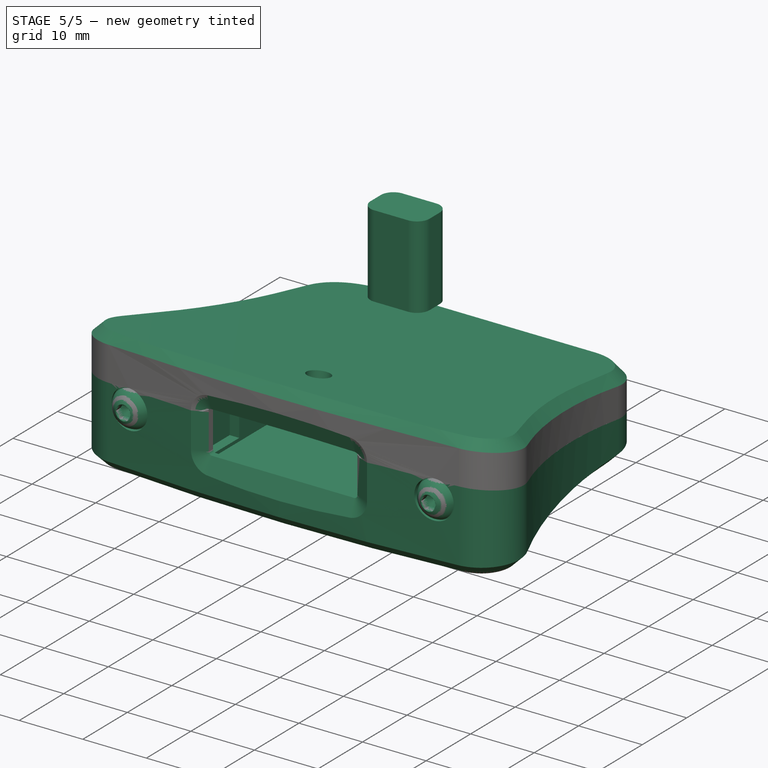
[diagram: stage 5 of 5 — iso view after this stage's code; geometry added in this stage tinted green]
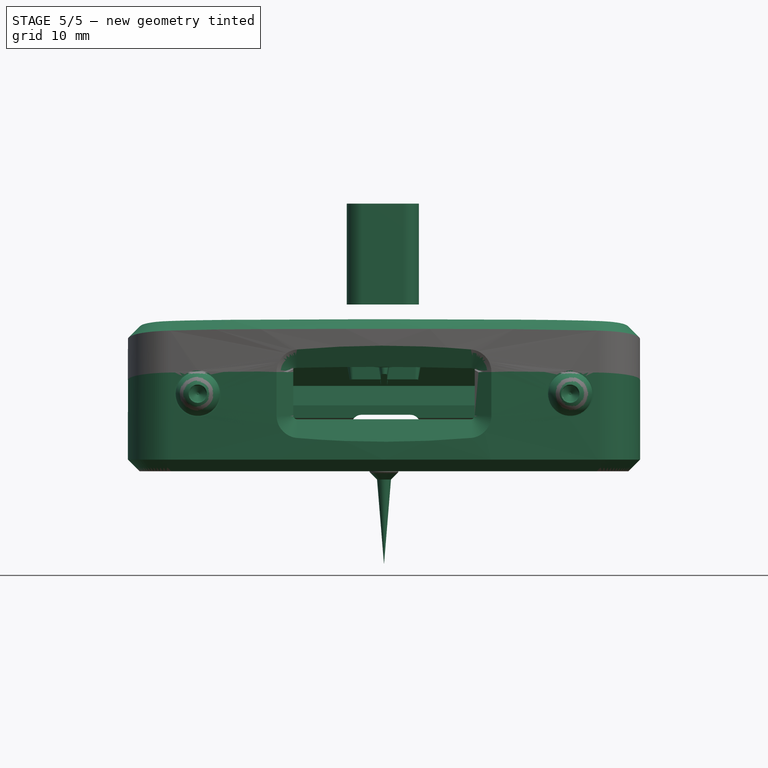
[diagram: stage 5 of 5 — front view after this stage's code; geometry added in this stage tinted green]
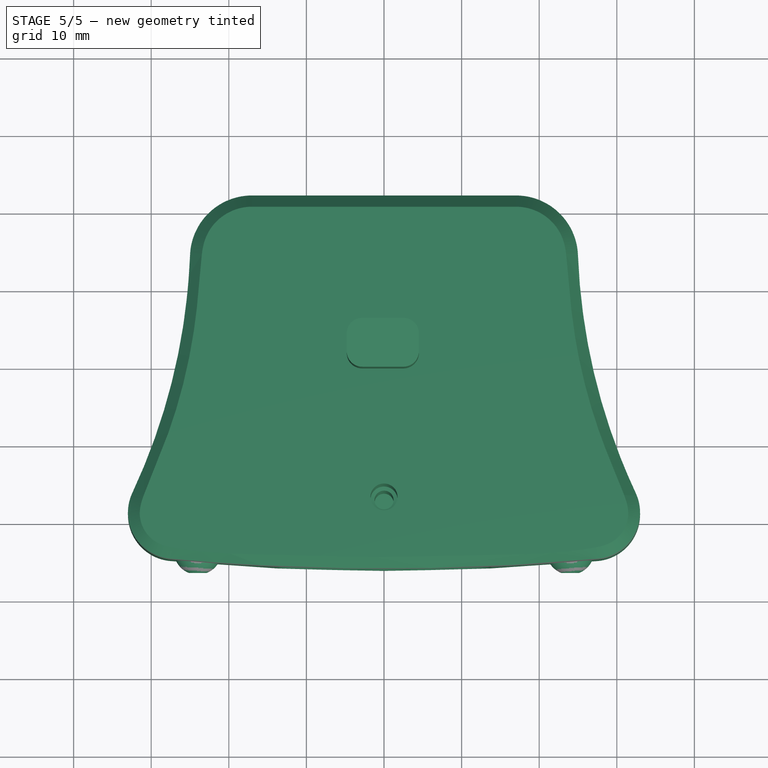
[diagram: stage 5 of 5 — top view after this stage's code; geometry added in this stage tinted green]
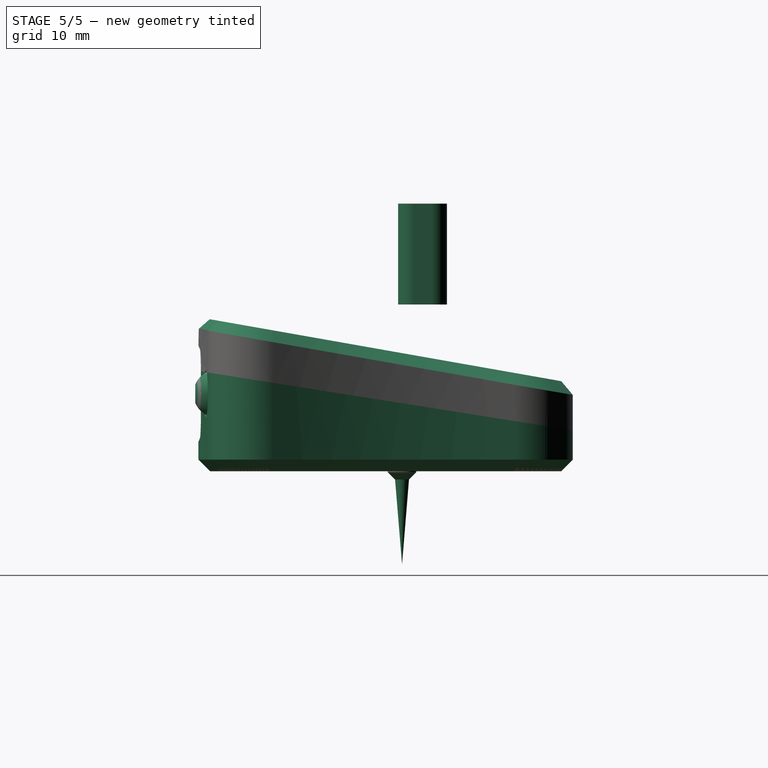
[diagram: stage 5 of 5 — right view after this stage's code; geometry added in this stage tinted green]
FEATURE [Part::Feature] Part__Feature  label="MH-ET_LIVE_MiniKit"
  Placement = pos=(0,-1e-15,3) rot=(0,0.707107,0.707107;3.14159rad)
  shape: bbox 31.02 x 39.44 x 99.68 mm, 5494 faces, 23 solids (baked)
FEATURE [Sketcher::SketchObject] Sketch
  AttachmentOffset = pos=(0,0,21.5) rot=(0,0,1;0rad)
  FullyConstrained = false
  MapMode = 5
  Placement = pos=(0,0,21.5) rot=(0,0,1;0rad)
  Support = -> [XY_Plane]
  sketch-geometry (8):
    g0: LineSegment StartX=-2.8 StartY=5.8 StartZ=0 EndX=2.5 EndY=5.8 EndZ=0
    g1: LineSegment StartX=4.5 StartY=3.8 StartZ=0 EndX=4.5 EndY=1.5 EndZ=0
    g2: LineSegment StartX=2.5 StartY=-0.5 StartZ=0 EndX=-2.8 EndY=-0.5 EndZ=0
    g3: LineSegment StartX=-4.8 StartY=1.5 StartZ=0 EndX=-4.8 EndY=3.8 EndZ=0
    g4: ArcOfCircle CenterX=2.5 CenterY=1.5 CenterZ=0 NormalX=0 NormalY=0 NormalZ=1 AngleXU=0 Radius=2 StartAngle=4.71239 EndAngle=6.28319
    g5: ArcOfCircle CenterX=2.5 CenterY=3.8 CenterZ=0 NormalX=0 NormalY=0 NormalZ=1 AngleXU=0 Radius=2 StartAngle=0 EndAngle=1.5708
    g6: ArcOfCircle CenterX=-2.8 CenterY=3.8 CenterZ=0 NormalX=0 NormalY=0 NormalZ=1 AngleXU=0 Radius=2 StartAngle=1.5708 EndAngle=3.14159
    g7: ArcOfCircle CenterX=-2.8 CenterY=1.5 CenterZ=0 NormalX=0 NormalY=0 NormalZ=1 AngleXU=0 Radius=2 StartAngle=3.14159 EndAngle=4.71239
  constraints (20):
    c: Horizontal(g2)
    c: Vertical(g1)
    c: Vertical(g3)
    c: Tangent(g2,g4) = 1.5708
    c: Tangent(g1,g4) = 1.5708
    c: Tangent(g1,g5) = 1.5708
    c: Tangent(g0,g5) = 1.5708
    c: Tangent(g0,g6) = 1.5708
    c: Tangent(g3,g6) = 1.5708
    c: Tangent(g3,g7) = 1.5708
    c: Tangent(g2,g7) = 1.5708
    c: Equal(g7,g4)
    c: Equal(g4,g5)
    c: Equal(g5,g6)
    c: DistanceX(g3,g1) = 9.3
    c: DistanceY(g2,g0) = 6.3
    c: DistanceY(g-1,g2) = -0.5
    c: DistanceX(g1) = 4.5
    c: Radius(g5) = 2
    c: Horizontal(g0)
FEATURE [PartDesign::Pad] Pad
  AllowMultiFace = false
  Direction = (1,1,1)
  Length = 13
  Length2 = 100
  Profile = -> Sketch
  Type = 0
FEATURE [Part::FeaturePython] Screw  label="M3x8-Screw002"  # Fasteners workbench fastener (typed FeaturePython)
  Placement = pos=(-24,-25,10) rot=(1,0,0;1.5708rad)
  diameter = 1
  invert = false
  leftHanded = false
  length = 1
  lengthCustom = 8
  matchOuter = false
  offset = 0
  thread = false
  type = 51
FEATURE [Part::FeaturePython] Screw001  label="M3x8-Screw001"  # Fasteners workbench fastener (typed FeaturePython)
  Placement = pos=(24,-25,10) rot=(1,0,0;1.5708rad)
  diameter = 1
  invert = false
  leftHanded = false
  length = 1
  lengthCustom = 8
  matchOuter = false
  offset = 0
  thread = false
  type = 51
FEATURE [Part::FeaturePython] Nut002  label="M3-Nut002"  # Fasteners workbench fastener (typed FeaturePython)
  Placement = pos=(0.00598165,-17.3415,16.2294) rot=(0.865273,0.499566,-0.041666;2.99152rad)
  diameter = 4
  invert = false
  leftHanded = false
  matchOuter = false
  offset = 0
  thread = false
  type = 22
FEATURE [Sketcher::SketchObject] Sketch022
  FullyConstrained = false
  MapMode = 5
  Placement = pos=(0,0,0) rot=(1,0,0;1.5708rad)
  Support = -> [XZ_Plane008]
  sketch-geometry (5):
    g0: LineSegment StartX=0 StartY=0 StartZ=0 EndX=0 EndY=-12 EndZ=0
    g1: LineSegment StartX=0 StartY=-12 StartZ=0 EndX=0.9 EndY=-1.05 EndZ=0
    g2: LineSegment StartX=0.9 StartY=-1.05 StartZ=0 EndX=1.85 EndY=-0.1 EndZ=0
    g3: LineSegment StartX=1.85 StartY=0 StartZ=0 EndX=0 EndY=0 EndZ=0
    g4: LineSegment StartX=1.85 StartY=-0.1 StartZ=0 EndX=1.85 EndY=0 EndZ=0
  constraints (14):
    c: Coincident(g-1,g0)
    c: Vertical(g0)
    c: Coincident(g0,g1)
    c: Coincident(g1,g2)
    c: Coincident(g3,g0)
    c: DistanceY(g0,g0) = 12
    c: Angle(g3,g2) = 0.785398
    c: DistanceX(g0,g1) = 0.9
    c: Horizontal(g3)
    c: Coincident(g4,g2)
    c: Vertical(g4)
    c: Coincident(g3,g4)
    c: DistanceX(g3) = 1.85
    c: DistanceY(g4,g4) = 0.1
FEATURE [PartDesign::Revolution] Revolution001
  AllowMultiFace = false
  Angle = 360
  Axis = (-3e-16,3e-16,1)
  Base = (0,0,0)
  Placement = pos=(0,0,0) rot=(1,0,0;1.5708rad)
  Profile = -> Sketch022
  ReferenceAxis = -> Z_Axis008
  Reversed = true
FEATURE [Sketcher::SketchObject] Sketch023
  FullyConstrained = false
  MapMode = 5
  Placement = pos=(0,0,0) rot=(1,0,0;1.5708rad)
  Support = -> [XZ_Plane008]
  sketch-geometry (3):
    g0: LineSegment StartX=-1.15 StartY=0 StartZ=0 EndX=0 EndY=-1.15 EndZ=0
    g1: LineSegment StartX=0 StartY=-1.15 StartZ=0 EndX=1.15 EndY=0 EndZ=0
    g2: LineSegment StartX=1.15 StartY=0 StartZ=0 EndX=-1.15 EndY=0 EndZ=0
  constraints (9):
    c: PointOnObject(g0,g-1)
    c: Coincident(g0,g1)
    c: PointOnObject(g1,g-1)
    c: Coincident(g1,g2)
    c: Coincident(g2,g0)
    c: PointOnObject(g0,g-2)
    c: Equal(g1,g0)
    c: Perpendicular(g0,g1)
    c: DistanceX(g2,g2) = 2.3
FEATURE [PartDesign::Pocket] Pocket004
  AllowMultiFace = false
  BaseFeature = -> Revolution001
  Direction = (1,1,1)
  Length = 0.4
  Length2 = 100
  Midplane = true
  Placement = pos=(0,0,0) rot=(1,0,0;1.5708rad)
  Profile = -> Sketch023
  Type = 0
FEATURE [PartDesign::PolarPattern] PolarPattern001
  Angle = 90
  Axis = -> Z_Axis008
  BaseFeature = -> Pocket004
  Occurrences = 2
  Originals = -> [Pocket004]
  Placement = pos=(0,0,0) rot=(1,0,0;1.5708rad)
FEATURE [PartDesign::SubShapeBinder] Binder018  label="st ref groove crs"
  BindCopyOnChange = 0
  BindMode = 0
  ClaimChildren = false
  Context = -> Body012 [Binder018.]
  Fuse = false
  MakeFace = true
  OffsetFill = false
  OffsetIntersection = false
  OffsetJoinType = 0
  OffsetOpenResult = false
  PartialLoad = false
  Relative = true
  Support = -> [Body004[Sketch040.]]
  _Version = 2
FEATURE [PartDesign::SubShapeBinder] Binder019  label="st ref groove trj"
  BindCopyOnChange = 0
  BindMode = 0
  ClaimChildren = false
  Context = -> Body012 [Binder019.]
  Fuse = false
  MakeFace = true
  OffsetFill = false
  OffsetIntersection = false
  OffsetJoinType = 0
  OffsetOpenResult = false
  PartialLoad = false
  Relative = true
  Support = -> [Body004[Sketch041.]]
  _Version = 2
FEATURE [Sketcher::SketchObject] Sketch044  label="st groove crs"
  ExternalGeometry = -> [Binder018]
  FullyConstrained = true
  MapMode = 5
  Placement = pos=(0,0,0) rot=(0.57735,0.57735,0.57735;2.0944rad)
  Support = -> [YZ_Plane013]
  sketch-geometry (4):
    g0: LineSegment StartX=17.9324 StartY=5.93006 StartZ=0 EndX=18.9176 EndY=6.78646 EndZ=0
    g1: LineSegment StartX=20.3004 StartY=6.56743 StartZ=0 EndX=20.9727 EndY=5.44846 EndZ=0
    g2: LineSegment StartX=20.9727 StartY=5.44846 StartZ=0 EndX=17.9324 EndY=5.93006 EndZ=0
    g3: ArcOfCircle CenterX=19.5171 CenterY=6.09681 CenterZ=0 NormalX=0 NormalY=0 NormalZ=1 AngleXU=0 Radius=0.913785 StartAngle=0.541034 EndAngle=2.28636
  constraints (8):
    c: Coincident(g-3,g0)
    c: Coincident(g1,g-5)
    c: Coincident(g1,g2)
    c: Coincident(g2,g0)
    c: Tangent(g0,g3) = 1.5708
    c: Tangent(g1,g3) = 1.5708
    c: Coincident(g3,g-4)
    c: Equal(g3,g-4)
FEATURE [PartDesign::Plane] DatumPlane002  label="st groove plane"
  Length = 78.4086
  MapMode = 13
  Placement = pos=(-5.83346,16.4626,6.416) rot=(1,0,0;2.98449rad)
  ResizeMode = 0
  Support = -> [Binder019]
  Width = 70.8534
FEATURE [Sketcher::SketchObject] Sketch045  label="st groove trj"
  ExternalGeometry = -> [Binder019]
  FullyConstrained = true
  MapMode = 5
  Placement = pos=(-5.83346,16.4626,6.416) rot=(1,0,0;2.98449rad)
  Support = -> [DatumPlane002]
  sketch-geometry (8):
    g0: ArcOfCircle CenterX=-21.3809 CenterY=36.5272 CenterZ=0 NormalX=0 NormalY=0 NormalZ=1 AngleXU=0 Radius=3.5 StartAngle=1.65935 EndAngle=3.5942
    g1: ArcOfCircle CenterX=-98.7216 CenterY=-1.08147 CenterZ=0 NormalX=0 NormalY=0 NormalZ=1 AngleXU=0 Radius=82.5 StartAngle=0.0299572 EndAngle=0.452606
    g2: ArcOfCircle CenterX=110.381 CenterY=4.37106 CenterZ=0 NormalX=0 NormalY=0 NormalZ=1 AngleXU=0 Radius=82.5 StartAngle=2.75837 EndAngle=3.17425
    g3: ArcOfCircle CenterX=30.6191 CenterY=36.5272 CenterZ=0 NormalX=0 NormalY=0 NormalZ=1 AngleXU=0 Radius=3.5 StartAngle=5.89996 EndAngle=7.76543
    g4: ArcOfCircle CenterX=4.61913 CenterY=-256.321 CenterZ=0 NormalX=0 NormalY=0 NormalZ=1 AngleXU=0 Radius=297.5 StartAngle=1.48225 EndAngle=1.65935
    g5: ArcOfCircle CenterX=23.3335 CenterY=1.52724 CenterZ=0 NormalX=0 NormalY=0 NormalZ=1 AngleXU=0 Radius=4.59412 StartAngle=4.71239 EndAngle=6.31584
    g6: ArcOfCircle CenterX=-11.6665 CenterY=1.52724 CenterZ=0 NormalX=0 NormalY=0 NormalZ=1 AngleXU=0 Radius=4.59412 StartAngle=3.17155 EndAngle=4.71239
    g7: LineSegment StartX=23.3335 StartY=-3.06688 StartZ=0 EndX=-11.6665 EndY=-3.06688 EndZ=0
  constraints (16):
    c: Coincident(g0,g-4)
    c: Coincident(g1,g-5)
    c: Coincident(g2,g-6)
    c: Coincident(g3,g-7)
    c: Coincident(g4,g-3)
    c: Coincident(g5,g-8)
    c: Coincident(g6,g-9)
    c: Tangent(g1,g6) = 1.5708
    c: Tangent(g0,g1) = 1.5708
    c: Tangent(g0,g4) = -1.5708
    c: Tangent(g3,g4) = -1.5708
    c: Tangent(g2,g3) = 1.5708
    c: Tangent(g2,g5) = 1.5708
    c: Tangent(g6,g7) = 1.5708
    c: Tangent(g5,g7) = 1.5708
    c: PointOnObject(g-7,g4)
FEATURE [PartDesign::SubtractivePipe] SubtractivePipe001  label="ST Groove"
  AuxilleryCurvelinear = true
  AuxillerySpineTangent = false
  BaseFeature = -> Pocket009
  Binormal = (0,0,0)
  Mode = 0
  Profile = -> Sketch044
  Spine = -> Sketch045
  SpineTangent = false
  Transformation = 0
  Transition = 0
FEATURE [PartDesign::SubShapeBinder] Binder030  label="st ref screw hole 1"
  BindCopyOnChange = 0
  BindMode = 0
  ClaimChildren = false
  Context = -> Body012 [Binder030.]
  Fuse = false
  MakeFace = true
  OffsetFill = false
  OffsetIntersection = false
  OffsetJoinType = 0
  OffsetOpenResult = false
  PartialLoad = false
  Relative = true
  Support = -> [Body006[Sketch063.]]
  _Version = 2
FEATURE [PartDesign::SubShapeBinder] Binder031  label="st ref screw hole 3"
  BindCopyOnChange = 0
  BindMode = 0
  ClaimChildren = false
  Context = -> Body012 [Binder031.]
  Fuse = false
  MakeFace = true
  OffsetFill = false
  OffsetIntersection = false
  OffsetJoinType = 0
  OffsetOpenResult = false
  PartialLoad = false
  Relative = true
  Support = -> [Body008[Sketch064.]]
  _Version = 2
FEATURE [Sketcher::SketchObject] Sketch067  label="st screw pillar 1"
  ExternalGeometry = -> [Binder030]
  FullyConstrained = true
  MapMode = 5
  Placement = pos=(3e-16,-12.779,2.25328) rot=(0,0.766044,0.642788;3.14159rad)
  Support = -> [Binder030]
  sketch-geometry (5):
    g0: LineSegment StartX=-24 StartY=11.2274 StartZ=0 EndX=-21.5 EndY=11.2274 EndZ=0
    g1: LineSegment StartX=-21.5 StartY=11.2274 StartZ=0 EndX=-21.5 EndY=1.22738 EndZ=0
    g2: LineSegment StartX=-21.5 StartY=1.22738 StartZ=0 EndX=-24 EndY=1.22738 EndZ=0
    g3: LineSegment StartX=-24 StartY=1.22738 StartZ=0 EndX=-24 EndY=11.2274 EndZ=0
    g4: LineSegment StartX=-24 StartY=11.2274 StartZ=0 EndX=-24 EndY=13.7274 EndZ=0
  constraints (14):
    c: Coincident(g0,g1)
    c: Coincident(g1,g2)
    c: Coincident(g2,g3)
    c: Coincident(g3,g0)
    c: Horizontal(g0)
    c: Horizontal(g2)
    c: Vertical(g1)
    c: Vertical(g3)
    c: Coincident(g0,g-4)
    c: PointOnObject(g-3,g2)
    c: DistanceX(g0,g0) = 2.5
    c: Coincident(g4,g0)
    c: Vertical(g4)
    c: Equal(g4,g0)
FEATURE [PartDesign::Revolution] Revolution004  label="ST Screw pillar 1"
  Angle = 360
  Axis = (0,0.43412,2.46202)
  Base = (24,-10.8294,13.3101)
  BaseFeature = -> SubtractivePipe001
  Profile = -> Sketch067
  ReferenceAxis = -> Sketch067 [Axis0]
  Reversed = true
FEATURE [Sketcher::SketchObject] Sketch068  label="st screw pillar 3"
  ExternalGeometry = -> [Binder031]
  FullyConstrained = true
  MapMode = 5
  Placement = pos=(-2e-16,7.10284,-1.25242) rot=(0,0.766044,0.642788;3.14159rad)
  Support = -> [Binder031]
  sketch-geometry (5):
    g0: LineSegment StartX=-20.5 StartY=14.7872 StartZ=0 EndX=-17.8 EndY=14.7872 EndZ=0
    g1: LineSegment StartX=-17.8 StartY=14.7872 StartZ=0 EndX=-17.8 EndY=4.78717 EndZ=0
    g2: LineSegment StartX=-17.8 StartY=4.78717 StartZ=0 EndX=-20.5 EndY=4.78717 EndZ=0
    g3: LineSegment StartX=-20.5 StartY=4.78717 StartZ=0 EndX=-20.5 EndY=14.7872 EndZ=0
    g4: LineSegment StartX=-20.5 StartY=14.7872 StartZ=0 EndX=-20.5 EndY=17.4872 EndZ=0
  constraints (14):
    c: Coincident(g0,g1)
    c: Coincident(g1,g2)
    c: Coincident(g2,g3)
    c: Coincident(g3,g0)
    c: Horizontal(g0)
    c: Horizontal(g2)
    c: Vertical(g1)
    c: Vertical(g3)
    c: Coincident(g0,g-3)
    c: PointOnObject(g-4,g2)
    c: DistanceX(g0,g0) = 2.7
    c: Coincident(g4,g0)
    c: Vertical(g4)
    c: Equal(g0,g4)
FEATURE [PartDesign::Revolution] Revolution005  label="ST Screw pillar 3"
  Angle = 360
  Axis = (0,0.46885,2.65898)
  Base = (20.5,9.6706,13.3101)
  BaseFeature = -> Revolution004
  Profile = -> Sketch068
  ReferenceAxis = -> Sketch068 [Axis0]
  Reversed = true
FEATURE [Sketcher::SketchObject] Sketch069  label="st screw hole 1"
  ExternalGeometry = -> [Binder030]
  FullyConstrained = true
  MapMode = 5
  Placement = pos=(3e-16,-12.779,2.25328) rot=(0,0.766044,0.642788;3.14159rad)
  Support = -> [Binder030]
  sketch-geometry (5):
    g0: LineSegment StartX=-24 StartY=11.2274 StartZ=0 EndX=-23.5394 EndY=11.2274 EndZ=0
    g1: LineSegment StartX=-23.5394 StartY=11.2274 StartZ=0 EndX=-22.7175 EndY=1.22738 EndZ=0
    g2: LineSegment StartX=-22.7175 StartY=1.22738 StartZ=0 EndX=-24 EndY=1.22738 EndZ=0
    g3: LineSegment StartX=-24 StartY=1.22738 StartZ=0 EndX=-24 EndY=11.2274 EndZ=0
    g4: LineSegment StartX=-24 StartY=11.2274 StartZ=0 EndX=-24 EndY=12.5099 EndZ=0
  constraints (12):
    c: Coincident(g-4,g0)
    c: Coincident(g0,g-3)
    c: Coincident(g0,g1)
    c: Coincident(g1,g-3)
    c: Coincident(g1,g2)
    c: PointOnObject(g2,g-4)
    c: Coincident(g2,g3)
    c: Coincident(g3,g0)
    c: Horizontal(g2)
    c: Coincident(g4,g0)
    c: Vertical(g4)
    c: Equal(g4,g2)
FEATURE [PartDesign::Groove] Groove003  label="ST Screw hole 1"
  Angle = 360
  Axis = (0,0.222705,1.26302)
  Base = (24,-10.8294,13.3101)
  BaseFeature = -> Revolution005
  Profile = -> Sketch069
  ReferenceAxis = -> Sketch069 [Axis0]
FEATURE [Sketcher::SketchObject] Sketch070  label="st screw hole 3"
  ExternalGeometry = -> [Binder031]
  FullyConstrained = true
  MapMode = 5
  Placement = pos=(-2e-16,7.10284,-1.25242) rot=(0,0.766044,0.642788;3.14159rad)
  Support = -> [Binder031]
  sketch-geometry (5):
    g0: LineSegment StartX=-19.2175 StartY=4.78717 StartZ=0 EndX=-20.5 EndY=4.78717 EndZ=0
    g1: LineSegment StartX=-20.5 StartY=4.78717 StartZ=0 EndX=-20.5 EndY=14.7872 EndZ=0
    g2: LineSegment StartX=-20.5 StartY=14.7872 StartZ=0 EndX=-20.0394 EndY=14.7872 EndZ=0
    g3: LineSegment StartX=-20.0394 StartY=14.7872 StartZ=0 EndX=-19.2175 EndY=4.78717 EndZ=0
    g4: LineSegment StartX=-20.5 StartY=14.7872 StartZ=0 EndX=-20.5 EndY=16.0697 EndZ=0
  constraints (12):
    c: Coincident(g-3,g0)
    c: PointOnObject(g0,g-4)
    c: Horizontal(g0)
    c: Coincident(g0,g1)
    c: Coincident(g1,g-4)
    c: Coincident(g1,g2)
    c: Coincident(g2,g-3)
    c: Coincident(g2,g3)
    c: Coincident(g3,g0)
    c: Coincident(g4,g1)
    c: Vertical(g4)
    c: Equal(g4,g0)
FEATURE [PartDesign::Groove] Groove004  label="ST Screw hole 3"
  Angle = 360
  Axis = (0,0.222705,1.26302)
  Base = (20.5,9.6706,13.3101)
  BaseFeature = -> Groove003
  Profile = -> Sketch070
  ReferenceAxis = -> Sketch070 [Axis0]
FEATURE [PartDesign::Mirrored] Mirrored005
  BaseFeature = -> Groove004
  MirrorPlane = -> YZ_Plane013
  Originals = -> [Revolution004,Revolution005,Groove003,Groove004]
FEATURE [PartDesign::Body] Body005  label="Housing"
  Group = -> [Binder006,Sketch016,Pad009,Binder007,Binder021,Sketch017,Sketch048,Pocket011,Chamfer,Pocket,Binder037,Binder034,Binder035,DatumPlane007,Binder008,Sketch018,Binder036,Pocket016,Sketch050,Pocket012,DatumPlane003,Sketch052,Sketch053,AdditiveLoft,Pocket001,Binder009,Sketch019,Sketch047,Groove,Mirrored,Pocket002,Sketch036,Sketch037,SubtractivePipe,Binder015,Sketch038,Sketch078,Sketch039,Binder020,+13 more]
  Origin = -> Origin006
  Tip = -> Pocket019
FEATURE [Part::MultiCommon] Common001  label="Top housing"
  Shapes = -> [Body005,Body012]
FEATURE [Sketcher::SketchObject] Sketch080
  FullyConstrained = true
  MapMode = 5
  Placement = pos=(0,0,0) rot=(0.57735,0.57735,0.57735;2.0944rad)
  Support = -> [YZ_Plane012]
FEATURE [PartDesign::Body] Body011  label="Separation bottom"
  Group = -> [Binder010,Binder011,Sketch030,Pad011,Binder012,Sketch033,Pocket008,Binder016,Binder017,Sketch042,DatumPlane001,Sketch043,AdditivePipe,Binder028,Binder029,Sketch065,Groove001,Sketch066,Groove002,Mirrored004,Binder040,Sketch079,Pocket021,Sketch080]
  Origin = -> Origin012
  Tip = -> Pocket021
FEATURE [Part::MultiCommon] Common  label="Bottom housing"
  Shapes = -> [Body005,Body011]
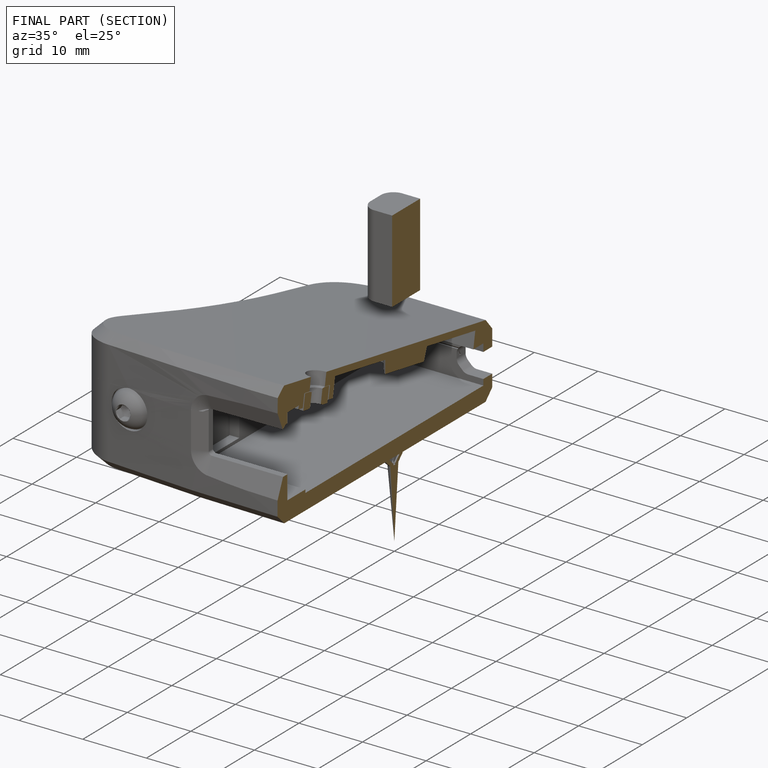
[diagram: finished part — half-section view (interior)]
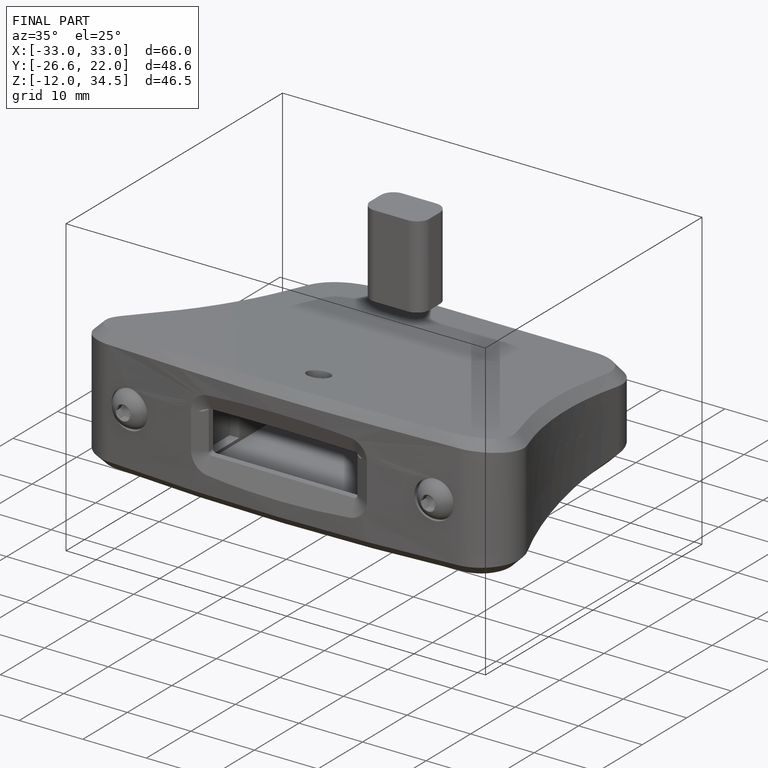
[diagram: finished part — iso view with bounding-box wireframe]
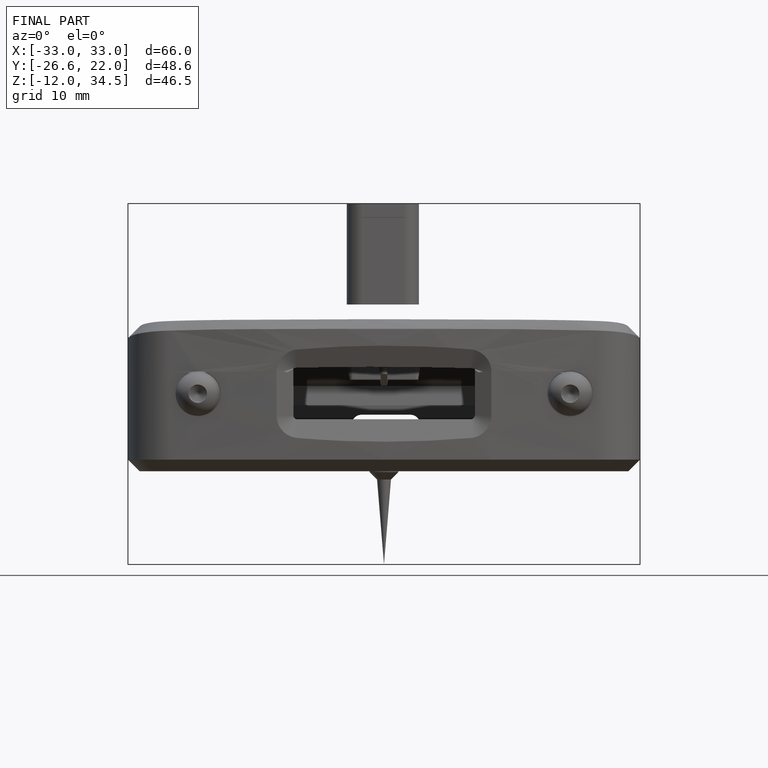
[diagram: finished part — front view with bounding-box wireframe]
